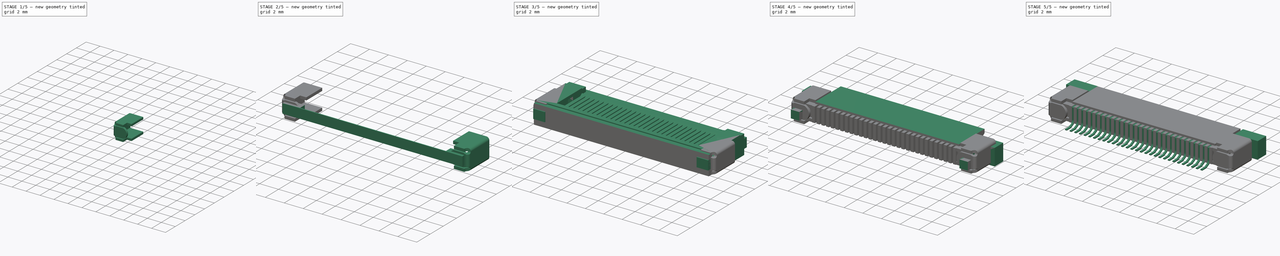
[diagram: build sequence overview — one tinted view per stage of 5, left to right]
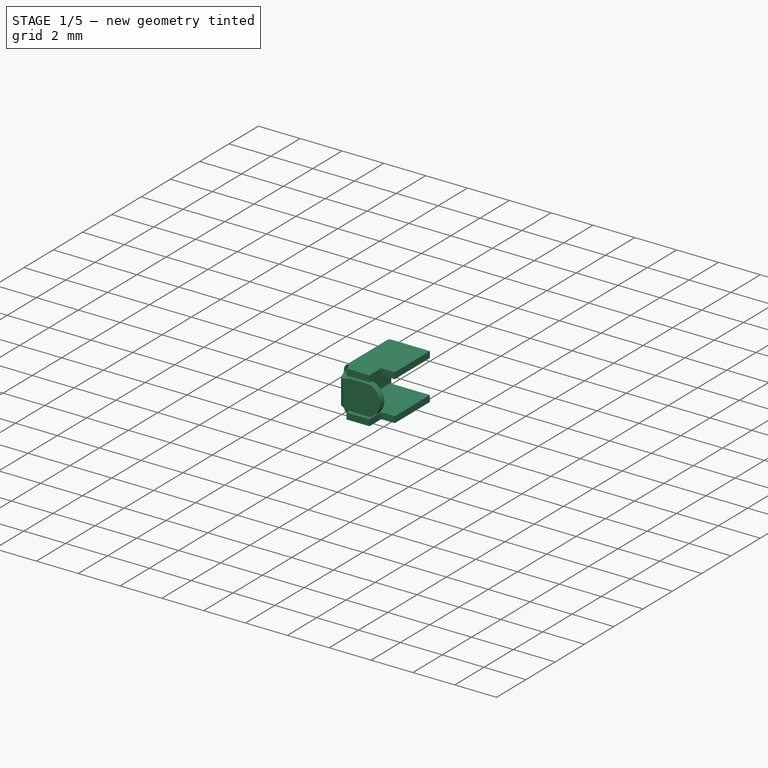
[diagram: stage 1 of 5 — iso view after this stage's code; geometry added in this stage tinted green]
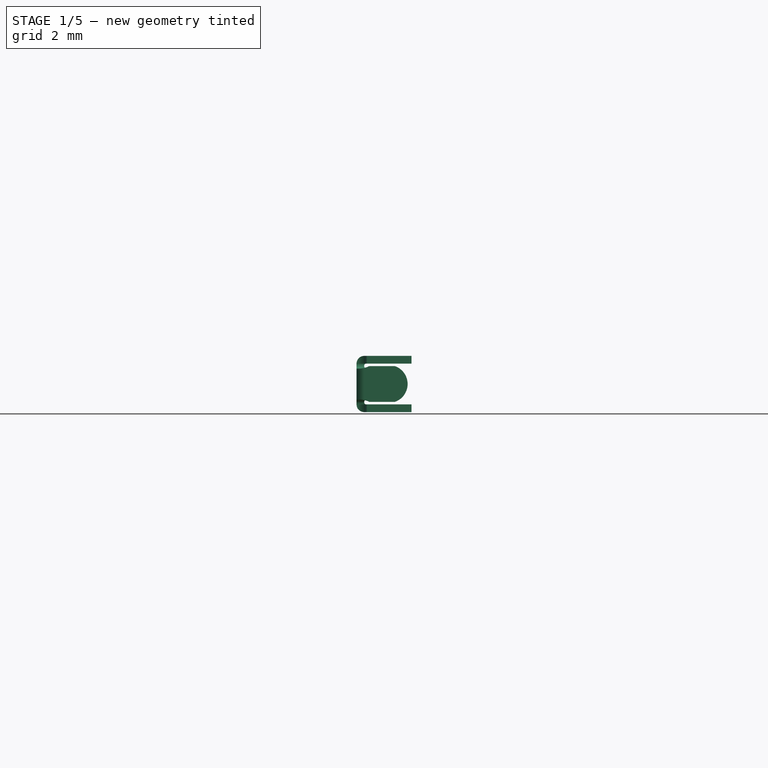
[diagram: stage 1 of 5 — front view after this stage's code; geometry added in this stage tinted green]
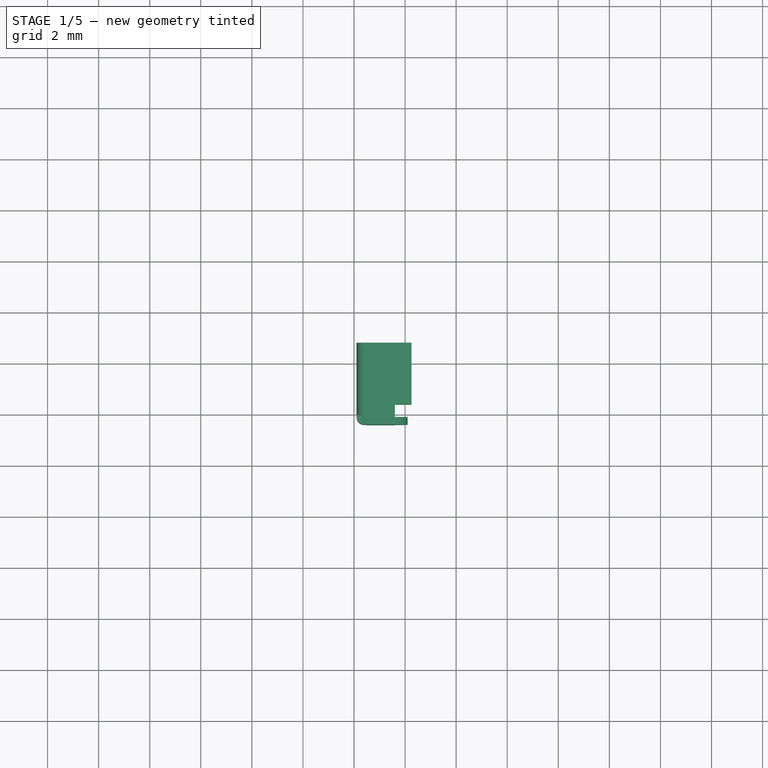
[diagram: stage 1 of 5 — top view after this stage's code; geometry added in this stage tinted green]
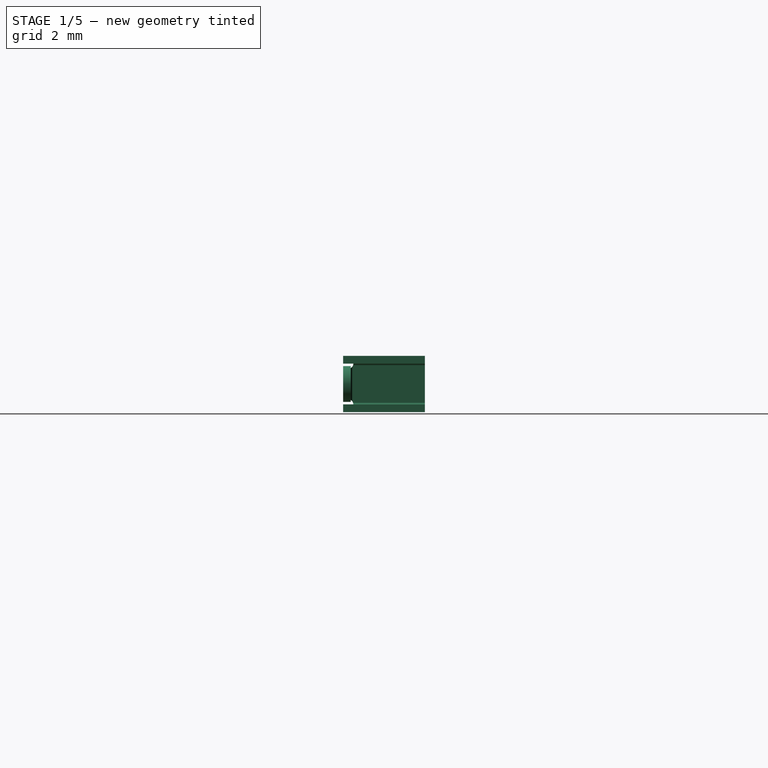
[diagram: stage 1 of 5 — right view after this stage's code; geometry added in this stage tinted green]
FCSTD DOCUMENT  (FreeCAD 0.17R13528 (Git))
Label: CONN_OLED_128x64
License: All rights reserved
LicenseURL: http://en.wikipedia.org/wiki/All_rights_reserved
objects: Sketcher::SketchObject×22, PartDesign::Pad×22, PartDesign::Body×22, Part::Fillet×6, Part::MultiFuse×4, Part::Cut×3, Part::Chamfer×2, Part::Feature×1
note: 104 computed .brp shape members not serialized (recipe doc carries the construction recipe); baked Part::Feature solids carry a one-line shape summary decoded from their .brp

FEATURE [Sketcher::SketchObject] Sketch018
  Placement = pos=(9.9,0,0) rot=(0.57735,0.57735,0.57735;2.0944rad)
  sketch-geometry (14):
    g0: LineSegment StartX=0.8 StartY=2.2 StartZ=0 EndX=0.8 EndY=0 EndZ=0
    g1: LineSegment StartX=0.8 StartY=0 StartZ=0 EndX=-2 EndY=0 EndZ=0
    g2: LineSegment StartX=-2 StartY=0 StartZ=0 EndX=-2 EndY=0.3 EndZ=0
    g3: LineSegment [constr] StartX=-2 StartY=0.3 StartZ=0 EndX=-2.2 EndY=0.3 EndZ=0
    g4: LineSegment [constr] StartX=-2.2 StartY=0.3 StartZ=0 EndX=-2.2 EndY=0.5 EndZ=0
    g5: LineSegment [constr] StartX=-2.2 StartY=1.7 StartZ=0 EndX=-2.2 EndY=1.9 EndZ=0
    g6: LineSegment [constr] StartX=-2.2 StartY=1.9 StartZ=0 EndX=-2 EndY=1.9 EndZ=0
    g7: LineSegment StartX=-2 StartY=1.9 StartZ=0 EndX=-2 EndY=2.2 EndZ=0
    g8: LineSegment StartX=-2 StartY=2.2 StartZ=0 EndX=0.8 EndY=2.2 EndZ=0
    g9: ArcOfCircle CenterX=-2.2 CenterY=1.9 CenterZ=0 NormalX=0 NormalY=0 NormalZ=1 AngleXU=0 Radius=0.2 StartAngle=4.71239 EndAngle=6.28319
    g10: ArcOfCircle CenterX=-2.2 CenterY=0.3 CenterZ=0 NormalX=0 NormalY=0 NormalZ=1 AngleXU=0 Radius=0.2 StartAngle=0 EndAngle=1.5708
    g11: LineSegment StartX=-2.2 StartY=1.7 StartZ=0 EndX=-2.4 EndY=1.7 EndZ=0
    g12: LineSegment StartX=-2.2 StartY=0.5 StartZ=0 EndX=-2.4 EndY=0.5 EndZ=0
    g13: LineSegment StartX=-2.4 StartY=1.7 StartZ=0 EndX=-2.4 EndY=0.5 EndZ=0
  constraints (40):
    c: Vertical(g0)
    c: Coincident(g0,g1)
    c: Horizontal(g1)
    c: Coincident(g1,g2)
    c: Vertical(g2)
    c: Coincident(g2,g3)
    c: Coincident(g3,g4)
    c: Coincident(g5,g6)
    c: Coincident(g6,g7)
    c: Vertical(g7)
    c: Coincident(g7,g8)
    c: Coincident(g8,g0)
    c: Horizontal(g8)
    c: Coincident(g9,g5)
    c: Coincident(g9,g6)
    c: Coincident(g10,g3)
    c: Coincident(g10,g4)
    c: Coincident(g10,g2)
    c: Coincident(g11,g5)
    c: Horizontal(g11)
    c: Coincident(g12,g4)
    c: Horizontal(g12)
    c: Coincident(g13,g11)
    c: Coincident(g13,g12)
    c: Vertical(g13)
    c: Horizontal(g3)
    c: Horizontal(g6)
    c: Vertical(g4)
    c: Vertical(g5)
    c: Equal(g4,g5)
    c: Coincident(g5,g9)
    c: Equal(g2,g7)
    c: Equal(g8,g1)
    c: DistanceY(g0,g0) = 2.2
    c: PointOnObject(g0,g-1)
    c: DistanceX(g11,g0) = 3.2
    c: DistanceX(g1,g1) = 2.8
    c: DistanceY(g11,g7) = 0.5
    c: DistanceX(g0) = 0.8
    c: DistanceX(g6,g6) = 0.2
FEATURE [PartDesign::Pad] Pad018
  Length = 0.3
  Length2 = 100
  Placement = pos=(9.9,0,0) rot=(0.57735,0.57735,0.57735;2.0944rad)
  Profile = -> Sketch018
  Reversed = true
  Type = 0
FEATURE [PartDesign::Body] Body018
  Group = -> [Sketch018,Pad018]
  Origin = -> Origin019
  Tip = -> Pad018
FEATURE [Sketcher::SketchObject] Sketch019
  Placement = pos=(0,-2.4,0) rot=(1,0,0;1.5708rad)
  sketch-geometry (12):
    g0: LineSegment [constr] StartX=9.9 StartY=1.7 StartZ=0 EndX=9.4 EndY=1.8 EndZ=0
    g1: LineSegment StartX=9.4 StartY=1.8 StartZ=0 EndX=8.4 EndY=1.8 EndZ=0
    g2: LineSegment [constr] StartX=8.4 StartY=1.8 StartZ=0 EndX=8.4 EndY=0.4 EndZ=0
    g3: LineSegment StartX=8.4 StartY=0.4 StartZ=0 EndX=9.4 EndY=0.4 EndZ=0
    g4: LineSegment [constr] StartX=9.4 StartY=0.4 StartZ=0 EndX=9.9 EndY=0.5 EndZ=0
    g5: LineSegment StartX=9.9 StartY=0.5 StartZ=0 EndX=9.9 EndY=1.7 EndZ=0
    g6: ArcOfCircle CenterX=8.64 CenterY=1.1 CenterZ=0 NormalX=0 NormalY=0 NormalZ=1 AngleXU=0 Radius=0.74 StartAngle=1.90109 EndAngle=4.38209
    g7: LineSegment [constr] StartX=8.4 StartY=1.8 StartZ=0 EndX=7.9 EndY=1.1 EndZ=0
    g8: LineSegment [constr] StartX=7.9 StartY=1.1 StartZ=0 EndX=8.4 EndY=0.4 EndZ=0
    g9: ArcOfCircle CenterX=9.85985 CenterY=2.79927 CenterZ=0 NormalX=0 NormalY=0 NormalZ=1 AngleXU=0 Radius=1.1 StartAngle=4.28109 EndAngle=4.74889
    g10: ArcOfCircle CenterX=9.85985 CenterY=-0.599267 CenterZ=0 NormalX=0 NormalY=0 NormalZ=1 AngleXU=0 Radius=1.1 StartAngle=1.53429 EndAngle=2.00209
    g11: LineSegment [constr] StartX=9.85985 StartY=2.79927 StartZ=0 EndX=9.85985 EndY=-0.599267 EndZ=0
  constraints (34):
    c: Coincident(g0,g1)
    c: Horizontal(g1)
    c: Coincident(g1,g2)
    c: Vertical(g2)
    c: Coincident(g2,g3)
    c: Horizontal(g3)
    c: Coincident(g3,g4)
    c: Coincident(g4,g5)
    c: Coincident(g5,g0)
    c: Vertical(g5)
    c: DistanceX(g4) = 9.9
    c: DistanceY(g5,g5) = 1.2
    c: Coincident(g6,g1)
    c: Coincident(g6,g2)
    c: Equal(g1,g3)
    c: Equal(g0,g4)
    c: Coincident(g7,g1)
    c: PointOnObject(g7,g6)
    c: Coincident(g8,g7)
    c: Coincident(g8,g2)
    c: Equal(g7,g8)
    c: DistanceX(g7,g4) = 2
    c: DistanceY(g0,g0) = 0.1
    c: DistanceY(g4) = 0.5
    c: DistanceX(g1,g1) = 1
    c: Coincident(g9,g0)
    c: Coincident(g9,g0)
    c: Coincident(g10,g4)
    c: Coincident(g10,g3)
    c: Coincident(g11,g9)
    c: Coincident(g11,g10)
    c: Vertical(g11)
    c: Radius(g9) = 1.1
    c: DistanceX(g0,g0) = 0.5
FEATURE [Sketcher::SketchObject] Sketch020
  Placement = pos=(0,0,1.9) rot=(0,0,1;0rad)
  sketch-geometry (8):
    g0: LineSegment [constr] StartX=9.9 StartY=-2 StartZ=0 EndX=9.5 EndY=-2.4 EndZ=0
    g1: LineSegment StartX=9.5 StartY=-2.4 StartZ=0 EndX=8.4 EndY=-2.4 EndZ=0
    g2: LineSegment StartX=8.4 StartY=-2.4 StartZ=0 EndX=8.4 EndY=-1.6 EndZ=0
    g3: LineSegment StartX=8.4 StartY=-1.6 StartZ=0 EndX=7.75 EndY=-1.6 EndZ=0
    g4: LineSegment StartX=7.75 StartY=-1.6 StartZ=0 EndX=7.75 EndY=0.8 EndZ=0
    g5: LineSegment StartX=7.75 StartY=0.8 StartZ=0 EndX=9.9 EndY=0.8 EndZ=0
    g6: LineSegment StartX=9.9 StartY=0.8 StartZ=0 EndX=9.9 EndY=-2 EndZ=0
    g7: ArcOfCircle CenterX=9.87944 CenterY=-2.37944 CenterZ=0 NormalX=0 NormalY=0 NormalZ=1 AngleXU=0 Radius=0.38 StartAngle=1.51667 EndAngle=3.19571
  constraints (24):
    c: Coincident(g0,g1)
    c: Horizontal(g1)
    c: Coincident(g1,g2)
    c: Vertical(g2)
    c: Coincident(g2,g3)
    c: Horizontal(g3)
    c: Coincident(g3,g4)
    c: Vertical(g4)
    c: Coincident(g4,g5)
    c: Horizontal(g5)
    c: Coincident(g5,g6)
    c: Coincident(g6,g0)
    c: Vertical(g6)
    c: DistanceX(g5) = 9.9
    c: DistanceY(g4) = 0.8
    c: DistanceX(g5,g5) = 2.15
    c: DistanceX(g1,g0) = 1.5
    c: DistanceY(g4,g4) = 2.4
    c: DistanceY(g2,g2) = 0.8
    c: DistanceY(g6,g6) = 2.8
    c: Coincident(g7,g0)
    c: Coincident(g7,g0)
    c: Radius(g7) = 0.38
    c: DistanceX(g0,g0) = 0.4
FEATURE [Sketcher::SketchObject] Sketch021
  sketch-geometry (8):
    g0: LineSegment [constr] StartX=9.9 StartY=-2 StartZ=0 EndX=9.5 EndY=-2.4 EndZ=0
    g1: LineSegment StartX=9.5 StartY=-2.4 StartZ=0 EndX=8.4 EndY=-2.4 EndZ=0
    g2: LineSegment StartX=8.4 StartY=-2.4 StartZ=0 EndX=8.4 EndY=-1.6 EndZ=0
    g3: LineSegment StartX=8.4 StartY=-1.6 StartZ=0 EndX=7.75 EndY=-1.6 EndZ=0
    g4: LineSegment StartX=7.75 StartY=-1.6 StartZ=0 EndX=7.75 EndY=0.8 EndZ=0
    g5: LineSegment StartX=7.75 StartY=0.8 StartZ=0 EndX=9.9 EndY=0.8 EndZ=0
    g6: LineSegment StartX=9.9 StartY=0.8 StartZ=0 EndX=9.9 EndY=-2 EndZ=0
    g7: ArcOfCircle CenterX=9.87944 CenterY=-2.37944 CenterZ=0 NormalX=0 NormalY=0 NormalZ=1 AngleXU=0 Radius=0.38 StartAngle=1.51667 EndAngle=3.19571
  constraints (24):
    c: Coincident(g0,g1)
    c: Horizontal(g1)
    c: Coincident(g1,g2)
    c: Vertical(g2)
    c: Coincident(g2,g3)
    c: Horizontal(g3)
    c: Coincident(g3,g4)
    c: Vertical(g4)
    c: Coincident(g4,g5)
    c: Horizontal(g5)
    c: Coincident(g5,g6)
    c: Coincident(g6,g0)
    c: Vertical(g6)
    c: DistanceX(g5) = 9.9
    c: DistanceY(g4) = 0.8
    c: DistanceX(g5,g5) = 2.15
    c: DistanceX(g1,g0) = 1.5
    c: DistanceY(g4,g4) = 2.4
    c: DistanceY(g2,g2) = 0.8
    c: DistanceY(g6,g6) = 2.8
    c: Coincident(g7,g0)
    c: Coincident(g7,g0)
    c: Radius(g7) = 0.38
    c: DistanceX(g0,g0) = 0.4
FEATURE [PartDesign::Pad] Pad019
  Length = 0.3
  Length2 = 100
  Profile = -> Sketch021
  Type = 0
FEATURE [PartDesign::Pad] Pad020
  Length = 0.3
  Length2 = 100
  Placement = pos=(0,-2.4,0) rot=(1,0,0;1.5708rad)
  Profile = -> Sketch019
  Reversed = true
  Type = 0
FEATURE [PartDesign::Body] Body020
  Group = -> [Sketch019,Pad020]
  Origin = -> Origin018
  Tip = -> Pad020
FEATURE [PartDesign::Body] Body021
  Group = -> [Sketch021,Pad019]
  Origin = -> Origin021
  Tip = -> Pad019
FEATURE [PartDesign::Pad] Pad021
  Length = 0.3
  Length2 = 100
  Placement = pos=(0,0,1.9) rot=(0,0,1;0rad)
  Profile = -> Sketch020
  Type = 0
FEATURE [PartDesign::Body] Body019
  Group = -> [Sketch020,Pad021]
  Origin = -> Origin020
  Tip = -> Pad021
FEATURE [Part::MultiFuse] Fusion003
  Refine = true
  Shapes = -> [Body018,Body020,Body021,Body019]
FEATURE [Part::Fillet] Fillet004
  Base = -> Fusion003
  Edges = 3 edges r=0.3: [Edge77,Edge78,Edge80]
FEATURE [Part::Fillet] Fillet005
  Base = -> Fillet004
  Edges = 3 edges r=0.08: [Edge22,Edge43,Edge45]
  Placement = pos=(0,0,2.2) rot=(0,1,0;3.14159rad)
FEATURE [Part::Feature] Shape  label="CONN_OLED_128x64"
  shape: bbox 20.65 x 5.65 x 2.2 mm, 1342 faces (baked)
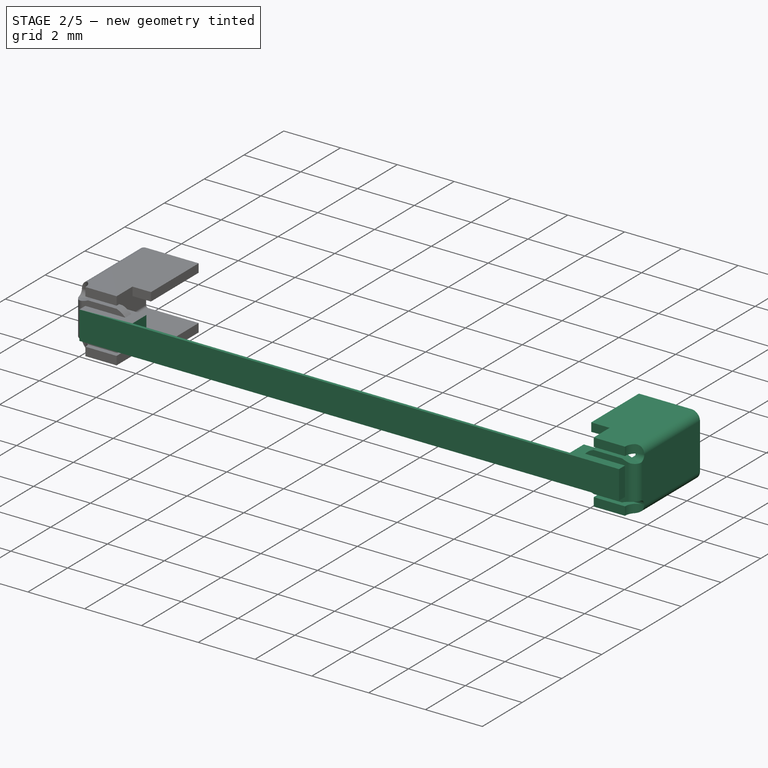
[diagram: stage 2 of 5 — iso view after this stage's code; geometry added in this stage tinted green]
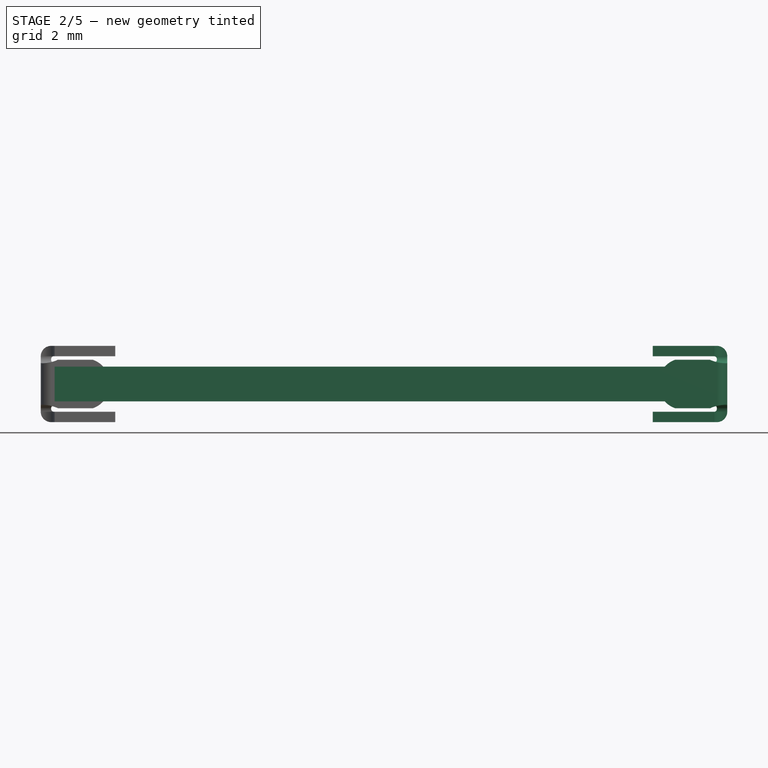
[diagram: stage 2 of 5 — front view after this stage's code; geometry added in this stage tinted green]
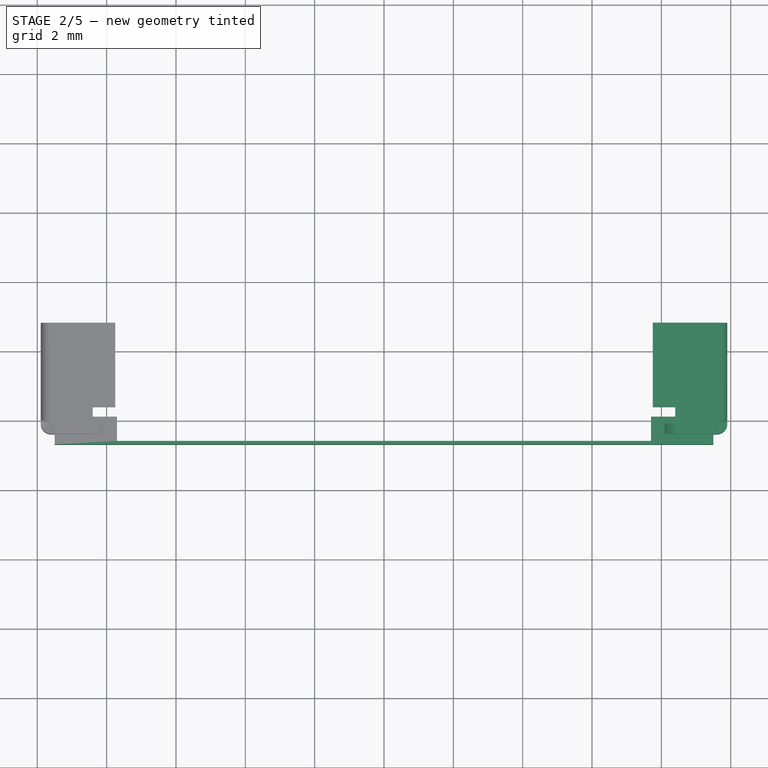
[diagram: stage 2 of 5 — top view after this stage's code; geometry added in this stage tinted green]
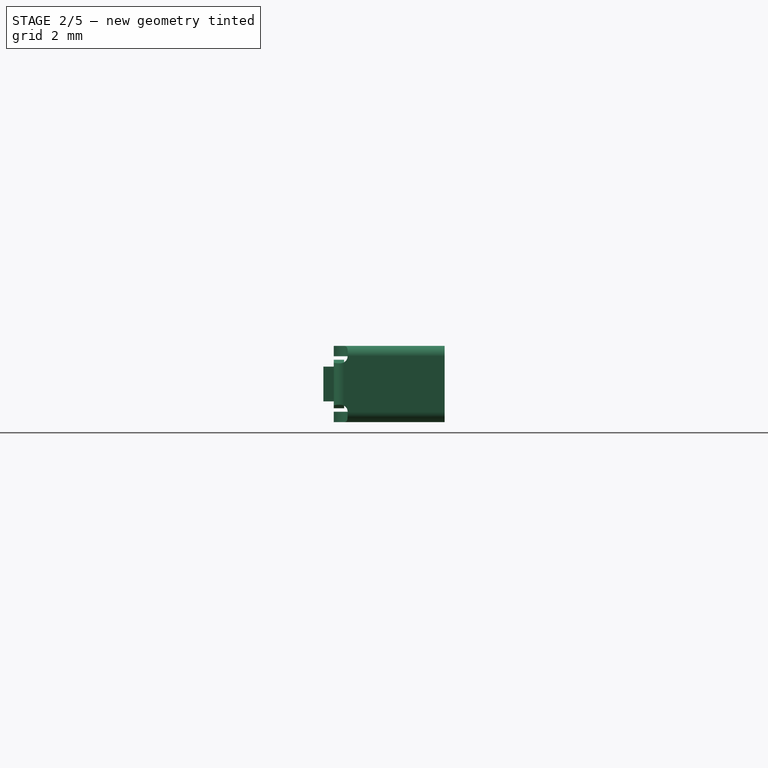
[diagram: stage 2 of 5 — right view after this stage's code; geometry added in this stage tinted green]
FEATURE [Sketcher::SketchObject] Sketch013
  Placement = pos=(9.9,0,0) rot=(0.57735,0.57735,0.57735;2.0944rad)
  sketch-geometry (14):
    g0: LineSegment StartX=0.8 StartY=2.2 StartZ=0 EndX=0.8 EndY=0 EndZ=0
    g1: LineSegment StartX=0.8 StartY=0 StartZ=0 EndX=-2 EndY=0 EndZ=0
    g2: LineSegment StartX=-2 StartY=0 StartZ=0 EndX=-2 EndY=0.3 EndZ=0
    g3: LineSegment [constr] StartX=-2 StartY=0.3 StartZ=0 EndX=-2.2 EndY=0.3 EndZ=0
    g4: LineSegment [constr] StartX=-2.2 StartY=0.3 StartZ=0 EndX=-2.2 EndY=0.5 EndZ=0
    g5: LineSegment [constr] StartX=-2.2 StartY=1.7 StartZ=0 EndX=-2.2 EndY=1.9 EndZ=0
    g6: LineSegment [constr] StartX=-2.2 StartY=1.9 StartZ=0 EndX=-2 EndY=1.9 EndZ=0
    g7: LineSegment StartX=-2 StartY=1.9 StartZ=0 EndX=-2 EndY=2.2 EndZ=0
    g8: LineSegment StartX=-2 StartY=2.2 StartZ=0 EndX=0.8 EndY=2.2 EndZ=0
    g9: ArcOfCircle CenterX=-2.2 CenterY=1.9 CenterZ=0 NormalX=0 NormalY=0 NormalZ=1 AngleXU=0 Radius=0.2 StartAngle=4.71239 EndAngle=6.28319
    g10: ArcOfCircle CenterX=-2.2 CenterY=0.3 CenterZ=0 NormalX=0 NormalY=0 NormalZ=1 AngleXU=0 Radius=0.2 StartAngle=0 EndAngle=1.5708
    g11: LineSegment StartX=-2.2 StartY=1.7 StartZ=0 EndX=-2.4 EndY=1.7 EndZ=0
    g12: LineSegment StartX=-2.2 StartY=0.5 StartZ=0 EndX=-2.4 EndY=0.5 EndZ=0
    g13: LineSegment StartX=-2.4 StartY=1.7 StartZ=0 EndX=-2.4 EndY=0.5 EndZ=0
  constraints (40):
    c: Vertical(g0)
    c: Coincident(g0,g1)
    c: Horizontal(g1)
    c: Coincident(g1,g2)
    c: Vertical(g2)
    c: Coincident(g2,g3)
    c: Coincident(g3,g4)
    c: Coincident(g5,g6)
    c: Coincident(g6,g7)
    c: Vertical(g7)
    c: Coincident(g7,g8)
    c: Coincident(g8,g0)
    c: Horizontal(g8)
    c: Coincident(g9,g5)
    c: Coincident(g9,g6)
    c: Coincident(g10,g3)
    c: Coincident(g10,g4)
    c: Coincident(g10,g2)
    c: Coincident(g11,g5)
    c: Horizontal(g11)
    c: Coincident(g12,g4)
    c: Horizontal(g12)
    c: Coincident(g13,g11)
    c: Coincident(g13,g12)
    c: Vertical(g13)
    c: Horizontal(g3)
    c: Horizontal(g6)
    c: Vertical(g4)
    c: Vertical(g5)
    c: Equal(g4,g5)
    c: Coincident(g5,g9)
    c: Equal(g2,g7)
    c: Equal(g8,g1)
    c: DistanceY(g0,g0) = 2.2
    c: PointOnObject(g0,g-1)
    c: DistanceX(g11,g0) = 3.2
    c: DistanceX(g1,g1) = 2.8
    c: DistanceY(g11,g7) = 0.5
    c: DistanceX(g0) = 0.8
    c: DistanceX(g6,g6) = 0.2
FEATURE [Sketcher::SketchObject] Sketch014
  Placement = pos=(0,0,0.6) rot=(0,0,1;0rad)
  sketch-geometry (8):
    g0: LineSegment StartX=-7.7 StartY=-1.9 StartZ=0 EndX=-9.5 EndY=-1.9 EndZ=0
    g1: LineSegment StartX=-9.5 StartY=-1.9 StartZ=0 EndX=-9.5 EndY=-2.7 EndZ=0
    g2: LineSegment StartX=-9.5 StartY=-2.7 StartZ=0 EndX=9.5 EndY=-2.7 EndZ=0
    g3: LineSegment StartX=9.5 StartY=-2.7 StartZ=0 EndX=9.5 EndY=-1.9 EndZ=0
    g4: LineSegment StartX=9.5 StartY=-1.9 StartZ=0 EndX=7.7 EndY=-1.9 EndZ=0
    g5: LineSegment StartX=7.7 StartY=-1.9 StartZ=0 EndX=7.7 EndY=-2.6 EndZ=0
    g6: LineSegment StartX=7.7 StartY=-2.6 StartZ=0 EndX=-7.7 EndY=-2.6 EndZ=0
    g7: LineSegment StartX=-7.7 StartY=-2.6 StartZ=0 EndX=-7.7 EndY=-1.9 EndZ=0
  constraints (24):
    c: Horizontal(g0)
    c: Coincident(g0,g1)
    c: Vertical(g1)
    c: Coincident(g1,g2)
    c: Horizontal(g2)
    c: Coincident(g2,g3)
    c: Vertical(g3)
    c: Coincident(g3,g4)
    c: Horizontal(g4)
    c: Coincident(g4,g5)
    c: Vertical(g5)
    c: Coincident(g5,g6)
    c: Horizontal(g6)
    c: Coincident(g6,g7)
    c: Coincident(g7,g0)
    c: Vertical(g7)
    c: DistanceX(g4) = 7.7
    c: DistanceX(g2,g2) = 19
    c: Equal(g4,g0)
    c: Symmetric(g1,g2,g-2)
    c: DistanceY(g0) = -1.9
    c: Equal(g7,g5)
    c: DistanceY(g1,g6) = 0.1
    c: DistanceY(g1,g1) = 0.8
FEATURE [PartDesign::Pad] Pad013
  Length = 0.3
  Length2 = 100
  Placement = pos=(9.9,0,0) rot=(0.57735,0.57735,0.57735;2.0944rad)
  Profile = -> Sketch013
  Reversed = true
  Type = 0
FEATURE [PartDesign::Body] Body013
  Group = -> [Sketch013,Pad013]
  Origin = -> Origin013
  Tip = -> Pad013
FEATURE [PartDesign::Pad] Pad014
  Length = 1
  Length2 = 100
  Placement = pos=(0,0,0.6) rot=(0,0,1;0rad)
  Profile = -> Sketch014
  Type = 0
FEATURE [Sketcher::SketchObject] Sketch015
  Placement = pos=(0,-2.4,0) rot=(1,0,0;1.5708rad)
  sketch-geometry (12):
    g0: LineSegment [constr] StartX=9.9 StartY=1.7 StartZ=0 EndX=9.4 EndY=1.8 EndZ=0
    g1: LineSegment StartX=9.4 StartY=1.8 StartZ=0 EndX=8.4 EndY=1.8 EndZ=0
    g2: LineSegment [constr] StartX=8.4 StartY=1.8 StartZ=0 EndX=8.4 EndY=0.4 EndZ=0
    g3: LineSegment StartX=8.4 StartY=0.4 StartZ=0 EndX=9.4 EndY=0.4 EndZ=0
    g4: LineSegment [constr] StartX=9.4 StartY=0.4 StartZ=0 EndX=9.9 EndY=0.5 EndZ=0
    g5: LineSegment StartX=9.9 StartY=0.5 StartZ=0 EndX=9.9 EndY=1.7 EndZ=0
    g6: ArcOfCircle CenterX=8.64 CenterY=1.1 CenterZ=0 NormalX=0 NormalY=0 NormalZ=1 AngleXU=0 Radius=0.74 StartAngle=1.90109 EndAngle=4.38209
    g7: LineSegment [constr] StartX=8.4 StartY=1.8 StartZ=0 EndX=7.9 EndY=1.1 EndZ=0
    g8: LineSegment [constr] StartX=7.9 StartY=1.1 StartZ=0 EndX=8.4 EndY=0.4 EndZ=0
    g9: ArcOfCircle CenterX=9.85985 CenterY=2.79927 CenterZ=0 NormalX=0 NormalY=0 NormalZ=1 AngleXU=0 Radius=1.1 StartAngle=4.28109 EndAngle=4.74889
    g10: ArcOfCircle CenterX=9.85985 CenterY=-0.599267 CenterZ=0 NormalX=0 NormalY=0 NormalZ=1 AngleXU=0 Radius=1.1 StartAngle=1.53429 EndAngle=2.00209
    g11: LineSegment [constr] StartX=9.85985 StartY=2.79927 StartZ=0 EndX=9.85985 EndY=-0.599267 EndZ=0
  constraints (34):
    c: Coincident(g0,g1)
    c: Horizontal(g1)
    c: Coincident(g1,g2)
    c: Vertical(g2)
    c: Coincident(g2,g3)
    c: Horizontal(g3)
    c: Coincident(g3,g4)
    c: Coincident(g4,g5)
    c: Coincident(g5,g0)
    c: Vertical(g5)
    c: DistanceX(g4) = 9.9
    c: DistanceY(g5,g5) = 1.2
    c: Coincident(g6,g1)
    c: Coincident(g6,g2)
    c: Equal(g1,g3)
    c: Equal(g0,g4)
    c: Coincident(g7,g1)
    c: PointOnObject(g7,g6)
    c: Coincident(g8,g7)
    c: Coincident(g8,g2)
    c: Equal(g7,g8)
    c: DistanceX(g7,g4) = 2
    c: DistanceY(g0,g0) = 0.1
    c: DistanceY(g4) = 0.5
    c: DistanceX(g1,g1) = 1
    c: Coincident(g9,g0)
    c: Coincident(g9,g0)
    c: Coincident(g10,g4)
    c: Coincident(g10,g3)
    c: Coincident(g11,g9)
    c: Coincident(g11,g10)
    c: Vertical(g11)
    c: Radius(g9) = 1.1
    c: DistanceX(g0,g0) = 0.5
FEATURE [Sketcher::SketchObject] Sketch016
  sketch-geometry (8):
    g0: LineSegment [constr] StartX=9.9 StartY=-2 StartZ=0 EndX=9.5 EndY=-2.4 EndZ=0
    g1: LineSegment StartX=9.5 StartY=-2.4 StartZ=0 EndX=8.4 EndY=-2.4 EndZ=0
    g2: LineSegment StartX=8.4 StartY=-2.4 StartZ=0 EndX=8.4 EndY=-1.6 EndZ=0
    g3: LineSegment StartX=8.4 StartY=-1.6 StartZ=0 EndX=7.75 EndY=-1.6 EndZ=0
    g4: LineSegment StartX=7.75 StartY=-1.6 StartZ=0 EndX=7.75 EndY=0.8 EndZ=0
    g5: LineSegment StartX=7.75 StartY=0.8 StartZ=0 EndX=9.9 EndY=0.8 EndZ=0
    g6: LineSegment StartX=9.9 StartY=0.8 StartZ=0 EndX=9.9 EndY=-2 EndZ=0
    g7: ArcOfCircle CenterX=9.87944 CenterY=-2.37944 CenterZ=0 NormalX=0 NormalY=0 NormalZ=1 AngleXU=0 Radius=0.38 StartAngle=1.51667 EndAngle=3.19571
  constraints (24):
    c: Coincident(g0,g1)
    c: Horizontal(g1)
    c: Coincident(g1,g2)
    c: Vertical(g2)
    c: Coincident(g2,g3)
    c: Horizontal(g3)
    c: Coincident(g3,g4)
    c: Vertical(g4)
    c: Coincident(g4,g5)
    c: Horizontal(g5)
    c: Coincident(g5,g6)
    c: Coincident(g6,g0)
    c: Vertical(g6)
    c: DistanceX(g5) = 9.9
    c: DistanceY(g4) = 0.8
    c: DistanceX(g5,g5) = 2.15
    c: DistanceX(g1,g0) = 1.5
    c: DistanceY(g4,g4) = 2.4
    c: DistanceY(g2,g2) = 0.8
    c: DistanceY(g6,g6) = 2.8
    c: Coincident(g7,g0)
    c: Coincident(g7,g0)
    c: Radius(g7) = 0.38
    c: DistanceX(g0,g0) = 0.4
FEATURE [PartDesign::Pad] Pad015
  Length = 0.3
  Length2 = 100
  Placement = pos=(0,-2.4,0) rot=(1,0,0;1.5708rad)
  Profile = -> Sketch015
  Reversed = true
  Type = 0
FEATURE [PartDesign::Body] Body015
  Group = -> [Sketch015,Pad015]
  Origin = -> Origin015
  Tip = -> Pad015
FEATURE [PartDesign::Pad] Pad016
  Length = 0.3
  Length2 = 100
  Profile = -> Sketch016
  Type = 0
FEATURE [PartDesign::Body] Body016
  Group = -> [Sketch016,Pad016]
  Origin = -> Origin016
  Tip = -> Pad016
FEATURE [Sketcher::SketchObject] Sketch017
  Placement = pos=(0,0,1.9) rot=(0,0,1;0rad)
  sketch-geometry (8):
    g0: LineSegment [constr] StartX=9.9 StartY=-2 StartZ=0 EndX=9.5 EndY=-2.4 EndZ=0
    g1: LineSegment StartX=9.5 StartY=-2.4 StartZ=0 EndX=8.4 EndY=-2.4 EndZ=0
    g2: LineSegment StartX=8.4 StartY=-2.4 StartZ=0 EndX=8.4 EndY=-1.6 EndZ=0
    g3: LineSegment StartX=8.4 StartY=-1.6 StartZ=0 EndX=7.75 EndY=-1.6 EndZ=0
    g4: LineSegment StartX=7.75 StartY=-1.6 StartZ=0 EndX=7.75 EndY=0.8 EndZ=0
    g5: LineSegment StartX=7.75 StartY=0.8 StartZ=0 EndX=9.9 EndY=0.8 EndZ=0
    g6: LineSegment StartX=9.9 StartY=0.8 StartZ=0 EndX=9.9 EndY=-2 EndZ=0
    g7: ArcOfCircle CenterX=9.87944 CenterY=-2.37944 CenterZ=0 NormalX=0 NormalY=0 NormalZ=1 AngleXU=0 Radius=0.38 StartAngle=1.51667 EndAngle=3.19571
  constraints (24):
    c: Coincident(g0,g1)
    c: Horizontal(g1)
    c: Coincident(g1,g2)
    c: Vertical(g2)
    c: Coincident(g2,g3)
    c: Horizontal(g3)
    c: Coincident(g3,g4)
    c: Vertical(g4)
    c: Coincident(g4,g5)
    c: Horizontal(g5)
    c: Coincident(g5,g6)
    c: Coincident(g6,g0)
    c: Vertical(g6)
    c: DistanceX(g5) = 9.9
    c: DistanceY(g4) = 0.8
    c: DistanceX(g5,g5) = 2.15
    c: DistanceX(g1,g0) = 1.5
    c: DistanceY(g4,g4) = 2.4
    c: DistanceY(g2,g2) = 0.8
    c: DistanceY(g6,g6) = 2.8
    c: Coincident(g7,g0)
    c: Coincident(g7,g0)
    c: Radius(g7) = 0.38
    c: DistanceX(g0,g0) = 0.4
FEATURE [PartDesign::Pad] Pad017
  Length = 0.3
  Length2 = 100
  Placement = pos=(0,0,1.9) rot=(0,0,1;0rad)
  Profile = -> Sketch017
  Type = 0
FEATURE [PartDesign::Body] Body017
  Group = -> [Sketch017,Pad017]
  Origin = -> Origin017
  Tip = -> Pad017
FEATURE [Part::MultiFuse] Fusion002
  Refine = true
  Shapes = -> [Body013,Body015,Body016,Body017]
FEATURE [Part::Fillet] Fillet002
  Base = -> Fusion002
  Edges = 3 edges r=0.3: [Edge77,Edge78,Edge80]
FEATURE [Part::Fillet] Fillet003
  Base = -> Fillet002
  Edges = 3 edges r=0.08: [Edge22,Edge43,Edge45]
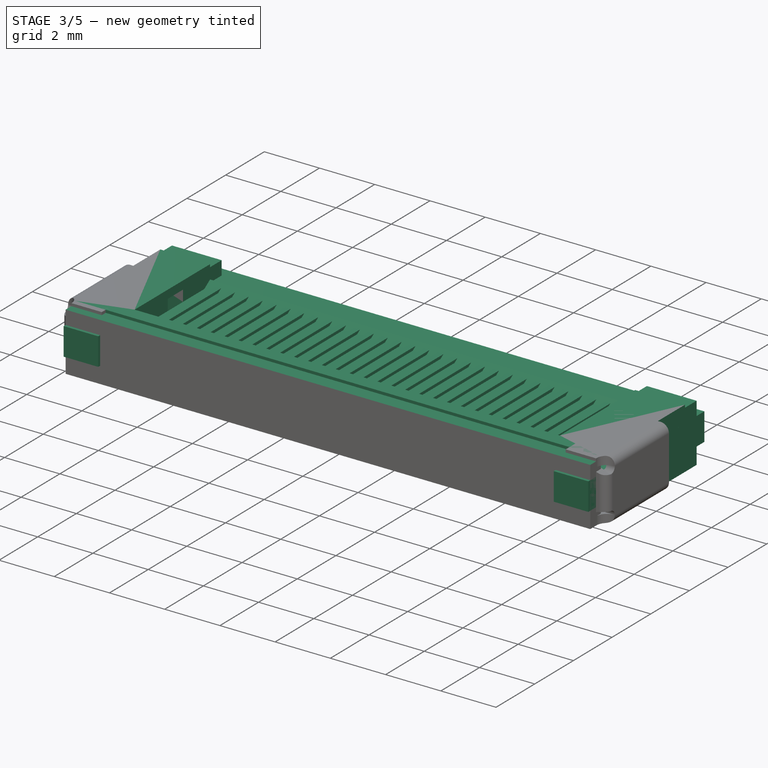
[diagram: stage 3 of 5 — iso view after this stage's code; geometry added in this stage tinted green]
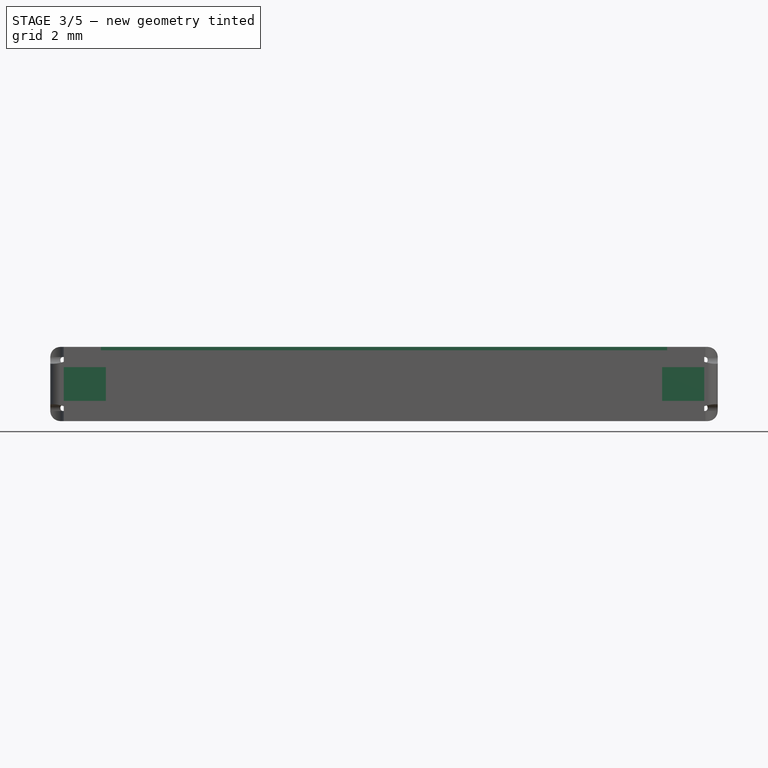
[diagram: stage 3 of 5 — front view after this stage's code; geometry added in this stage tinted green]
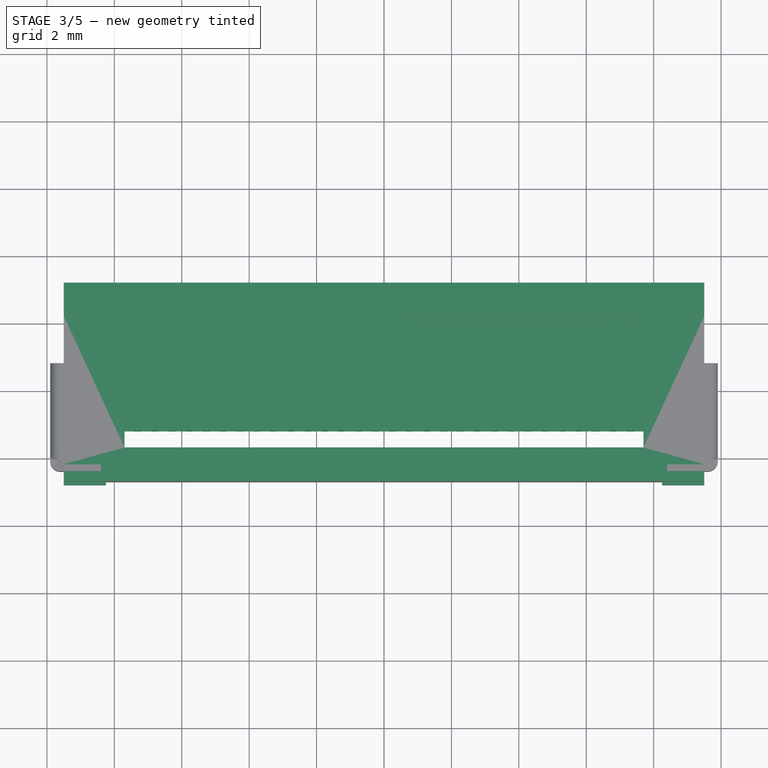
[diagram: stage 3 of 5 — top view after this stage's code; geometry added in this stage tinted green]
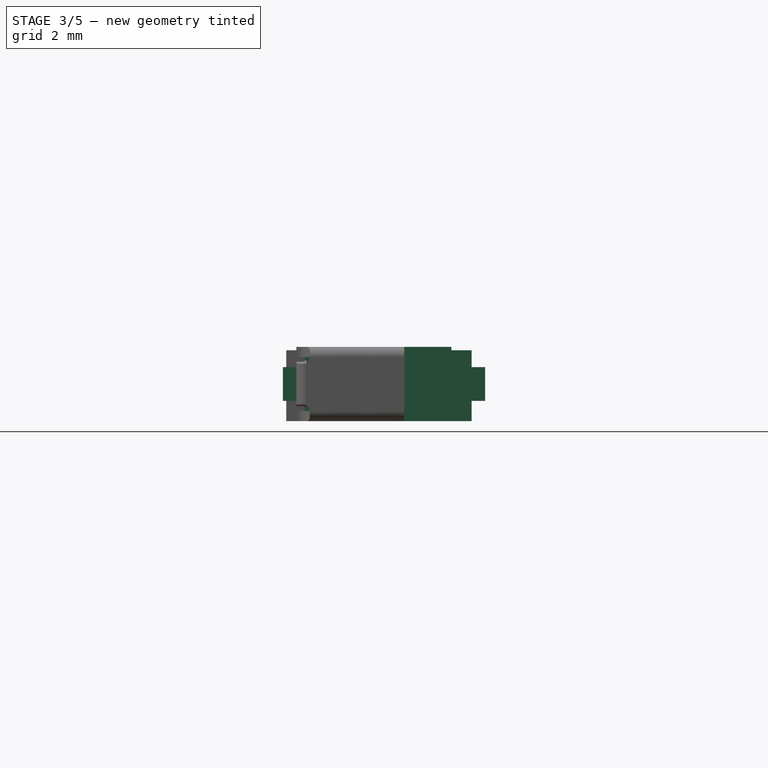
[diagram: stage 3 of 5 — right view after this stage's code; geometry added in this stage tinted green]
FEATURE [PartDesign::Body] Body
  Group = -> [Sketch,Pad]
  Origin = -> Origin
  Tip = -> Pad
FEATURE [PartDesign::Pad] Pad001
  Length = 0.3
  Length2 = 100
  Profile = -> Sketch001
  Type = 0
FEATURE [PartDesign::Body] Body001
  Group = -> [Sketch001,Pad001]
  Origin = -> Origin001
  Tip = -> Pad001
FEATURE [PartDesign::Pad] Pad002
  Length = 2.1
  Length2 = 100
  Profile = -> Sketch002
  Type = 0
FEATURE [PartDesign::Body] Body002
  Group = -> [Sketch002,Pad002]
  Origin = -> Origin002
  Tip = -> Pad002
FEATURE [Sketcher::SketchObject] Sketch003
  Placement = pos=(0,0,1.9) rot=(0,0,1;0rad)
  sketch-geometry (8):
    g0: LineSegment StartX=-7.7 StartY=2.2 StartZ=0 EndX=-7.7 EndY=-1.7 EndZ=0
    g1: LineSegment StartX=-7.7 StartY=-1.7 StartZ=0 EndX=7.7 EndY=-1.7 EndZ=0
    g2: LineSegment StartX=7.7 StartY=-1.7 StartZ=0 EndX=7.7 EndY=2.2 EndZ=0
    g3: LineSegment StartX=7.7 StartY=2.2 StartZ=0 EndX=9.5 EndY=2.2 EndZ=0
    g4: LineSegment StartX=9.5 StartY=2.2 StartZ=0 EndX=9.5 EndY=-2.2 EndZ=0
    g5: LineSegment StartX=9.5 StartY=-2.2 StartZ=0 EndX=-9.5 EndY=-2.2 EndZ=0
    g6: LineSegment StartX=-9.5 StartY=-2.2 StartZ=0 EndX=-9.5 EndY=2.2 EndZ=0
    g7: LineSegment StartX=-9.5 StartY=2.2 StartZ=0 EndX=-7.7 EndY=2.2 EndZ=0
  constraints (23):
    c: Vertical(g0)
    c: Coincident(g0,g1)
    c: Horizontal(g1)
    c: Coincident(g1,g2)
    c: Vertical(g2)
    c: Coincident(g2,g3)
    c: Horizontal(g3)
    c: Coincident(g3,g4)
    c: Vertical(g4)
    c: Coincident(g4,g5)
    c: Horizontal(g5)
    c: Coincident(g5,g6)
    c: Vertical(g6)
    c: Coincident(g6,g7)
    c: Coincident(g7,g0)
    c: Horizontal(g7)
    c: DistanceX(g1,g1) = 15.4
    c: DistanceX(g5,g5) = 19
    c: DistanceY(g6,g6) = 4.4
    c: Equal(g0,g2)
    c: Equal(g7,g3)
    c: Symmetric(g6,g4,g-1)
    c: DistanceY(g0,g0) = 3.9
FEATURE [PartDesign::Pad] Pad003
  Length = 0.3
  Length2 = 100
  Placement = pos=(0,0,1.9) rot=(0,0,1;0rad)
  Profile = -> Sketch003
  Type = 0
FEATURE [PartDesign::Body] Body003
  Group = -> [Sketch003,Pad003]
  Origin = -> Origin003
  Tip = -> Pad003
FEATURE [Sketcher::SketchObject] Sketch004
  Placement = pos=(0,0,0.6) rot=(0,0,1;0rad)
  sketch-geometry (158):
    g0: LineSegment StartX=-7.4 StartY=-1.2 StartZ=0 EndX=-7.19667 EndY=-1.2 EndZ=0
    g1: LineSegment StartX=-7.19667 StartY=-1.2 StartZ=0 EndX=-7.19667 EndY=2.2 EndZ=0
    g2: LineSegment [constr] StartX=-7.19667 StartY=2.2 StartZ=0 EndX=-7.4 EndY=2.2 EndZ=0
    g3: LineSegment StartX=-7.4 StartY=2.2 StartZ=0 EndX=-7.4 EndY=-1.2 EndZ=0
    g4: LineSegment StartX=-6.89667 StartY=-1.2 StartZ=0 EndX=-6.69333 EndY=-1.2 EndZ=0
    g5: LineSegment StartX=-6.69333 StartY=-1.2 StartZ=0 EndX=-6.69333 EndY=2.2 EndZ=0
    g6: LineSegment [constr] StartX=-6.69333 StartY=2.2 StartZ=0 EndX=-6.89667 EndY=2.2 EndZ=0
    g7: LineSegment StartX=-6.89667 StartY=2.2 StartZ=0 EndX=-6.89667 EndY=-1.2 EndZ=0
    g8: LineSegment StartX=-6.39333 StartY=-1.2 StartZ=0 EndX=-6.19 EndY=-1.2 EndZ=0
    g9: LineSegment StartX=-6.19 StartY=-1.2 StartZ=0 EndX=-6.19 EndY=2.2 EndZ=0
    g10: LineSegment [constr] StartX=-6.19 StartY=2.2 StartZ=0 EndX=-6.39333 EndY=2.2 EndZ=0
    g11: LineSegment StartX=-6.39333 StartY=2.2 StartZ=0 EndX=-6.39333 EndY=-1.2 EndZ=0
    g12: LineSegment StartX=-5.89 StartY=-1.2 StartZ=0 EndX=-5.68667 EndY=-1.2 EndZ=0
    g13: LineSegment StartX=-5.68667 StartY=-1.2 StartZ=0 EndX=-5.68667 EndY=2.2 EndZ=0
    g14: LineSegment [constr] StartX=-5.68667 StartY=2.2 StartZ=0 EndX=-5.89 EndY=2.2 EndZ=0
    g15: LineSegment StartX=-5.89 StartY=2.2 StartZ=0 EndX=-5.89 EndY=-1.2 EndZ=0
    g16: LineSegment StartX=-5.38667 StartY=-1.2 StartZ=0 EndX=-5.18333 EndY=-1.2 EndZ=0
    g17: LineSegment StartX=-5.18333 StartY=-1.2 StartZ=0 EndX=-5.18333 EndY=2.2 EndZ=0
    g18: LineSegment [constr] StartX=-5.18333 StartY=2.2 StartZ=0 EndX=-5.38667 EndY=2.2 EndZ=0
    g19: LineSegment StartX=-5.38667 StartY=2.2 StartZ=0 EndX=-5.38667 EndY=-1.2 EndZ=0
    g20: LineSegment StartX=-4.88333 StartY=-1.2 StartZ=0 EndX=-4.68 EndY=-1.2 EndZ=0
    g21: LineSegment StartX=-4.68 StartY=-1.2 StartZ=0 EndX=-4.68 EndY=2.2 EndZ=0
    g22: LineSegment [constr] StartX=-4.68 StartY=2.2 StartZ=0 EndX=-4.88333 EndY=2.2 EndZ=0
    g23: LineSegment StartX=-4.88333 StartY=2.2 StartZ=0 EndX=-4.88333 EndY=-1.2 EndZ=0
    g24: LineSegment StartX=-4.38 StartY=-1.2 StartZ=0 EndX=-4.17667 EndY=-1.2 EndZ=0
    g25: LineSegment StartX=-4.17667 StartY=-1.2 StartZ=0 EndX=-4.17667 EndY=2.2 EndZ=0
    g26: LineSegment [constr] StartX=-4.17667 StartY=2.2 StartZ=0 EndX=-4.38 EndY=2.2 EndZ=0
    g27: LineSegment StartX=-4.38 StartY=2.2 StartZ=0 EndX=-4.38 EndY=-1.2 EndZ=0
    g28: LineSegment StartX=-3.87667 StartY=-1.2 StartZ=0 EndX=-3.67333 EndY=-1.2 EndZ=0
    g29: LineSegment StartX=-3.67333 StartY=-1.2 StartZ=0 EndX=-3.67333 EndY=2.2 EndZ=0
    g30: LineSegment [constr] StartX=-3.67333 StartY=2.2 StartZ=0 EndX=-3.87667 EndY=2.2 EndZ=0
    g31: LineSegment StartX=-3.87667 StartY=2.2 StartZ=0 EndX=-3.87667 EndY=-1.2 EndZ=0
    g32: LineSegment StartX=-3.37333 StartY=-1.2 StartZ=0 EndX=-3.17 EndY=-1.2 EndZ=0
    g33: LineSegment StartX=-3.17 StartY=-1.2 StartZ=0 EndX=-3.17 EndY=2.2 EndZ=0
    g34: LineSegment [constr] StartX=-3.17 StartY=2.2 StartZ=0 EndX=-3.37333 EndY=2.2 EndZ=0
    g35: LineSegment StartX=-3.37333 StartY=2.2 StartZ=0 EndX=-3.37333 EndY=-1.2 EndZ=0
    g36: LineSegment StartX=-2.87 StartY=-1.2 StartZ=0 EndX=-2.66667 EndY=-1.2 EndZ=0
    g37: LineSegment StartX=-2.66667 StartY=-1.2 StartZ=0 EndX=-2.66667 EndY=2.2 EndZ=0
    g38: LineSegment [constr] StartX=-2.66667 StartY=2.2 StartZ=0 EndX=-2.87 EndY=2.2 EndZ=0
    g39: LineSegment StartX=-2.87 StartY=2.2 StartZ=0 EndX=-2.87 EndY=-1.2 EndZ=0
    g40: LineSegment StartX=-2.36667 StartY=-1.2 StartZ=0 EndX=-2.16333 EndY=-1.2 EndZ=0
    g41: LineSegment StartX=-2.16333 StartY=-1.2 StartZ=0 EndX=-2.16333 EndY=2.2 EndZ=0
    g42: LineSegment [constr] StartX=-2.16333 StartY=2.2 StartZ=0 EndX=-2.36667 EndY=2.2 EndZ=0
    g43: LineSegment StartX=-2.36667 StartY=2.2 StartZ=0 EndX=-2.36667 EndY=-1.2 EndZ=0
    g44: LineSegment StartX=-1.86333 StartY=-1.2 StartZ=0 EndX=-1.66 EndY=-1.2 EndZ=0
    g45: LineSegment StartX=-1.66 StartY=-1.2 StartZ=0 EndX=-1.66 EndY=2.2 EndZ=0
    g46: LineSegment [constr] StartX=-1.66 StartY=2.2 StartZ=0 EndX=-1.86333 EndY=2.2 EndZ=0
    g47: LineSegment StartX=-1.86333 StartY=2.2 StartZ=0 EndX=-1.86333 EndY=-1.2 EndZ=0
    g48: LineSegment StartX=-1.36 StartY=-1.2 StartZ=0 EndX=-1.15667 EndY=-1.2 EndZ=0
    g49: LineSegment StartX=-1.15667 StartY=-1.2 StartZ=0 EndX=-1.15667 EndY=2.2 EndZ=0
    g50: LineSegment [constr] StartX=-1.15667 StartY=2.2 StartZ=0 EndX=-1.36 EndY=2.2 EndZ=0
    g51: LineSegment StartX=-1.36 StartY=2.2 StartZ=0 EndX=-1.36 EndY=-1.2 EndZ=0
    g52: LineSegment StartX=-0.856667 StartY=-1.2 StartZ=0 EndX=-0.653333 EndY=-1.2 EndZ=0
    g53: LineSegment StartX=-0.653333 StartY=-1.2 StartZ=0 EndX=-0.653333 EndY=2.2 EndZ=0
    g54: LineSegment [constr] StartX=-0.653333 StartY=2.2 StartZ=0 EndX=-0.856667 EndY=2.2 EndZ=0
    g55: LineSegment StartX=-0.856667 StartY=2.2 StartZ=0 EndX=-0.856667 EndY=-1.2 EndZ=0
    g56: LineSegment StartX=-0.353333 StartY=-1.2 StartZ=0 EndX=-0.15 EndY=-1.2 EndZ=0
    g57: LineSegment StartX=-0.15 StartY=-1.2 StartZ=0 EndX=-0.15 EndY=2.2 EndZ=0
    g58: LineSegment [constr] StartX=-0.15 StartY=2.2 StartZ=0 EndX=-0.353333 EndY=2.2 EndZ=0
    g59: LineSegment StartX=-0.353333 StartY=2.2 StartZ=0 EndX=-0.353333 EndY=-1.2 EndZ=0
    g60: LineSegment StartX=0.15 StartY=-1.2 StartZ=0 EndX=0.353333 EndY=-1.2 EndZ=0
    g61: LineSegment StartX=0.353333 StartY=-1.2 StartZ=0 EndX=0.353333 EndY=2.2 EndZ=0
    g62: LineSegment [constr] StartX=0.353333 StartY=2.2 StartZ=0 EndX=0.15 EndY=2.2 EndZ=0
    g63: LineSegment StartX=0.15 StartY=2.2 StartZ=0 EndX=0.15 EndY=-1.2 EndZ=0
    g64: LineSegment StartX=0.653333 StartY=-1.2 StartZ=0 EndX=0.856667 EndY=-1.2 EndZ=0
    g65: LineSegment StartX=0.856667 StartY=-1.2 StartZ=0 EndX=0.856667 EndY=2.2 EndZ=0
    g66: LineSegment [constr] StartX=0.856667 StartY=2.2 StartZ=0 EndX=0.653333 EndY=2.2 EndZ=0
    g67: LineSegment StartX=0.653333 StartY=2.2 StartZ=0 EndX=0.653333 EndY=-1.2 EndZ=0
    g68: LineSegment StartX=1.15667 StartY=-1.2 StartZ=0 EndX=1.36 EndY=-1.2 EndZ=0
    g69: LineSegment StartX=1.36 StartY=-1.2 StartZ=0 EndX=1.36 EndY=2.2 EndZ=0
    g70: LineSegment [constr] StartX=1.36 StartY=2.2 StartZ=0 EndX=1.15667 EndY=2.2 EndZ=0
    g71: LineSegment StartX=1.15667 StartY=2.2 StartZ=0 EndX=1.15667 EndY=-1.2 EndZ=0
    g72: LineSegment StartX=1.66 StartY=-1.2 StartZ=0 EndX=1.86333 EndY=-1.2 EndZ=0
    g73: LineSegment StartX=1.86333 StartY=-1.2 StartZ=0 EndX=1.86333 EndY=2.2 EndZ=0
    g74: LineSegment [constr] StartX=1.86333 StartY=2.2 StartZ=0 EndX=1.66 EndY=2.2 EndZ=0
    g75: LineSegment StartX=1.66 StartY=2.2 StartZ=0 EndX=1.66 EndY=-1.2 EndZ=0
    g76: LineSegment StartX=2.16333 StartY=-1.2 StartZ=0 EndX=2.36667 EndY=-1.2 EndZ=0
    g77: LineSegment StartX=2.36667 StartY=-1.2 StartZ=0 EndX=2.36667 EndY=2.2 EndZ=0
    g78: LineSegment [constr] StartX=2.36667 StartY=2.2 StartZ=0 EndX=2.16333 EndY=2.2 EndZ=0
    g79: LineSegment StartX=2.16333 StartY=2.2 StartZ=0 EndX=2.16333 EndY=-1.2 EndZ=0
    g80: LineSegment StartX=2.66667 StartY=-1.2 StartZ=0 EndX=2.87 EndY=-1.2 EndZ=0
    g81: LineSegment StartX=2.87 StartY=-1.2 StartZ=0 EndX=2.87 EndY=2.2 EndZ=0
    g82: LineSegment [constr] StartX=2.87 StartY=2.2 StartZ=0 EndX=2.66667 EndY=2.2 EndZ=0
    g83: LineSegment StartX=2.66667 StartY=2.2 StartZ=0 EndX=2.66667 EndY=-1.2 EndZ=0
    g84: LineSegment StartX=3.17 StartY=-1.2 StartZ=0 EndX=3.37333 EndY=-1.2 EndZ=0
    g85: LineSegment StartX=3.37333 StartY=-1.2 StartZ=0 EndX=3.37333 EndY=2.2 EndZ=0
    g86: LineSegment [constr] StartX=3.37333 StartY=2.2 StartZ=0 EndX=3.17 EndY=2.2 EndZ=0
    g87: LineSegment StartX=3.17 StartY=2.2 StartZ=0 EndX=3.17 EndY=-1.2 EndZ=0
    g88: LineSegment StartX=3.67333 StartY=-1.2 StartZ=0 EndX=3.87667 EndY=-1.2 EndZ=0
    g89: LineSegment StartX=3.87667 StartY=-1.2 StartZ=0 EndX=3.87667 EndY=2.2 EndZ=0
    g90: LineSegment [constr] StartX=3.87667 StartY=2.2 StartZ=0 EndX=3.67333 EndY=2.2 EndZ=0
    g91: LineSegment StartX=3.67333 StartY=2.2 StartZ=0 EndX=3.67333 EndY=-1.2 EndZ=0
    g92: LineSegment StartX=4.17667 StartY=-1.2 StartZ=0 EndX=4.38 EndY=-1.2 EndZ=0
    g93: LineSegment StartX=4.38 StartY=-1.2 StartZ=0 EndX=4.38 EndY=2.2 EndZ=0
    g94: LineSegment [constr] StartX=4.38 StartY=2.2 StartZ=0 EndX=4.17667 EndY=2.2 EndZ=0
    g95: LineSegment StartX=4.17667 StartY=2.2 StartZ=0 EndX=4.17667 EndY=-1.2 EndZ=0
    g96: LineSegment StartX=4.68 StartY=-1.2 StartZ=0 EndX=4.88333 EndY=-1.2 EndZ=0
    g97: LineSegment StartX=4.88333 StartY=-1.2 StartZ=0 EndX=4.88333 EndY=2.2 EndZ=0
    g98: LineSegment [constr] StartX=4.88333 StartY=2.2 StartZ=0 EndX=4.68 EndY=2.2 EndZ=0
    g99: LineSegment StartX=4.68 StartY=2.2 StartZ=0 EndX=4.68 EndY=-1.2 EndZ=0
    g100: LineSegment StartX=5.18333 StartY=-1.2 StartZ=0 EndX=5.38667 EndY=-1.2 EndZ=0
    g101: LineSegment StartX=5.38667 StartY=-1.2 StartZ=0 EndX=5.38667 EndY=2.2 EndZ=0
    g102: LineSegment [constr] StartX=5.38667 StartY=2.2 StartZ=0 EndX=5.18333 EndY=2.2 EndZ=0
    g103: LineSegment StartX=5.18333 StartY=2.2 StartZ=0 EndX=5.18333 EndY=-1.2 EndZ=0
    g104: LineSegment StartX=5.68667 StartY=-1.2 StartZ=0 EndX=5.89 EndY=-1.2 EndZ=0
    g105: LineSegment StartX=5.89 StartY=-1.2 StartZ=0 EndX=5.89 EndY=2.2 EndZ=0
    g106: LineSegment [constr] StartX=5.89 StartY=2.2 StartZ=0 EndX=5.68667 EndY=2.2 EndZ=0
    g107: LineSegment StartX=5.68667 StartY=2.2 StartZ=0 EndX=5.68667 EndY=-1.2 EndZ=0
    g108: LineSegment StartX=6.19 StartY=-1.2 StartZ=0 EndX=6.39333 EndY=-1.2 EndZ=0
    g109: LineSegment StartX=6.39333 StartY=-1.2 StartZ=0 EndX=6.39333 EndY=2.2 EndZ=0
    g110: LineSegment [constr] StartX=6.39333 StartY=2.2 StartZ=0 EndX=6.19 EndY=2.2 EndZ=0
    g111: LineSegment StartX=6.19 StartY=2.2 StartZ=0 EndX=6.19 EndY=-1.2 EndZ=0
    g112: LineSegment StartX=6.69333 StartY=-1.2 StartZ=0 EndX=6.89667 EndY=-1.2 EndZ=0
    g113: LineSegment StartX=6.89667 StartY=-1.2 StartZ=0 EndX=6.89667 EndY=2.2 EndZ=0
    g114: LineSegment [constr] StartX=6.89667 StartY=2.2 StartZ=0 EndX=6.69333 EndY=2.2 EndZ=0
    g115: LineSegment StartX=6.69333 StartY=2.2 StartZ=0 EndX=6.69333 EndY=-1.2 EndZ=0
    g116: LineSegment StartX=7.19667 StartY=-1.2 StartZ=0 EndX=7.4 EndY=-1.2 EndZ=0
    g117: LineSegment StartX=7.4 StartY=-1.2 StartZ=0 EndX=7.4 EndY=2.2 EndZ=0
    g118: LineSegment [constr] StartX=7.4 StartY=2.2 StartZ=0 EndX=7.19667 EndY=2.2 EndZ=0
    g119: LineSegment StartX=7.19667 StartY=2.2 StartZ=0 EndX=7.19667 EndY=-1.2 EndZ=0
    g120: LineSegment StartX=7.19667 StartY=2.2 StartZ=0 EndX=6.89667 EndY=2.2 EndZ=0
    g121: LineSegment StartX=6.69333 StartY=2.2 StartZ=0 EndX=6.39333 EndY=2.2 EndZ=0
    g122: LineSegment StartX=6.19 StartY=2.2 StartZ=0 EndX=5.89 EndY=2.2 EndZ=0
    g123: LineSegment StartX=5.68667 StartY=2.2 StartZ=0 EndX=5.38667 EndY=2.2 EndZ=0
    g124: LineSegment StartX=5.18333 StartY=2.2 StartZ=0 EndX=4.88333 EndY=2.2 EndZ=0
    g125: LineSegment StartX=4.68 StartY=2.2 StartZ=0 EndX=4.38 EndY=2.2 EndZ=0
    g126: LineSegment StartX=4.17667 StartY=2.2 StartZ=0 EndX=3.87667 EndY=2.2 EndZ=0
    g127: LineSegment StartX=3.67333 StartY=2.2 StartZ=0 EndX=3.37333 EndY=2.2 EndZ=0
    g128: LineSegment StartX=3.17 StartY=2.2 StartZ=0 EndX=2.87 EndY=2.2 EndZ=0
    g129: LineSegment StartX=2.66667 StartY=2.2 StartZ=0 EndX=2.36667 EndY=2.2 EndZ=0
    g130: LineSegment StartX=2.16333 StartY=2.2 StartZ=0 EndX=1.86333 EndY=2.2 EndZ=0
    g131: LineSegment StartX=1.66 StartY=2.2 StartZ=0 EndX=1.36 EndY=2.2 EndZ=0
    g132: LineSegment StartX=1.15667 StartY=2.2 StartZ=0 EndX=0.856667 EndY=2.2 EndZ=0
    g133: LineSegment StartX=0.653333 StartY=2.2 StartZ=0 EndX=0.353333 EndY=2.2 EndZ=0
    g134: LineSegment StartX=0.15 StartY=2.2 StartZ=0 EndX=-0.15 EndY=2.2 EndZ=0
    g135: LineSegment StartX=-0.353333 StartY=2.2 StartZ=0 EndX=-0.653333 EndY=2.2 EndZ=0
    g136: LineSegment StartX=-0.856667 StartY=2.2 StartZ=0 EndX=-1.15667 EndY=2.2 EndZ=0
    g137: LineSegment StartX=-1.36 StartY=2.2 StartZ=0 EndX=-1.66 EndY=2.2 EndZ=0
    g138: LineSegment StartX=-1.86333 StartY=2.2 StartZ=0 EndX=-2.16333 EndY=2.2 EndZ=0
    g139: LineSegment StartX=-2.36667 StartY=2.2 StartZ=0 EndX=-2.66667 EndY=2.2 EndZ=0
    g140: LineSegment StartX=-2.87 StartY=2.2 StartZ=0 EndX=-3.17 EndY=2.2 EndZ=0
    g141: LineSegment StartX=-3.37333 StartY=2.2 StartZ=0 EndX=-3.67333 EndY=2.2 EndZ=0
    g142: LineSegment StartX=-3.87667 StartY=2.2 StartZ=0 EndX=-4.17667 EndY=2.2 EndZ=0
    g143: LineSegment StartX=-4.38 StartY=2.2 StartZ=0 EndX=-4.68 EndY=2.2 EndZ=0
    g144: LineSegment StartX=-4.88333 StartY=2.2 StartZ=0 EndX=-5.18333 EndY=2.2 EndZ=0
    g145: LineSegment StartX=-5.38667 StartY=2.2 StartZ=0 EndX=-5.68667 EndY=2.2 EndZ=0
    g146: LineSegment StartX=-5.89 StartY=2.2 StartZ=0 EndX=-6.19 EndY=2.2 EndZ=0
    g147: LineSegment StartX=-6.39333 StartY=2.2 StartZ=0 EndX=-6.69333 EndY=2.2 EndZ=0
    g148: LineSegment StartX=-6.89667 StartY=2.2 StartZ=0 EndX=-7.19667 EndY=2.2 EndZ=0
    g149: LineSegment StartX=-7.4 StartY=2.2 StartZ=0 EndX=-8.25 EndY=2.2 EndZ=0
    g150: LineSegment StartX=-9.5 StartY=3.2 StartZ=0 EndX=9.5 EndY=3.2 EndZ=0
    g151: LineSegment StartX=8.25 StartY=2.2 StartZ=0 EndX=7.4 EndY=2.2 EndZ=0
    g152: LineSegment StartX=-9.5 StartY=3.2 StartZ=0 EndX=-9.5 EndY=-2.8 EndZ=0
    g153: LineSegment StartX=-9.5 StartY=-2.8 StartZ=0 EndX=-8.25 EndY=-2.8 EndZ=0
    g154: LineSegment StartX=-8.25 StartY=-2.8 StartZ=0 EndX=-8.25 EndY=2.2 EndZ=0
    g155: LineSegment StartX=8.25 StartY=2.2 StartZ=0 EndX=8.25 EndY=-2.8 EndZ=0
    g156: LineSegment StartX=8.25 StartY=-2.8 StartZ=0 EndX=9.5 EndY=-2.8 EndZ=0
    g157: LineSegment StartX=9.5 StartY=-2.8 StartZ=0 EndX=9.5 EndY=3.2 EndZ=0
  constraints (444):
    c: Coincident(g0,g1)
    c: Coincident(g1,g2)
    c: Coincident(g2,g3)
    c: Coincident(g3,g0)
    c: Horizontal(g0)
    c: Horizontal(g2)
    c: Vertical(g1)
    c: Vertical(g3)
    c: Coincident(g4,g5)
    c: Coincident(g5,g6)
    c: Coincident(g6,g7)
    c: Coincident(g7,g4)
    c: Horizontal(g4)
    c: Horizontal(g6)
    c: Vertical(g5)
    c: Vertical(g7)
    c: Coincident(g8,g9)
    c: Coincident(g9,g10)
    c: Coincident(g10,g11)
    c: Coincident(g11,g8)
    c: Horizontal(g8)
    c: Horizontal(g10)
    c: Vertical(g9)
    c: Vertical(g11)
    c: Coincident(g12,g13)
    c: Coincident(g13,g14)
    c: Coincident(g14,g15)
    c: Coincident(g15,g12)
    c: Horizontal(g12)
    c: Horizontal(g14)
    c: Vertical(g13)
    c: Vertical(g15)
    c: Coincident(g16,g17)
    c: Coincident(g17,g18)
    c: Coincident(g18,g19)
    c: Coincident(g19,g16)
    c: Horizontal(g16)
    c: Horizontal(g18)
    c: Vertical(g17)
    c: Vertical(g19)
    c: Coincident(g20,g21)
    c: Coincident(g21,g22)
    c: Coincident(g22,g23)
    c: Coincident(g23,g20)
    c: Horizontal(g20)
    c: Horizontal(g22)
    c: Vertical(g21)
    c: Vertical(g23)
    c: Coincident(g24,g25)
    c: Coincident(g25,g26)
    c: Coincident(g26,g27)
    c: Coincident(g27,g24)
    c: Horizontal(g24)
    c: Horizontal(g26)
    c: Vertical(g25)
    c: Vertical(g27)
    c: Coincident(g28,g29)
    c: Coincident(g29,g30)
    c: Coincident(g30,g31)
    c: Coincident(g31,g28)
    c: Horizontal(g28)
    c: Horizontal(g30)
    c: Vertical(g29)
    c: Vertical(g31)
    c: Coincident(g32,g33)
    c: Coincident(g33,g34)
    c: Coincident(g34,g35)
    c: Coincident(g35,g32)
    c: Horizontal(g32)
    c: Horizontal(g34)
    c: Vertical(g33)
    c: Vertical(g35)
    c: Coincident(g36,g37)
    c: Coincident(g37,g38)
    c: Coincident(g38,g39)
    c: Coincident(g39,g36)
    c: Horizontal(g36)
    c: Horizontal(g38)
    c: Vertical(g37)
    c: Vertical(g39)
    c: Coincident(g40,g41)
    c: Coincident(g41,g42)
    c: Coincident(g42,g43)
    c: Coincident(g43,g40)
    c: Horizontal(g40)
    c: Horizontal(g42)
    c: Vertical(g41)
    c: Vertical(g43)
    c: Coincident(g44,g45)
    c: Coincident(g45,g46)
    c: Coincident(g46,g47)
    c: Coincident(g47,g44)
    c: Horizontal(g44)
    c: Horizontal(g46)
    c: Vertical(g45)
    c: Vertical(g47)
    c: Coincident(g48,g49)
    c: Coincident(g49,g50)
    c: Coincident(g50,g51)
    c: Coincident(g51,g48)
    c: Horizontal(g48)
    c: Horizontal(g50)
    c: Vertical(g49)
    c: Vertical(g51)
    c: Coincident(g52,g53)
    c: Coincident(g53,g54)
    c: Coincident(g54,g55)
    c: Coincident(g55,g52)
    c: Horizontal(g52)
    c: Horizontal(g54)
    c: Vertical(g53)
    c: Vertical(g55)
    c: Coincident(g56,g57)
    c: Coincident(g57,g58)
    c: Coincident(g58,g59)
    c: Coincident(g59,g56)
    c: Horizontal(g56)
    c: Horizontal(g58)
    c: Vertical(g57)
    c: Vertical(g59)
    c: Coincident(g60,g61)
    c: Coincident(g61,g62)
    c: Coincident(g62,g63)
    c: Coincident(g63,g60)
    c: Horizontal(g60)
    c: Horizontal(g62)
    c: Vertical(g61)
    c: Vertical(g63)
    c: Coincident(g64,g65)
    c: Coincident(g65,g66)
    c: Coincident(g66,g67)
    c: Coincident(g67,g64)
    c: Horizontal(g64)
    c: Horizontal(g66)
    c: Vertical(g65)
    c: Vertical(g67)
    c: Coincident(g68,g69)
    c: Coincident(g69,g70)
    c: Coincident(g70,g71)
    c: Coincident(g71,g68)
    c: Horizontal(g68)
    c: Horizontal(g70)
    c: Vertical(g69)
    c: Vertical(g71)
    c: Coincident(g72,g73)
    c: Coincident(g73,g74)
    c: Coincident(g74,g75)
    c: Coincident(g75,g72)
    c: Horizontal(g72)
    c: Horizontal(g74)
    c: Vertical(g73)
    c: Vertical(g75)
    c: Coincident(g76,g77)
    c: Coincident(g77,g78)
    c: Coincident(g78,g79)
    c: Coincident(g79,g76)
    c: Horizontal(g76)
    c: Horizontal(g78)
    c: Vertical(g77)
    c: Vertical(g79)
    c: Coincident(g80,g81)
    c: Coincident(g81,g82)
    c: Coincident(g82,g83)
    c: Coincident(g83,g80)
    c: Horizontal(g80)
    c: Horizontal(g82)
    c: Vertical(g81)
    c: Vertical(g83)
    c: Coincident(g84,g85)
    c: Coincident(g85,g86)
    c: Coincident(g86,g87)
    c: Coincident(g87,g84)
    c: Horizontal(g84)
    c: Horizontal(g86)
    c: Vertical(g85)
    c: Vertical(g87)
    c: Coincident(g88,g89)
    c: Coincident(g89,g90)
    c: Coincident(g90,g91)
    c: Coincident(g91,g88)
    c: Horizontal(g88)
    c: Horizontal(g90)
    c: Vertical(g89)
    c: Vertical(g91)
    c: Coincident(g92,g93)
    c: Coincident(g93,g94)
    c: Coincident(g94,g95)
    c: Coincident(g95,g92)
    c: Horizontal(g92)
    c: Horizontal(g94)
    c: Vertical(g93)
    c: Vertical(g95)
    c: Coincident(g96,g97)
    c: Coincident(g97,g98)
    c: Coincident(g98,g99)
    c: Coincident(g99,g96)
    c: Horizontal(g96)
    c: Horizontal(g98)
    c: Vertical(g97)
    c: Vertical(g99)
    c: Coincident(g100,g101)
    c: Coincident(g101,g102)
    c: Coincident(g102,g103)
    c: Coincident(g103,g100)
    c: Horizontal(g100)
    c: Horizontal(g102)
    c: Vertical(g101)
    c: Vertical(g103)
    c: Coincident(g104,g105)
    c: Coincident(g105,g106)
    c: Coincident(g106,g107)
    c: Coincident(g107,g104)
    c: Horizontal(g104)
    c: Horizontal(g106)
    c: Vertical(g105)
    c: Vertical(g107)
    c: Coincident(g108,g109)
    c: Coincident(g109,g110)
    c: Coincident(g110,g111)
    c: Coincident(g111,g108)
    c: Horizontal(g108)
    c: Horizontal(g110)
    c: Vertical(g109)
    c: Vertical(g111)
    c: Coincident(g112,g113)
    c: Coincident(g113,g114)
    c: Coincident(g114,g115)
    c: Coincident(g115,g112)
    c: Horizontal(g112)
    c: Horizontal(g114)
    c: Vertical(g113)
    c: Vertical(g115)
    c: Coincident(g116,g117)
    c: Coincident(g117,g118)
    c: Coincident(g118,g119)
    c: Coincident(g119,g116)
    c: Horizontal(g116)
    c: Horizontal(g118)
    c: Vertical(g117)
    c: Vertical(g119)
    c: Equal(g0,g4)
    c: Equal(g4,g8)
    c: Equal(g8,g12)
    c: Equal(g12,g16)
    c: Equal(g16,g20)
    c: Equal(g20,g24)
    c: Equal(g24,g28)
    c: Equal(g28,g32)
    c: Equal(g32,g36)
    c: Equal(g36,g40)
    c: Equal(g40,g44)
    c: Equal(g44,g48)
    c: Equal(g48,g52)
    c: Equal(g52,g56)
    c: Equal(g56,g60)
    c: Equal(g60,g64)
    c: Equal(g64,g68)
    c: Equal(g68,g72)
    c: Equal(g72,g76)
    c: Equal(g76,g80)
    c: Equal(g80,g84)
    c: Equal(g84,g88)
    c: Equal(g88,g92)
    c: Equal(g92,g96)
    c: Equal(g96,g100)
    c: Equal(g100,g104)
    c: Equal(g104,g108)
    c: Equal(g108,g112)
    c: Equal(g112,g116)
    c: Coincident(g120,g118)
    c: Coincident(g120,g113)
    c: Horizontal(g120)
    c: Coincident(g121,g114)
    c: Coincident(g121,g109)
    c: Coincident(g122,g110)
    c: Coincident(g122,g105)
    c: Coincident(g123,g106)
    c: Coincident(g123,g101)
    c: Coincident(g124,g102)
    c: Coincident(g124,g97)
    c: Coincident(g125,g98)
    c: Coincident(g125,g93)
    c: Coincident(g126,g94)
    c: Coincident(g126,g89)
    c: Coincident(g127,g90)
    c: Coincident(g127,g85)
    c: Coincident(g128,g86)
    c: Coincident(g128,g81)
    c: Coincident(g129,g82)
    c: Coincident(g129,g77)
    c: Coincident(g130,g78)
    c: Coincident(g130,g73)
    c: Coincident(g131,g74)
    c: Coincident(g131,g69)
    c: Coincident(g132,g65)
    c: Coincident(g70,g132)
    c: Coincident(g133,g66)
    c: Coincident(g133,g61)
    c: Coincident(g134,g62)
    c: Coincident(g134,g57)
    c: Horizontal(g134)
    c: Coincident(g135,g58)
    c: Coincident(g135,g53)
    c: Horizontal(g135)
    c: Coincident(g136,g54)
    c: Coincident(g136,g49)
    c: Coincident(g137,g50)
    c: Coincident(g137,g45)
    c: Coincident(g138,g46)
    c: Coincident(g138,g41)
    c: Coincident(g139,g42)
    c: Coincident(g139,g37)
    c: Coincident(g140,g38)
    c: Coincident(g140,g33)
    c: Coincident(g141,g34)
    c: Coincident(g141,g29)
    c: Coincident(g142,g30)
    c: Coincident(g142,g25)
    c: Coincident(g143,g26)
    c: Coincident(g143,g21)
    c: Horizontal(g143)
    c: Coincident(g144,g22)
    c: Coincident(g144,g17)
    c: Coincident(g145,g18)
    c: Coincident(g145,g13)
    c: Horizontal(g145)
    c: Coincident(g146,g14)
    c: Coincident(g146,g9)
    c: Coincident(g147,g10)
    c: Coincident(g147,g5)
    c: Coincident(g148,g6)
    c: Coincident(g148,g1)
    c: Horizontal(g148)
    c: Horizontal(g147)
    c: Horizontal(g146)
    c: Horizontal(g144)
    c: Horizontal(g142)
    c: Horizontal(g141)
    c: Horizontal(g140)
    c: Horizontal(g139)
    c: Horizontal(g138)
    c: Horizontal(g137)
    c: Horizontal(g133)
    c: Horizontal(g132)
    c: Horizontal(g131)
    c: Horizontal(g130)
    c: Horizontal(g129)
    c: Horizontal(g128)
    c: Horizontal(g127)
    c: Horizontal(g126)
    c: Horizontal(g125)
    c: Horizontal(g124)
    c: Horizontal(g123)
    c: Horizontal(g122)
    c: Horizontal(g121)
    c: Equal(g120,g121)
    c: Equal(g121,g122)
    c: Equal(g122,g123)
    c: Equal(g123,g124)
    c: Equal(g124,g125)
    c: Equal(g125,g126)
    c: Equal(g126,g127)
    c: Horizontal(g136)
    c: Equal(g127,g128)
    c: Equal(g128,g129)
    c: Equal(g129,g130)
    c: Equal(g130,g131)
    c: Equal(g131,g132)
    c: Equal(g132,g133)
    c: Equal(g133,g134)
    c: Equal(g134,g135)
    c: Equal(g135,g136)
    c: Equal(g136,g137)
    c: Equal(g137,g138)
    c: Equal(g138,g139)
    c: Equal(g139,g140)
    c: Equal(g140,g141)
    c: Equal(g141,g142)
    c: Equal(g142,g143)
    c: Equal(g143,g144)
    c: Equal(g144,g145)
    c: Equal(g145,g146)
    c: Equal(g146,g147)
    c: Equal(g147,g148)
    c: Equal(g1,g7)
    c: Equal(g5,g11)
    c: Equal(g9,g15)
    c: Equal(g13,g19)
    c: Equal(g17,g23)
    c: Equal(g21,g27)
    c: Equal(g25,g31)
    c: Equal(g29,g35)
    c: Equal(g33,g39)
    c: Equal(g37,g43)
    c: Equal(g41,g47)
    c: Equal(g45,g51)
    c: Equal(g49,g55)
    c: Equal(g53,g59)
    c: Equal(g57,g63)
    c: Equal(g61,g67)
    c: Equal(g65,g71)
    c: Equal(g69,g75)
    c: Equal(g73,g79)
    c: Equal(g77,g83)
    c: Equal(g81,g87)
    c: Equal(g85,g91)
    c: Equal(g89,g95)
    c: Equal(g93,g99)
    c: Equal(g97,g103)
    c: Equal(g101,g107)
    c: Equal(g105,g111)
    c: Equal(g109,g115)
    c: Equal(g113,g119)
    c: DistanceY(g44) = -1.2
    c: DistanceY(g50) = 2.2
    c: DistanceX(g0,g116) = 14.8
    c: Symmetric(g62,g57,g-2)
    c: DistanceX(g120,g120) = 0.3
    c: Coincident(g2,g149)
    c: Horizontal(g149)
    c: Horizontal(g150)
    c: Coincident(g151,g117)
    c: Horizontal(g151)
    c: Equal(g151,g149)
    c: DistanceX(g150,g150) = 19
    c: DistanceY(g149,g150) = 1
    c: Coincident(g150,g152)
    c: Vertical(g152)
    c: Coincident(g152,g153)
    c: Horizontal(g153)
    c: Coincident(g153,g154)
    c: Coincident(g154,g149)
    c: Vertical(g154)
    c: Coincident(g151,g155)
    c: Vertical(g155)
    c: Coincident(g155,g156)
    c: Horizontal(g156)
    c: Coincident(g156,g157)
    c: Coincident(g157,g150)
    c: Vertical(g157)
    c: Equal(g153,g156)
    c: Equal(g154,g155)
    c: DistanceX(g153,g153) = 1.25
    c: DistanceY(g152,g152) = 6
FEATURE [PartDesign::Pad] Pad004
  Length = 1
  Length2 = 100
  Placement = pos=(0,0,0.6) rot=(0,0,1;0rad)
  Profile = -> Sketch004
  Type = 0
FEATURE [PartDesign::Body] Body004
  Group = -> [Sketch004,Pad004]
  Origin = -> Origin004
  Tip = -> Pad004
FEATURE [Sketcher::SketchObject] Sketch005
  Placement = pos=(0,0.8,0) rot=(1,0,0;1.5708rad)
  sketch-geometry (8):
    g0: LineSegment StartX=-9.5 StartY=0 StartZ=0 EndX=-9.5 EndY=2.1 EndZ=0
    g1: LineSegment StartX=-9.5 StartY=2.1 StartZ=0 EndX=-7.7 EndY=2.1 EndZ=0
    g2: LineSegment StartX=-7.7 StartY=2.1 StartZ=0 EndX=-7.7 EndY=1.5 EndZ=0
    g3: LineSegment StartX=-7.7 StartY=1.5 StartZ=0 EndX=7.7 EndY=1.5 EndZ=0
    g4: LineSegment StartX=7.7 StartY=1.5 StartZ=0 EndX=7.7 EndY=2.1 EndZ=0
    g5: LineSegment StartX=7.7 StartY=2.1 StartZ=0 EndX=9.5 EndY=2.1 EndZ=0
    g6: LineSegment StartX=9.5 StartY=2.1 StartZ=0 EndX=9.5 EndY=0 EndZ=0
    g7: LineSegment StartX=9.5 StartY=0 StartZ=0 EndX=-9.5 EndY=0 EndZ=0
  constraints (23):
    c: Vertical(g0)
    c: Coincident(g0,g1)
    c: Horizontal(g1)
    c: Coincident(g1,g2)
    c: Vertical(g2)
    c: Coincident(g2,g3)
    c: Horizontal(g3)
    c: Coincident(g3,g4)
    c: Vertical(g4)
    c: Coincident(g4,g5)
    c: Horizontal(g5)
    c: Coincident(g5,g6)
    c: Vertical(g6)
    c: Coincident(g6,g7)
    c: Coincident(g7,g0)
    c: Horizontal(g7)
    c: Symmetric(g0,g6,g-1)
    c: DistanceX(g7,g7) = 19
    c: DistanceX(g3,g3) = 15.4
    c: Equal(g5,g1)
    c: Equal(g0,g6)
    c: DistanceY(g0,g0) = 2.1
    c: DistanceY(g2) = 1.5
FEATURE [Sketcher::SketchObject] Sketch006
  Placement = pos=(0,-1.2,0) rot=(1,0,0;1.5708rad)
  sketch-geometry (4):
    g0: LineSegment StartX=-7.7 StartY=1.5 StartZ=0 EndX=7.7 EndY=1.5 EndZ=0
    g1: LineSegment StartX=7.7 StartY=1.5 StartZ=0 EndX=7.7 EndY=0.7 EndZ=0
    g2: LineSegment StartX=7.7 StartY=0.7 StartZ=0 EndX=-7.7 EndY=0.7 EndZ=0
    g3: LineSegment StartX=-7.7 StartY=0.7 StartZ=0 EndX=-7.7 EndY=1.5 EndZ=0
  constraints (12):
    c: Coincident(g0,g1)
    c: Coincident(g1,g2)
    c: Coincident(g2,g3)
    c: Coincident(g3,g0)
    c: Horizontal(g0)
    c: Horizontal(g2)
    c: Vertical(g1)
    c: Vertical(g3)
    c: DistanceY(g0) = 1.5
    c: DistanceX(g0,g0) = 15.4
    c: DistanceY(g1,g1) = 0.8
    c: Symmetric(g0,g0,g-2)
FEATURE [PartDesign::Pad] Pad005
  Length = 2
  Length2 = 100
  Placement = pos=(0,0.8,0) rot=(1,0,0;1.5708rad)
  Profile = -> Sketch005
  Reversed = true
  Type = 0
FEATURE [PartDesign::Body] Body005
  Group = -> [Sketch005,Pad005]
  Origin = -> Origin005
  Tip = -> Pad005
FEATURE [PartDesign::Pad] Pad006
  Length = 3
  Length2 = 100
  Placement = pos=(0,-1.2,0) rot=(1,0,0;1.5708rad)
  Profile = -> Sketch006
  Reversed = true
  Type = 0
FEATURE [PartDesign::Body] Body006
  Group = -> [Sketch006,Pad006]
  Origin = -> Origin006
  Tip = -> Pad006
FEATURE [Sketcher::SketchObject] Sketch007
  Placement = pos=(8,0,0) rot=(0.57735,0.57735,0.57735;2.0944rad)
  sketch-geometry (3):
    g0: LineSegment StartX=2.2 StartY=1.5 StartZ=0 EndX=2.2 EndY=1.7 EndZ=0
    g1: LineSegment StartX=2.2 StartY=1.7 StartZ=0 EndX=1.9 EndY=1.5 EndZ=0
    g2: LineSegment StartX=1.9 StartY=1.5 StartZ=0 EndX=2.2 EndY=1.5 EndZ=0
  constraints (9):
    c: Vertical(g0)
    c: Coincident(g0,g1)
    c: Coincident(g1,g2)
    c: Coincident(g2,g0)
    c: Horizontal(g2)
    c: DistanceY(g0) = 1.5
    c: DistanceY(g0,g0) = 0.2
    c: DistanceX(g2,g2) = 0.3
    c: DistanceX(g0) = 2.2
FEATURE [PartDesign::Pad] Pad007
  Length = 16
  Length2 = 100
  Placement = pos=(8,0,0) rot=(0.57735,0.57735,0.57735;2.0944rad)
  Profile = -> Sketch007
  Reversed = true
  Type = 0
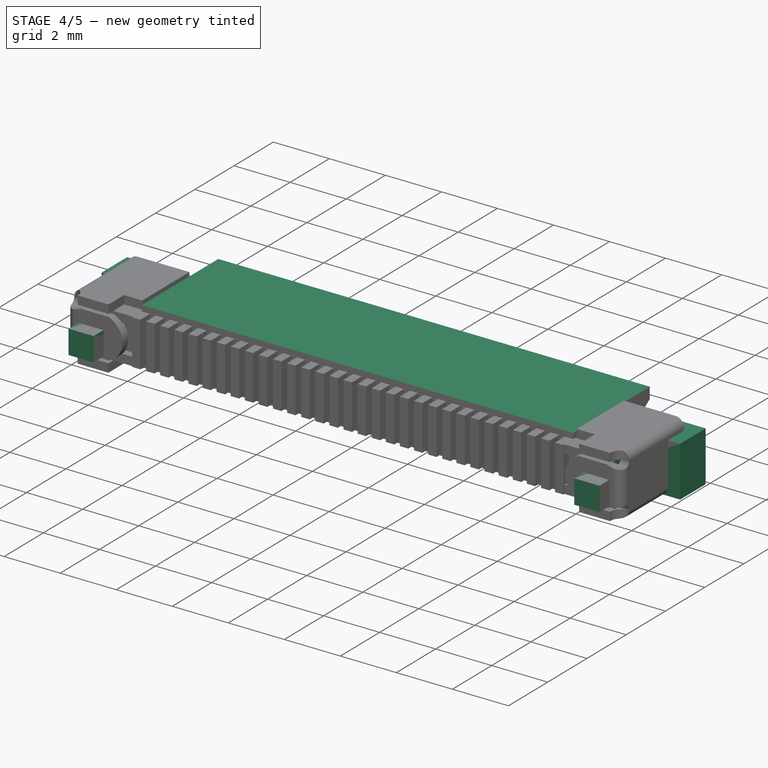
[diagram: stage 4 of 5 — iso view after this stage's code; geometry added in this stage tinted green]
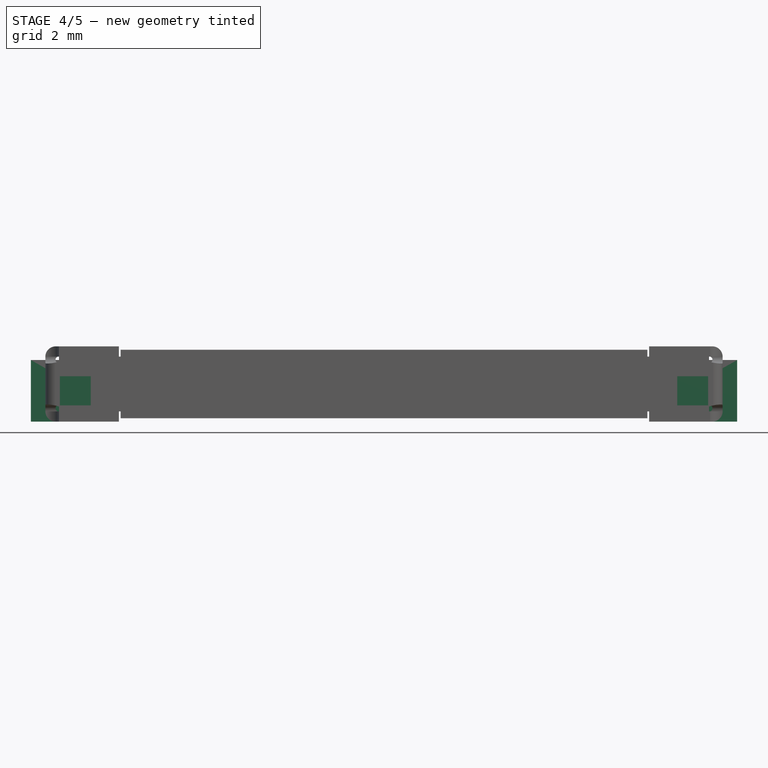
[diagram: stage 4 of 5 — front view after this stage's code; geometry added in this stage tinted green]
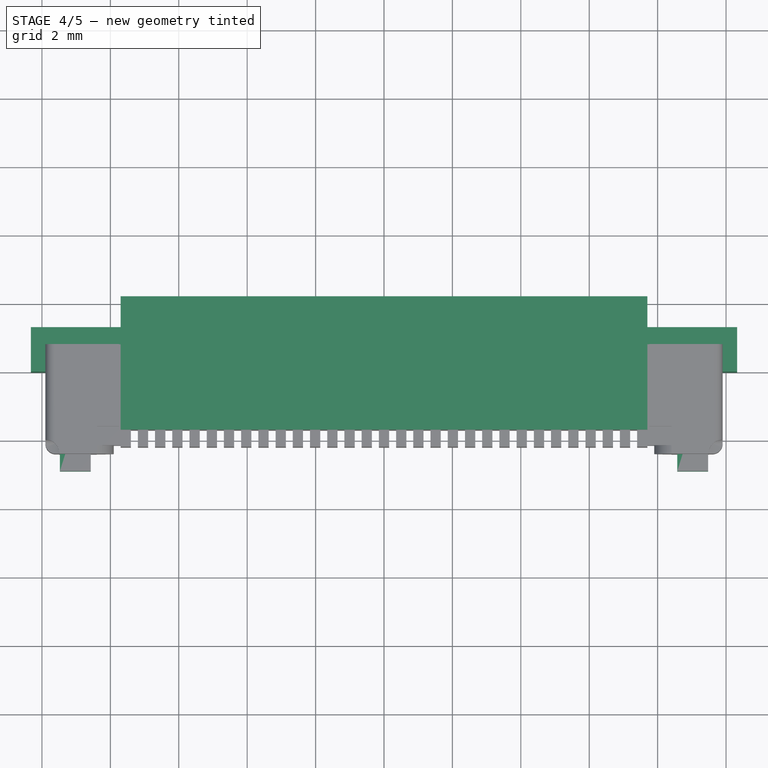
[diagram: stage 4 of 5 — top view after this stage's code; geometry added in this stage tinted green]
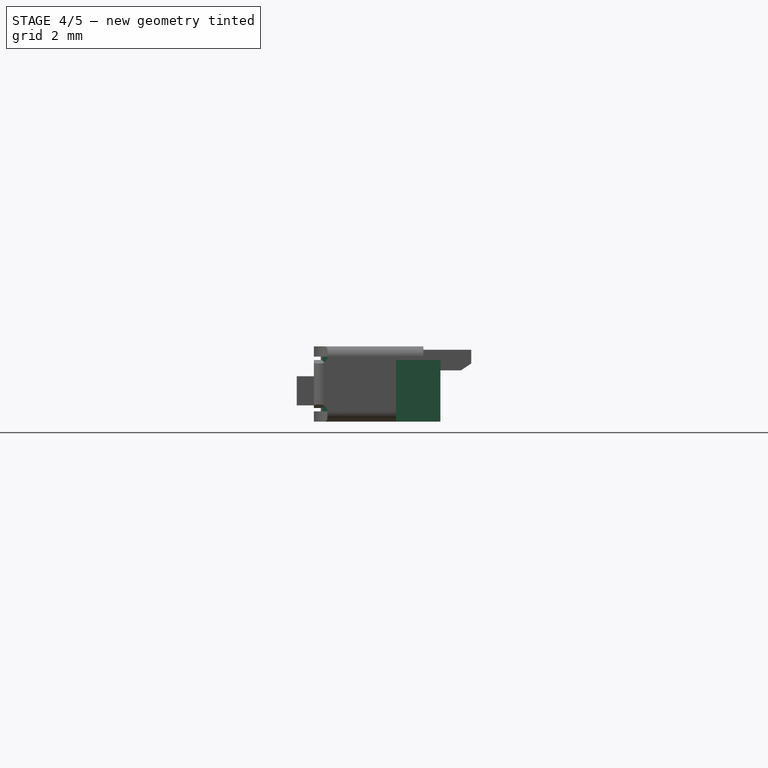
[diagram: stage 4 of 5 — right view after this stage's code; geometry added in this stage tinted green]
FEATURE [Sketcher::SketchObject] Sketch
  Placement = pos=(0,0,0.1) rot=(0,0,1;0rad)
  sketch-geometry (10):
    g0: LineSegment StartX=-7.7 StartY=2.2 StartZ=0 EndX=7.7 EndY=2.2 EndZ=0
    g1: LineSegment [constr] StartX=7.7 StartY=2.2 StartZ=0 EndX=7.7 EndY=-2.2 EndZ=0
    g2: LineSegment StartX=9.5 StartY=-2.2 StartZ=0 EndX=-9.5 EndY=-2.2 EndZ=0
    g3: LineSegment [constr] StartX=-7.7 StartY=-2.2 StartZ=0 EndX=-7.7 EndY=2.2 EndZ=0
    g4: LineSegment StartX=-9.5 StartY=-2.2 StartZ=0 EndX=-9.5 EndY=0.8 EndZ=0
    g5: LineSegment StartX=-9.5 StartY=0.8 StartZ=0 EndX=-7.7 EndY=0.8 EndZ=0
    g6: LineSegment StartX=-7.7 StartY=0.8 StartZ=0 EndX=-7.7 EndY=2.2 EndZ=0
    g7: LineSegment StartX=7.7 StartY=2.2 StartZ=0 EndX=7.7 EndY=0.8 EndZ=0
    g8: LineSegment StartX=7.7 StartY=0.8 StartZ=0 EndX=9.5 EndY=0.8 EndZ=0
    g9: LineSegment StartX=9.5 StartY=0.8 StartZ=0 EndX=9.5 EndY=-2.2 EndZ=0
  constraints (29):
    c: Coincident(g0,g1)
    c: Coincident(g3,g0)
    c: Horizontal(g0)
    c: Horizontal(g2)
    c: Vertical(g1)
    c: Vertical(g3)
    c: DistanceY(g3,g3) = 4.4
    c: Symmetric(g0,g1,g-1)
    c: DistanceX(g2,g2) = 19
    c: DistanceX(g0,g0) = 15.4
    c: PointOnObject(g1,g2)
    c: PointOnObject(g3,g2)
    c: Coincident(g2,g4)
    c: Vertical(g4)
    c: Coincident(g4,g5)
    c: Horizontal(g5)
    c: Coincident(g5,g6)
    c: Coincident(g6,g0)
    c: Coincident(g0,g7)
    c: Coincident(g7,g8)
    c: Horizontal(g8)
    c: Coincident(g8,g9)
    c: Coincident(g9,g2)
    c: Vertical(g9)
    c: Vertical(g7)
    c: Vertical(g6)
    c: Equal(g5,g8)
    c: DistanceY(g4,g4) = 3
    c: Equal(g4,g9)
FEATURE [Sketcher::SketchObject] Sketch001
  sketch-geometry (8):
    g0: LineSegment StartX=-7.7 StartY=2.2 StartZ=0 EndX=-7.7 EndY=-1.7 EndZ=0
    g1: LineSegment StartX=-7.7 StartY=-1.7 StartZ=0 EndX=7.7 EndY=-1.7 EndZ=0
    g2: LineSegment StartX=7.7 StartY=-1.7 StartZ=0 EndX=7.7 EndY=2.2 EndZ=0
    g3: LineSegment StartX=7.7 StartY=2.2 StartZ=0 EndX=9.5 EndY=2.2 EndZ=0
    g4: LineSegment StartX=9.5 StartY=2.2 StartZ=0 EndX=9.5 EndY=-2.2 EndZ=0
    g5: LineSegment StartX=9.5 StartY=-2.2 StartZ=0 EndX=-9.5 EndY=-2.2 EndZ=0
    g6: LineSegment StartX=-9.5 StartY=-2.2 StartZ=0 EndX=-9.5 EndY=2.2 EndZ=0
    g7: LineSegment StartX=-9.5 StartY=2.2 StartZ=0 EndX=-7.7 EndY=2.2 EndZ=0
  constraints (23):
    c: Vertical(g0)
    c: Coincident(g0,g1)
    c: Horizontal(g1)
    c: Coincident(g1,g2)
    c: Vertical(g2)
    c: Coincident(g2,g3)
    c: Horizontal(g3)
    c: Coincident(g3,g4)
    c: Vertical(g4)
    c: Coincident(g4,g5)
    c: Horizontal(g5)
    c: Coincident(g5,g6)
    c: Vertical(g6)
    c: Coincident(g6,g7)
    c: Coincident(g7,g0)
    c: Horizontal(g7)
    c: DistanceX(g1,g1) = 15.4
    c: DistanceX(g5,g5) = 19
    c: DistanceY(g6,g6) = 4.4
    c: Equal(g0,g2)
    c: Equal(g7,g3)
    c: Symmetric(g6,g4,g-1)
    c: DistanceY(g0,g0) = 3.9
FEATURE [Sketcher::SketchObject] Sketch002
  sketch-geometry (158):
    g0: LineSegment StartX=-7.4 StartY=-1.7 StartZ=0 EndX=-7.19667 EndY=-1.7 EndZ=0
    g1: LineSegment StartX=-7.19667 StartY=-1.7 StartZ=0 EndX=-7.19667 EndY=-2.2 EndZ=0
    g2: LineSegment [constr] StartX=-7.19667 StartY=-2.2 StartZ=0 EndX=-7.4 EndY=-2.2 EndZ=0
    g3: LineSegment StartX=-7.4 StartY=-2.2 StartZ=0 EndX=-7.4 EndY=-1.7 EndZ=0
    g4: LineSegment StartX=-6.89667 StartY=-1.7 StartZ=0 EndX=-6.69333 EndY=-1.7 EndZ=0
    g5: LineSegment StartX=-6.69333 StartY=-1.7 StartZ=0 EndX=-6.69333 EndY=-2.2 EndZ=0
    g6: LineSegment [constr] StartX=-6.69333 StartY=-2.2 StartZ=0 EndX=-6.89667 EndY=-2.2 EndZ=0
    g7: LineSegment StartX=-6.89667 StartY=-2.2 StartZ=0 EndX=-6.89667 EndY=-1.7 EndZ=0
    g8: LineSegment StartX=-6.39333 StartY=-1.7 StartZ=0 EndX=-6.19 EndY=-1.7 EndZ=0
    g9: LineSegment StartX=-6.19 StartY=-1.7 StartZ=0 EndX=-6.19 EndY=-2.2 EndZ=0
    g10: LineSegment [constr] StartX=-6.19 StartY=-2.2 StartZ=0 EndX=-6.39333 EndY=-2.2 EndZ=0
    g11: LineSegment StartX=-6.39333 StartY=-2.2 StartZ=0 EndX=-6.39333 EndY=-1.7 EndZ=0
    g12: LineSegment StartX=-5.89 StartY=-1.7 StartZ=0 EndX=-5.68667 EndY=-1.7 EndZ=0
    g13: LineSegment StartX=-5.68667 StartY=-1.7 StartZ=0 EndX=-5.68667 EndY=-2.2 EndZ=0
    g14: LineSegment [constr] StartX=-5.68667 StartY=-2.2 StartZ=0 EndX=-5.89 EndY=-2.2 EndZ=0
    g15: LineSegment StartX=-5.89 StartY=-2.2 StartZ=0 EndX=-5.89 EndY=-1.7 EndZ=0
    g16: LineSegment StartX=-5.38667 StartY=-1.7 StartZ=0 EndX=-5.18333 EndY=-1.7 EndZ=0
    g17: LineSegment StartX=-5.18333 StartY=-1.7 StartZ=0 EndX=-5.18333 EndY=-2.2 EndZ=0
    g18: LineSegment [constr] StartX=-5.18333 StartY=-2.2 StartZ=0 EndX=-5.38667 EndY=-2.2 EndZ=0
    g19: LineSegment StartX=-5.38667 StartY=-2.2 StartZ=0 EndX=-5.38667 EndY=-1.7 EndZ=0
    g20: LineSegment StartX=-4.88333 StartY=-1.7 StartZ=0 EndX=-4.68 EndY=-1.7 EndZ=0
    g21: LineSegment StartX=-4.68 StartY=-1.7 StartZ=0 EndX=-4.68 EndY=-2.2 EndZ=0
    g22: LineSegment [constr] StartX=-4.68 StartY=-2.2 StartZ=0 EndX=-4.88333 EndY=-2.2 EndZ=0
    g23: LineSegment StartX=-4.88333 StartY=-2.2 StartZ=0 EndX=-4.88333 EndY=-1.7 EndZ=0
    g24: LineSegment StartX=-4.38 StartY=-1.7 StartZ=0 EndX=-4.17667 EndY=-1.7 EndZ=0
    g25: LineSegment StartX=-4.17667 StartY=-1.7 StartZ=0 EndX=-4.17667 EndY=-2.2 EndZ=0
    g26: LineSegment [constr] StartX=-4.17667 StartY=-2.2 StartZ=0 EndX=-4.38 EndY=-2.2 EndZ=0
    g27: LineSegment StartX=-4.38 StartY=-2.2 StartZ=0 EndX=-4.38 EndY=-1.7 EndZ=0
    g28: LineSegment StartX=-3.87667 StartY=-1.7 StartZ=0 EndX=-3.67333 EndY=-1.7 EndZ=0
    g29: LineSegment StartX=-3.67333 StartY=-1.7 StartZ=0 EndX=-3.67333 EndY=-2.2 EndZ=0
    g30: LineSegment [constr] StartX=-3.67333 StartY=-2.2 StartZ=0 EndX=-3.87667 EndY=-2.2 EndZ=0
    g31: LineSegment StartX=-3.87667 StartY=-2.2 StartZ=0 EndX=-3.87667 EndY=-1.7 EndZ=0
    g32: LineSegment StartX=-3.37333 StartY=-1.7 StartZ=0 EndX=-3.17 EndY=-1.7 EndZ=0
    g33: LineSegment StartX=-3.17 StartY=-1.7 StartZ=0 EndX=-3.17 EndY=-2.2 EndZ=0
    g34: LineSegment [constr] StartX=-3.17 StartY=-2.2 StartZ=0 EndX=-3.37333 EndY=-2.2 EndZ=0
    g35: LineSegment StartX=-3.37333 StartY=-2.2 StartZ=0 EndX=-3.37333 EndY=-1.7 EndZ=0
    g36: LineSegment StartX=-2.87 StartY=-1.7 StartZ=0 EndX=-2.66667 EndY=-1.7 EndZ=0
    g37: LineSegment StartX=-2.66667 StartY=-1.7 StartZ=0 EndX=-2.66667 EndY=-2.2 EndZ=0
    g38: LineSegment [constr] StartX=-2.66667 StartY=-2.2 StartZ=0 EndX=-2.87 EndY=-2.2 EndZ=0
    g39: LineSegment StartX=-2.87 StartY=-2.2 StartZ=0 EndX=-2.87 EndY=-1.7 EndZ=0
    g40: LineSegment StartX=-2.36667 StartY=-1.7 StartZ=0 EndX=-2.16333 EndY=-1.7 EndZ=0
    g41: LineSegment StartX=-2.16333 StartY=-1.7 StartZ=0 EndX=-2.16333 EndY=-2.2 EndZ=0
    g42: LineSegment [constr] StartX=-2.16333 StartY=-2.2 StartZ=0 EndX=-2.36667 EndY=-2.2 EndZ=0
    g43: LineSegment StartX=-2.36667 StartY=-2.2 StartZ=0 EndX=-2.36667 EndY=-1.7 EndZ=0
    g44: LineSegment StartX=-1.86333 StartY=-1.7 StartZ=0 EndX=-1.66 EndY=-1.7 EndZ=0
    g45: LineSegment StartX=-1.66 StartY=-1.7 StartZ=0 EndX=-1.66 EndY=-2.2 EndZ=0
    g46: LineSegment [constr] StartX=-1.66 StartY=-2.2 StartZ=0 EndX=-1.86333 EndY=-2.2 EndZ=0
    g47: LineSegment StartX=-1.86333 StartY=-2.2 StartZ=0 EndX=-1.86333 EndY=-1.7 EndZ=0
    g48: LineSegment StartX=-1.36 StartY=-1.7 StartZ=0 EndX=-1.15667 EndY=-1.7 EndZ=0
    g49: LineSegment StartX=-1.15667 StartY=-1.7 StartZ=0 EndX=-1.15667 EndY=-2.2 EndZ=0
    g50: LineSegment [constr] StartX=-1.15667 StartY=-2.2 StartZ=0 EndX=-1.36 EndY=-2.2 EndZ=0
    g51: LineSegment StartX=-1.36 StartY=-2.2 StartZ=0 EndX=-1.36 EndY=-1.7 EndZ=0
    g52: LineSegment StartX=-0.856667 StartY=-1.7 StartZ=0 EndX=-0.653333 EndY=-1.7 EndZ=0
    g53: LineSegment StartX=-0.653333 StartY=-1.7 StartZ=0 EndX=-0.653333 EndY=-2.2 EndZ=0
    g54: LineSegment [constr] StartX=-0.653333 StartY=-2.2 StartZ=0 EndX=-0.856667 EndY=-2.2 EndZ=0
    g55: LineSegment StartX=-0.856667 StartY=-2.2 StartZ=0 EndX=-0.856667 EndY=-1.7 EndZ=0
    g56: LineSegment StartX=-0.353333 StartY=-1.7 StartZ=0 EndX=-0.15 EndY=-1.7 EndZ=0
    g57: LineSegment StartX=-0.15 StartY=-1.7 StartZ=0 EndX=-0.15 EndY=-2.2 EndZ=0
    g58: LineSegment [constr] StartX=-0.15 StartY=-2.2 StartZ=0 EndX=-0.353333 EndY=-2.2 EndZ=0
    g59: LineSegment StartX=-0.353333 StartY=-2.2 StartZ=0 EndX=-0.353333 EndY=-1.7 EndZ=0
    g60: LineSegment StartX=0.15 StartY=-1.7 StartZ=0 EndX=0.353333 EndY=-1.7 EndZ=0
    g61: LineSegment StartX=0.353333 StartY=-1.7 StartZ=0 EndX=0.353333 EndY=-2.2 EndZ=0
    g62: LineSegment [constr] StartX=0.353333 StartY=-2.2 StartZ=0 EndX=0.15 EndY=-2.2 EndZ=0
    g63: LineSegment StartX=0.15 StartY=-2.2 StartZ=0 EndX=0.15 EndY=-1.7 EndZ=0
    g64: LineSegment StartX=0.653333 StartY=-1.7 StartZ=0 EndX=0.856667 EndY=-1.7 EndZ=0
    g65: LineSegment StartX=0.856667 StartY=-1.7 StartZ=0 EndX=0.856667 EndY=-2.2 EndZ=0
    g66: LineSegment [constr] StartX=0.856667 StartY=-2.2 StartZ=0 EndX=0.653333 EndY=-2.2 EndZ=0
    g67: LineSegment StartX=0.653333 StartY=-2.2 StartZ=0 EndX=0.653333 EndY=-1.7 EndZ=0
    g68: LineSegment StartX=1.15667 StartY=-1.7 StartZ=0 EndX=1.36 EndY=-1.7 EndZ=0
    g69: LineSegment StartX=1.36 StartY=-1.7 StartZ=0 EndX=1.36 EndY=-2.2 EndZ=0
    g70: LineSegment [constr] StartX=1.36 StartY=-2.2 StartZ=0 EndX=1.15667 EndY=-2.2 EndZ=0
    g71: LineSegment StartX=1.15667 StartY=-2.2 StartZ=0 EndX=1.15667 EndY=-1.7 EndZ=0
    g72: LineSegment StartX=1.66 StartY=-1.7 StartZ=0 EndX=1.86333 EndY=-1.7 EndZ=0
    g73: LineSegment StartX=1.86333 StartY=-1.7 StartZ=0 EndX=1.86333 EndY=-2.2 EndZ=0
    g74: LineSegment [constr] StartX=1.86333 StartY=-2.2 StartZ=0 EndX=1.66 EndY=-2.2 EndZ=0
    g75: LineSegment StartX=1.66 StartY=-2.2 StartZ=0 EndX=1.66 EndY=-1.7 EndZ=0
    g76: LineSegment StartX=2.16333 StartY=-1.7 StartZ=0 EndX=2.36667 EndY=-1.7 EndZ=0
    g77: LineSegment StartX=2.36667 StartY=-1.7 StartZ=0 EndX=2.36667 EndY=-2.2 EndZ=0
    g78: LineSegment [constr] StartX=2.36667 StartY=-2.2 StartZ=0 EndX=2.16333 EndY=-2.2 EndZ=0
    g79: LineSegment StartX=2.16333 StartY=-2.2 StartZ=0 EndX=2.16333 EndY=-1.7 EndZ=0
    g80: LineSegment StartX=2.66667 StartY=-1.7 StartZ=0 EndX=2.87 EndY=-1.7 EndZ=0
    g81: LineSegment StartX=2.87 StartY=-1.7 StartZ=0 EndX=2.87 EndY=-2.2 EndZ=0
    g82: LineSegment [constr] StartX=2.87 StartY=-2.2 StartZ=0 EndX=2.66667 EndY=-2.2 EndZ=0
    g83: LineSegment StartX=2.66667 StartY=-2.2 StartZ=0 EndX=2.66667 EndY=-1.7 EndZ=0
    g84: LineSegment StartX=3.17 StartY=-1.7 StartZ=0 EndX=3.37333 EndY=-1.7 EndZ=0
    g85: LineSegment StartX=3.37333 StartY=-1.7 StartZ=0 EndX=3.37333 EndY=-2.2 EndZ=0
    g86: LineSegment [constr] StartX=3.37333 StartY=-2.2 StartZ=0 EndX=3.17 EndY=-2.2 EndZ=0
    g87: LineSegment StartX=3.17 StartY=-2.2 StartZ=0 EndX=3.17 EndY=-1.7 EndZ=0
    g88: LineSegment StartX=3.67333 StartY=-1.7 StartZ=0 EndX=3.87667 EndY=-1.7 EndZ=0
    g89: LineSegment StartX=3.87667 StartY=-1.7 StartZ=0 EndX=3.87667 EndY=-2.2 EndZ=0
    g90: LineSegment [constr] StartX=3.87667 StartY=-2.2 StartZ=0 EndX=3.67333 EndY=-2.2 EndZ=0
    g91: LineSegment StartX=3.67333 StartY=-2.2 StartZ=0 EndX=3.67333 EndY=-1.7 EndZ=0
    g92: LineSegment StartX=4.17667 StartY=-1.7 StartZ=0 EndX=4.38 EndY=-1.7 EndZ=0
    g93: LineSegment StartX=4.38 StartY=-1.7 StartZ=0 EndX=4.38 EndY=-2.2 EndZ=0
    g94: LineSegment [constr] StartX=4.38 StartY=-2.2 StartZ=0 EndX=4.17667 EndY=-2.2 EndZ=0
    g95: LineSegment StartX=4.17667 StartY=-2.2 StartZ=0 EndX=4.17667 EndY=-1.7 EndZ=0
    g96: LineSegment StartX=4.68 StartY=-1.7 StartZ=0 EndX=4.88333 EndY=-1.7 EndZ=0
    g97: LineSegment StartX=4.88333 StartY=-1.7 StartZ=0 EndX=4.88333 EndY=-2.2 EndZ=0
    g98: LineSegment [constr] StartX=4.88333 StartY=-2.2 StartZ=0 EndX=4.68 EndY=-2.2 EndZ=0
    g99: LineSegment StartX=4.68 StartY=-2.2 StartZ=0 EndX=4.68 EndY=-1.7 EndZ=0
    g100: LineSegment StartX=5.18333 StartY=-1.7 StartZ=0 EndX=5.38667 EndY=-1.7 EndZ=0
    g101: LineSegment StartX=5.38667 StartY=-1.7 StartZ=0 EndX=5.38667 EndY=-2.2 EndZ=0
    g102: LineSegment [constr] StartX=5.38667 StartY=-2.2 StartZ=0 EndX=5.18333 EndY=-2.2 EndZ=0
    g103: LineSegment StartX=5.18333 StartY=-2.2 StartZ=0 EndX=5.18333 EndY=-1.7 EndZ=0
    g104: LineSegment StartX=5.68667 StartY=-1.7 StartZ=0 EndX=5.89 EndY=-1.7 EndZ=0
    g105: LineSegment StartX=5.89 StartY=-1.7 StartZ=0 EndX=5.89 EndY=-2.2 EndZ=0
    g106: LineSegment [constr] StartX=5.89 StartY=-2.2 StartZ=0 EndX=5.68667 EndY=-2.2 EndZ=0
    g107: LineSegment StartX=5.68667 StartY=-2.2 StartZ=0 EndX=5.68667 EndY=-1.7 EndZ=0
    g108: LineSegment StartX=6.19 StartY=-1.7 StartZ=0 EndX=6.39333 EndY=-1.7 EndZ=0
    g109: LineSegment StartX=6.39333 StartY=-1.7 StartZ=0 EndX=6.39333 EndY=-2.2 EndZ=0
    g110: LineSegment [constr] StartX=6.39333 StartY=-2.2 StartZ=0 EndX=6.19 EndY=-2.2 EndZ=0
    g111: LineSegment StartX=6.19 StartY=-2.2 StartZ=0 EndX=6.19 EndY=-1.7 EndZ=0
    g112: LineSegment StartX=6.69333 StartY=-1.7 StartZ=0 EndX=6.89667 EndY=-1.7 EndZ=0
    g113: LineSegment StartX=6.89667 StartY=-1.7 StartZ=0 EndX=6.89667 EndY=-2.2 EndZ=0
    g114: LineSegment [constr] StartX=6.89667 StartY=-2.2 StartZ=0 EndX=6.69333 EndY=-2.2 EndZ=0
    g115: LineSegment StartX=6.69333 StartY=-2.2 StartZ=0 EndX=6.69333 EndY=-1.7 EndZ=0
    g116: LineSegment StartX=7.19667 StartY=-1.7 StartZ=0 EndX=7.4 EndY=-1.7 EndZ=0
    g117: LineSegment StartX=7.4 StartY=-1.7 StartZ=0 EndX=7.4 EndY=-2.2 EndZ=0
    g118: LineSegment [constr] StartX=7.4 StartY=-2.2 StartZ=0 EndX=7.19667 EndY=-2.2 EndZ=0
    g119: LineSegment StartX=7.19667 StartY=-2.2 StartZ=0 EndX=7.19667 EndY=-1.7 EndZ=0
    g120: LineSegment StartX=-7.4 StartY=-2.2 StartZ=0 EndX=-7.7 EndY=-2.2 EndZ=0
    g121: LineSegment StartX=-7.7 StartY=-2.2 StartZ=0 EndX=-7.7 EndY=-2.15 EndZ=0
    g122: LineSegment StartX=-7.7 StartY=-2.15 StartZ=0 EndX=-9.5 EndY=-2.15 EndZ=0
    g123: LineSegment StartX=-9.5 StartY=-2.15 StartZ=0 EndX=-9.5 EndY=-2.7 EndZ=0
    g124: LineSegment StartX=-9.5 StartY=-2.7 StartZ=0 EndX=9.5 EndY=-2.7 EndZ=0
    g125: LineSegment StartX=9.5 StartY=-2.7 StartZ=0 EndX=9.5 EndY=-2.15 EndZ=0
    g126: LineSegment StartX=9.5 StartY=-2.15 StartZ=0 EndX=7.7 EndY=-2.15 EndZ=0
    g127: LineSegment StartX=7.7 StartY=-2.15 StartZ=0 EndX=7.7 EndY=-2.2 EndZ=0
    g128: LineSegment StartX=7.7 StartY=-2.2 StartZ=0 EndX=7.4 EndY=-2.2 EndZ=0
    g129: LineSegment StartX=7.19667 StartY=-2.2 StartZ=0 EndX=6.89667 EndY=-2.2 EndZ=0
    g130: LineSegment StartX=6.69333 StartY=-2.2 StartZ=0 EndX=6.39333 EndY=-2.2 EndZ=0
    g131: LineSegment StartX=6.19 StartY=-2.2 StartZ=0 EndX=5.89 EndY=-2.2 EndZ=0
    g132: LineSegment StartX=5.68667 StartY=-2.2 StartZ=0 EndX=5.38667 EndY=-2.2 EndZ=0
    g133: LineSegment StartX=5.18333 StartY=-2.2 StartZ=0 EndX=4.88333 EndY=-2.2 EndZ=0
    g134: LineSegment StartX=4.68 StartY=-2.2 StartZ=0 EndX=4.38 EndY=-2.2 EndZ=0
    g135: LineSegment StartX=4.17667 StartY=-2.2 StartZ=0 EndX=3.87667 EndY=-2.2 EndZ=0
    g136: LineSegment StartX=3.67333 StartY=-2.2 StartZ=0 EndX=3.37333 EndY=-2.2 EndZ=0
    g137: LineSegment StartX=3.17 StartY=-2.2 StartZ=0 EndX=2.87 EndY=-2.2 EndZ=0
    g138: LineSegment StartX=2.66667 StartY=-2.2 StartZ=0 EndX=2.36667 EndY=-2.2 EndZ=0
    g139: LineSegment StartX=2.16333 StartY=-2.2 StartZ=0 EndX=1.86333 EndY=-2.2 EndZ=0
    g140: LineSegment StartX=1.66 StartY=-2.2 StartZ=0 EndX=1.36 EndY=-2.2 EndZ=0
    g141: LineSegment StartX=1.15667 StartY=-2.2 StartZ=0 EndX=0.856667 EndY=-2.2 EndZ=0
    g142: LineSegment StartX=0.653333 StartY=-2.2 StartZ=0 EndX=0.353333 EndY=-2.2 EndZ=0
    g143: LineSegment StartX=0.15 StartY=-2.2 StartZ=0 EndX=-0.15 EndY=-2.2 EndZ=0
    g144: LineSegment StartX=-0.353333 StartY=-2.2 StartZ=0 EndX=-0.653333 EndY=-2.2 EndZ=0
    g145: LineSegment StartX=-0.856667 StartY=-2.2 StartZ=0 EndX=-1.15667 EndY=-2.2 EndZ=0
    g146: LineSegment StartX=-1.36 StartY=-2.2 StartZ=0 EndX=-1.66 EndY=-2.2 EndZ=0
    g147: LineSegment StartX=-1.86333 StartY=-2.2 StartZ=0 EndX=-2.16333 EndY=-2.2 EndZ=0
    g148: LineSegment StartX=-2.36667 StartY=-2.2 StartZ=0 EndX=-2.66667 EndY=-2.2 EndZ=0
    g149: LineSegment StartX=-2.87 StartY=-2.2 StartZ=0 EndX=-3.17 EndY=-2.2 EndZ=0
    g150: LineSegment StartX=-3.37333 StartY=-2.2 StartZ=0 EndX=-3.67333 EndY=-2.2 EndZ=0
    g151: LineSegment StartX=-3.87667 StartY=-2.2 StartZ=0 EndX=-4.17667 EndY=-2.2 EndZ=0
    g152: LineSegment StartX=-4.38 StartY=-2.2 StartZ=0 EndX=-4.68 EndY=-2.2 EndZ=0
    g153: LineSegment StartX=-4.88333 StartY=-2.2 StartZ=0 EndX=-5.18333 EndY=-2.2 EndZ=0
    g154: LineSegment StartX=-5.38667 StartY=-2.2 StartZ=0 EndX=-5.68667 EndY=-2.2 EndZ=0
    g155: LineSegment StartX=-5.89 StartY=-2.2 StartZ=0 EndX=-6.19 EndY=-2.2 EndZ=0
    g156: LineSegment StartX=-6.39333 StartY=-2.2 StartZ=0 EndX=-6.69333 EndY=-2.2 EndZ=0
    g157: LineSegment StartX=-6.89667 StartY=-2.2 StartZ=0 EndX=-7.19667 EndY=-2.2 EndZ=0
  constraints (444):
    c: Coincident(g0,g1)
    c: Coincident(g1,g2)
    c: Coincident(g2,g3)
    c: Coincident(g3,g0)
    c: Horizontal(g0)
    c: Horizontal(g2)
    c: Vertical(g1)
    c: Vertical(g3)
    c: Coincident(g4,g5)
    c: Coincident(g5,g6)
    c: Coincident(g6,g7)
    c: Coincident(g7,g4)
    c: Horizontal(g4)
    c: Horizontal(g6)
    c: Vertical(g5)
    c: Vertical(g7)
    c: Coincident(g8,g9)
    c: Coincident(g9,g10)
    c: Coincident(g10,g11)
    c: Coincident(g11,g8)
    c: Horizontal(g8)
    c: Horizontal(g10)
    c: Vertical(g9)
    c: Vertical(g11)
    c: Coincident(g12,g13)
    c: Coincident(g13,g14)
    c: Coincident(g14,g15)
    c: Coincident(g15,g12)
    c: Horizontal(g12)
    c: Horizontal(g14)
    c: Vertical(g13)
    c: Vertical(g15)
    c: Coincident(g16,g17)
    c: Coincident(g17,g18)
    c: Coincident(g18,g19)
    c: Coincident(g19,g16)
    c: Horizontal(g16)
    c: Horizontal(g18)
    c: Vertical(g17)
    c: Vertical(g19)
    c: Coincident(g20,g21)
    c: Coincident(g21,g22)
    c: Coincident(g22,g23)
    c: Coincident(g23,g20)
    c: Horizontal(g20)
    c: Horizontal(g22)
    c: Vertical(g21)
    c: Vertical(g23)
    c: Coincident(g24,g25)
    c: Coincident(g25,g26)
    c: Coincident(g26,g27)
    c: Coincident(g27,g24)
    c: Horizontal(g24)
    c: Horizontal(g26)
    c: Vertical(g25)
    c: Vertical(g27)
    c: Coincident(g28,g29)
    c: Coincident(g29,g30)
    c: Coincident(g30,g31)
    c: Coincident(g31,g28)
    c: Horizontal(g28)
    c: Horizontal(g30)
    c: Vertical(g29)
    c: Vertical(g31)
    c: Coincident(g32,g33)
    c: Coincident(g33,g34)
    c: Coincident(g34,g35)
    c: Coincident(g35,g32)
    c: Horizontal(g32)
    c: Horizontal(g34)
    c: Vertical(g33)
    c: Vertical(g35)
    c: Coincident(g36,g37)
    c: Coincident(g37,g38)
    c: Coincident(g38,g39)
    c: Coincident(g39,g36)
    c: Horizontal(g36)
    c: Horizontal(g38)
    c: Vertical(g37)
    c: Vertical(g39)
    c: Coincident(g40,g41)
    c: Coincident(g41,g42)
    c: Coincident(g42,g43)
    c: Coincident(g43,g40)
    c: Horizontal(g40)
    c: Horizontal(g42)
    c: Vertical(g41)
    c: Vertical(g43)
    c: Coincident(g44,g45)
    c: Coincident(g45,g46)
    c: Coincident(g46,g47)
    c: Coincident(g47,g44)
    c: Horizontal(g44)
    c: Horizontal(g46)
    c: Vertical(g45)
    c: Vertical(g47)
    c: Coincident(g48,g49)
    c: Coincident(g49,g50)
    c: Coincident(g50,g51)
    c: Coincident(g51,g48)
    c: Horizontal(g48)
    c: Horizontal(g50)
    c: Vertical(g49)
    c: Vertical(g51)
    c: Coincident(g52,g53)
    c: Coincident(g53,g54)
    c: Coincident(g54,g55)
    c: Coincident(g55,g52)
    c: Horizontal(g52)
    c: Horizontal(g54)
    c: Vertical(g53)
    c: Vertical(g55)
    c: Coincident(g56,g57)
    c: Coincident(g57,g58)
    c: Coincident(g58,g59)
    c: Coincident(g59,g56)
    c: Horizontal(g56)
    c: Horizontal(g58)
    c: Vertical(g57)
    c: Vertical(g59)
    c: Coincident(g60,g61)
    c: Coincident(g61,g62)
    c: Coincident(g62,g63)
    c: Coincident(g63,g60)
    c: Horizontal(g60)
    c: Horizontal(g62)
    c: Vertical(g61)
    c: Vertical(g63)
    c: Coincident(g64,g65)
    c: Coincident(g65,g66)
    c: Coincident(g66,g67)
    c: Coincident(g67,g64)
    c: Horizontal(g64)
    c: Horizontal(g66)
    c: Vertical(g65)
    c: Vertical(g67)
    c: Coincident(g68,g69)
    c: Coincident(g69,g70)
    c: Coincident(g70,g71)
    c: Coincident(g71,g68)
    c: Horizontal(g68)
    c: Horizontal(g70)
    c: Vertical(g69)
    c: Vertical(g71)
    c: Coincident(g72,g73)
    c: Coincident(g73,g74)
    c: Coincident(g74,g75)
    c: Coincident(g75,g72)
    c: Horizontal(g72)
    c: Horizontal(g74)
    c: Vertical(g73)
    c: Vertical(g75)
    c: Coincident(g76,g77)
    c: Coincident(g77,g78)
    c: Coincident(g78,g79)
    c: Coincident(g79,g76)
    c: Horizontal(g76)
    c: Horizontal(g78)
    c: Vertical(g77)
    c: Vertical(g79)
    c: Coincident(g80,g81)
    c: Coincident(g81,g82)
    c: Coincident(g82,g83)
    c: Coincident(g83,g80)
    c: Horizontal(g80)
    c: Horizontal(g82)
    c: Vertical(g81)
    c: Vertical(g83)
    c: Coincident(g84,g85)
    c: Coincident(g85,g86)
    c: Coincident(g86,g87)
    c: Coincident(g87,g84)
    c: Horizontal(g84)
    c: Horizontal(g86)
    c: Vertical(g85)
    c: Vertical(g87)
    c: Coincident(g88,g89)
    c: Coincident(g89,g90)
    c: Coincident(g90,g91)
    c: Coincident(g91,g88)
    c: Horizontal(g88)
    c: Horizontal(g90)
    c: Vertical(g89)
    c: Vertical(g91)
    c: Coincident(g92,g93)
    c: Coincident(g93,g94)
    c: Coincident(g94,g95)
    c: Coincident(g95,g92)
    c: Horizontal(g92)
    c: Horizontal(g94)
    c: Vertical(g93)
    c: Vertical(g95)
    c: Coincident(g96,g97)
    c: Coincident(g97,g98)
    c: Coincident(g98,g99)
    c: Coincident(g99,g96)
    c: Horizontal(g96)
    c: Horizontal(g98)
    c: Vertical(g97)
    c: Vertical(g99)
    c: Coincident(g100,g101)
    c: Coincident(g101,g102)
    c: Coincident(g102,g103)
    c: Coincident(g103,g100)
    c: Horizontal(g100)
    c: Horizontal(g102)
    c: Vertical(g101)
    c: Vertical(g103)
    c: Coincident(g104,g105)
    c: Coincident(g105,g106)
    c: Coincident(g106,g107)
    c: Coincident(g107,g104)
    c: Horizontal(g104)
    c: Horizontal(g106)
    c: Vertical(g105)
    c: Vertical(g107)
    c: Coincident(g108,g109)
    c: Coincident(g109,g110)
    c: Coincident(g110,g111)
    c: Coincident(g111,g108)
    c: Horizontal(g108)
    c: Horizontal(g110)
    c: Vertical(g109)
    c: Vertical(g111)
    c: Coincident(g112,g113)
    c: Coincident(g113,g114)
    c: Coincident(g114,g115)
    c: Coincident(g115,g112)
    c: Horizontal(g112)
    c: Horizontal(g114)
    c: Vertical(g113)
    c: Vertical(g115)
    c: Coincident(g116,g117)
    c: Coincident(g117,g118)
    c: Coincident(g118,g119)
    c: Coincident(g119,g116)
    c: Horizontal(g116)
    c: Horizontal(g118)
    c: Vertical(g117)
    c: Vertical(g119)
    c: Equal(g0,g4)
    c: Equal(g4,g8)
    c: Equal(g8,g12)
    c: Equal(g12,g16)
    c: Equal(g16,g20)
    c: Equal(g20,g24)
    c: Equal(g24,g28)
    c: Equal(g28,g32)
    c: Equal(g32,g36)
    c: Equal(g36,g40)
    c: Equal(g40,g44)
    c: Equal(g44,g48)
    c: Equal(g48,g52)
    c: Equal(g52,g56)
    c: Equal(g56,g60)
    c: Equal(g60,g64)
    c: Equal(g64,g68)
    c: Equal(g68,g72)
    c: Equal(g72,g76)
    c: Equal(g76,g80)
    c: Equal(g80,g84)
    c: Equal(g84,g88)
    c: Equal(g88,g92)
    c: Equal(g92,g96)
    c: Equal(g96,g100)
    c: Equal(g100,g104)
    c: Equal(g104,g108)
    c: Equal(g108,g112)
    c: Equal(g112,g116)
    c: Coincident(g2,g120)
    c: Horizontal(g120)
    c: Coincident(g120,g121)
    c: Vertical(g121)
    c: Coincident(g121,g122)
    c: Horizontal(g122)
    c: Coincident(g122,g123)
    c: Vertical(g123)
    c: Coincident(g123,g124)
    c: Horizontal(g124)
    c: Coincident(g124,g125)
    c: Vertical(g125)
    c: Coincident(g125,g126)
    c: Horizontal(g126)
    c: Coincident(g126,g127)
    c: Vertical(g127)
    c: Coincident(g127,g128)
    c: Coincident(g128,g117)
    c: Horizontal(g128)
    c: Coincident(g129,g118)
    c: Coincident(g129,g113)
    c: Horizontal(g129)
    c: DistanceX(g121,g126) = 15.4
    c: DistanceX(g124,g124) = 19
    c: Symmetric(g123,g124,g-2)
    c: DistanceX(g128,g128) = 0.3
    c: Equal(g126,g122)
    c: Coincident(g130,g114)
    c: Coincident(g130,g109)
    c: Coincident(g131,g110)
    c: Coincident(g131,g105)
    c: Coincident(g132,g106)
    c: Coincident(g132,g101)
    c: Coincident(g133,g102)
    c: Coincident(g133,g97)
    c: Coincident(g134,g98)
    c: Coincident(g134,g93)
    c: Coincident(g135,g94)
    c: Coincident(g135,g89)
    c: Coincident(g136,g90)
    c: Coincident(g136,g85)
    c: Coincident(g137,g86)
    c: Coincident(g137,g81)
    c: Coincident(g138,g82)
    c: Coincident(g138,g77)
    c: Coincident(g139,g78)
    c: Coincident(g139,g73)
    c: Coincident(g140,g74)
    c: Coincident(g140,g69)
    c: Coincident(g141,g65)
    c: Coincident(g70,g141)
    c: Coincident(g142,g66)
    c: Coincident(g142,g61)
    c: Coincident(g143,g62)
    c: Coincident(g143,g57)
    c: Horizontal(g143)
    c: Coincident(g144,g58)
    c: Coincident(g144,g53)
    c: Horizontal(g144)
    c: Coincident(g145,g54)
    c: Coincident(g145,g49)
    c: Coincident(g146,g50)
    c: Coincident(g146,g45)
    c: Coincident(g147,g46)
    c: Coincident(g147,g41)
    c: Coincident(g148,g42)
    c: Coincident(g148,g37)
    c: Coincident(g149,g38)
    c: Coincident(g149,g33)
    c: Coincident(g150,g34)
    c: Coincident(g150,g29)
    c: Coincident(g151,g30)
    c: Coincident(g151,g25)
    c: Coincident(g152,g26)
    c: Coincident(g152,g21)
    c: Horizontal(g152)
    c: Coincident(g153,g22)
    c: Coincident(g153,g17)
    c: Coincident(g154,g18)
    c: Coincident(g154,g13)
    c: Horizontal(g154)
    c: Coincident(g155,g14)
    c: Coincident(g155,g9)
    c: Coincident(g156,g10)
    c: Coincident(g156,g5)
    c: Coincident(g157,g6)
    c: Coincident(g157,g1)
    c: Horizontal(g157)
    c: Horizontal(g156)
    c: Horizontal(g155)
    c: Horizontal(g153)
    c: Horizontal(g151)
    c: Horizontal(g150)
    c: Horizontal(g149)
    c: Horizontal(g148)
    c: Horizontal(g147)
    c: Horizontal(g146)
    c: Horizontal(g142)
    c: Horizontal(g141)
    c: Horizontal(g140)
    c: Horizontal(g139)
    c: Horizontal(g138)
    c: Horizontal(g137)
    c: Horizontal(g136)
    c: Horizontal(g135)
    c: Horizontal(g134)
    c: Horizontal(g133)
    c: Horizontal(g132)
    c: Horizontal(g131)
    c: Horizontal(g130)
    c: Equal(g128,g129)
    c: Equal(g129,g130)
    c: Equal(g130,g131)
    c: Equal(g131,g132)
    c: Equal(g132,g133)
    c: Equal(g133,g134)
    c: Equal(g134,g135)
    c: Equal(g135,g136)
    c: Horizontal(g145)
    c: Equal(g136,g137)
    c: Equal(g137,g138)
    c: Equal(g138,g139)
    c: Equal(g139,g140)
    c: Equal(g140,g141)
    c: Equal(g141,g142)
    c: Equal(g142,g143)
    c: Equal(g143,g144)
    c: Equal(g144,g145)
    c: Equal(g145,g146)
    c: Equal(g146,g147)
    c: Equal(g147,g148)
    c: Equal(g148,g149)
    c: Equal(g149,g150)
    c: Equal(g150,g151)
    c: Equal(g151,g152)
    c: Equal(g152,g153)
    c: Equal(g153,g154)
    c: Equal(g154,g155)
    c: Equal(g155,g156)
    c: Equal(g156,g157)
    c: Equal(g157,g120)
    c: Equal(g1,g7)
    c: Equal(g5,g11)
    c: Equal(g9,g15)
    c: Equal(g13,g19)
    c: Equal(g17,g23)
    c: Equal(g21,g27)
    c: Equal(g25,g31)
    c: Equal(g29,g35)
    c: Equal(g33,g39)
    c: Equal(g37,g43)
    c: Equal(g41,g47)
    c: Equal(g45,g51)
    c: Equal(g49,g55)
    c: Equal(g53,g59)
    c: Equal(g57,g63)
    c: Equal(g61,g67)
    c: Equal(g65,g71)
    c: Equal(g69,g75)
    c: Equal(g73,g79)
    c: Equal(g77,g83)
    c: Equal(g81,g87)
    c: Equal(g85,g91)
    c: Equal(g89,g95)
    c: Equal(g93,g99)
    c: Equal(g97,g103)
    c: Equal(g101,g107)
    c: Equal(g105,g111)
    c: Equal(g109,g115)
    c: Equal(g113,g119)
    c: DistanceY(g44) = -1.7
    c: DistanceY(g121,g0) = 0.45
    c: Equal(g121,g127)
    c: DistanceY(g50) = -2.2
    c: DistanceY(g123,g120) = 0.5
FEATURE [PartDesign::Pad] Pad
  Length = 2
  Length2 = 100
  Placement = pos=(0,0,0.1) rot=(0,0,1;0rad)
  Profile = -> Sketch
  Type = 0
FEATURE [Sketcher::SketchObject] Sketch010
  Placement = pos=(0,1.3,0) rot=(1,0,0;1.5708rad)
  sketch-geometry (8):
    g0: LineSegment StartX=-10.325 StartY=0 StartZ=0 EndX=-10.325 EndY=1.8 EndZ=0
    g1: LineSegment StartX=-10.325 StartY=1.8 StartZ=0 EndX=10.325 EndY=1.8 EndZ=0
    g2: LineSegment StartX=10.325 StartY=1.8 StartZ=0 EndX=10.325 EndY=0 EndZ=0
    g3: LineSegment StartX=10.325 StartY=0 StartZ=0 EndX=7.825 EndY=0 EndZ=0
    g4: LineSegment StartX=7.825 StartY=0 StartZ=0 EndX=7.825 EndY=0.9 EndZ=0
    g5: LineSegment StartX=7.825 StartY=0.9 StartZ=0 EndX=-7.825 EndY=0.9 EndZ=0
    g6: LineSegment StartX=-7.825 StartY=0.9 StartZ=0 EndX=-7.825 EndY=0 EndZ=0
    g7: LineSegment StartX=-7.825 StartY=0 StartZ=0 EndX=-10.325 EndY=0 EndZ=0
  constraints (23):
    c: Vertical(g0)
    c: Coincident(g0,g1)
    c: Horizontal(g1)
    c: Coincident(g1,g2)
    c: Vertical(g2)
    c: Coincident(g2,g3)
    c: Horizontal(g3)
    c: Coincident(g3,g4)
    c: Vertical(g4)
    c: Coincident(g4,g5)
    c: Horizontal(g5)
    c: Coincident(g5,g6)
    c: Vertical(g6)
    c: Coincident(g6,g7)
    c: Coincident(g7,g0)
    c: Horizontal(g7)
    c: Equal(g7,g3)
    c: Symmetric(g3,g6,g-1)
    c: Equal(g6,g4)
    c: DistanceX(g1,g1) = 20.65
    c: DistanceX(g7,g7) = 2.5
    c: DistanceY(g0,g0) = 1.8
    c: DistanceY(g6,g6) = 0.9
FEATURE [Sketcher::SketchObject] Sketch011
  Placement = pos=(0,0,0.9) rot=(0,0,1;0rad)
  sketch-geometry (6):
    g0: LineSegment StartX=-7.65 StartY=0 StartZ=0 EndX=7.65 EndY=0 EndZ=0
    g1: LineSegment StartX=7.65 StartY=0 StartZ=0 EndX=7.65 EndY=-0.7 EndZ=0
    g2: LineSegment StartX=7.65 StartY=-0.7 StartZ=0 EndX=7.4 EndY=-1.4 EndZ=0
    g3: LineSegment StartX=7.4 StartY=-1.4 StartZ=0 EndX=-7.4 EndY=-1.4 EndZ=0
    g4: LineSegment StartX=-7.4 StartY=-1.4 StartZ=0 EndX=-7.65 EndY=-0.7 EndZ=0
    g5: LineSegment StartX=-7.65 StartY=-0.7 StartZ=0 EndX=-7.65 EndY=0 EndZ=0
  constraints (17):
    c: Horizontal(g0)
    c: Coincident(g0,g1)
    c: Vertical(g1)
    c: Coincident(g1,g2)
    c: Coincident(g2,g3)
    c: Horizontal(g3)
    c: Coincident(g3,g4)
    c: Coincident(g4,g5)
    c: Coincident(g5,g0)
    c: Vertical(g5)
    c: Symmetric(g0,g0,g-1)
    c: Equal(g5,g1)
    c: Equal(g2,g4)
    c: DistanceX(g0,g0) = 15.3
    c: DistanceX(g3,g3) = 14.8
    c: DistanceY(g3,g0) = 1.4
    c: DistanceY(g2,g1) = 0.7
FEATURE [Sketcher::SketchObject] Sketch012
  Placement = pos=(0,0,0) rot=(1,0,0;1.5708rad)
  sketch-geometry (22):
    g0: LineSegment StartX=-10.325 StartY=0 StartZ=0 EndX=-10.325 EndY=1.8 EndZ=0
    g1: LineSegment StartX=-10.325 StartY=1.8 StartZ=0 EndX=10.325 EndY=1.8 EndZ=0
    g2: LineSegment StartX=10.325 StartY=1.8 StartZ=0 EndX=10.325 EndY=0 EndZ=0
    g3: LineSegment StartX=10.325 StartY=0 StartZ=0 EndX=7.825 EndY=0 EndZ=0
    g4: LineSegment StartX=7.825 StartY=0 StartZ=0 EndX=7.825 EndY=0.9 EndZ=0
    g5: LineSegment StartX=7.825 StartY=0.9 StartZ=0 EndX=-7.825 EndY=0.9 EndZ=0
    g6: LineSegment StartX=-7.825 StartY=0.9 StartZ=0 EndX=-7.825 EndY=0 EndZ=0
    g7: LineSegment StartX=-7.825 StartY=0 StartZ=0 EndX=-10.325 EndY=0 EndZ=0
    g8: LineSegment StartX=-9.475 StartY=1.325 StartZ=0 EndX=-8.575 EndY=1.325 EndZ=0
    g9: LineSegment StartX=-8.575 StartY=1.325 StartZ=0 EndX=-8.575 EndY=0.475 EndZ=0
    g10: LineSegment StartX=-8.575 StartY=0.475 StartZ=0 EndX=-9.475 EndY=0.475 EndZ=0
    g11: LineSegment StartX=-9.475 StartY=0.475 StartZ=0 EndX=-9.475 EndY=1.325 EndZ=0
    g12: LineSegment StartX=8.575 StartY=1.325 StartZ=0 EndX=9.475 EndY=1.325 EndZ=0
    g13: LineSegment StartX=9.475 StartY=1.325 StartZ=0 EndX=9.475 EndY=0.475 EndZ=0
    g14: LineSegment StartX=9.475 StartY=0.475 StartZ=0 EndX=8.575 EndY=0.475 EndZ=0
    g15: LineSegment StartX=8.575 StartY=0.475 StartZ=0 EndX=8.575 EndY=1.325 EndZ=0
    g16: LineSegment [constr] StartX=9.475 StartY=1.325 StartZ=0 EndX=9.475 EndY=1.8 EndZ=0
    g17: LineSegment [constr] StartX=9.475 StartY=0.475 StartZ=0 EndX=9.475 EndY=0 EndZ=0
    g18: LineSegment [constr] StartX=9.475 StartY=0.475 StartZ=0 EndX=10.325 EndY=0.475 EndZ=0
    g19: LineSegment [constr] StartX=-9.475 StartY=1.325 StartZ=0 EndX=-9.475 EndY=1.8 EndZ=0
    g20: LineSegment [constr] StartX=-9.475 StartY=0.475 StartZ=0 EndX=-9.475 EndY=0 EndZ=0
    g21: LineSegment [constr] StartX=-9.475 StartY=0.475 StartZ=0 EndX=-10.325 EndY=0.475 EndZ=0
  constraints (65):
    c: Vertical(g0)
    c: Coincident(g0,g1)
    c: Horizontal(g1)
    c: Coincident(g1,g2)
    c: Vertical(g2)
    c: Coincident(g2,g3)
    c: Horizontal(g3)
    c: Coincident(g3,g4)
    c: Vertical(g4)
    c: Coincident(g4,g5)
    c: Horizontal(g5)
    c: Coincident(g5,g6)
    c: Vertical(g6)
    c: Coincident(g6,g7)
    c: Coincident(g7,g0)
    c: Horizontal(g7)
    c: Equal(g7,g3)
    c: Symmetric(g3,g6,g-1)
    c: Equal(g6,g4)
    c: DistanceX(g1,g1) = 20.65
    c: DistanceX(g7,g7) = 2.5
    c: DistanceY(g0,g0) = 1.8
    c: DistanceY(g6,g6) = 0.9
    c: Coincident(g8,g9)
    c: Coincident(g9,g10)
    c: Coincident(g10,g11)
    c: Coincident(g11,g8)
    c: Horizontal(g8)
    c: Horizontal(g10)
    c: Vertical(g9)
    c: Vertical(g11)
    c: Coincident(g12,g13)
    c: Coincident(g13,g14)
    c: Coincident(g14,g15)
    c: Coincident(g15,g12)
    c: Horizontal(g12)
    c: Horizontal(g14)
    c: Vertical(g13)
    c: Vertical(g15)
    c: Equal(g8,g12)
    c: Equal(g9,g15)
    c: DistanceY(g11,g11) = 0.85
    c: DistanceX(g8,g8) = 0.9
    c: Coincident(g16,g12)
    c: PointOnObject(g16,g1)
    c: Vertical(g16)
    c: Coincident(g17,g13)
    c: PointOnObject(g17,g3)
    c: Vertical(g17)
    c: Coincident(g18,g13)
    c: PointOnObject(g18,g2)
    c: Horizontal(g18)
    c: Coincident(g19,g8)
    c: PointOnObject(g19,g1)
    c: Vertical(g19)
    c: Coincident(g20,g10)
    c: PointOnObject(g20,g7)
    c: Vertical(g20)
    c: Coincident(g21,g10)
    c: PointOnObject(g21,g0)
    c: Horizontal(g21)
    c: DistanceX(g21,g21) = 0.85
    c: Equal(g21,g18)
    c: Equal(g16,g17)
    c: Equal(g19,g20)
FEATURE [PartDesign::Pad] Pad010
  Length = 4.2
  Length2 = 100
  Placement = pos=(0,1.3,0) rot=(1,0,0;1.5708rad)
  Profile = -> Sketch010
  Type = 0
FEATURE [PartDesign::Body] Body010
  Group = -> [Sketch010,Pad010]
  Origin = -> Origin010
  Tip = -> Pad010
FEATURE [PartDesign::Pad] Pad011
  Length = 0.4
  Length2 = 100
  Placement = pos=(0,0,0.9) rot=(0,0,1;0rad)
  Profile = -> Sketch011
  Type = 0
FEATURE [PartDesign::Body] Body011
  Group = -> [Sketch011,Pad011]
  Origin = -> Origin011
  Tip = -> Pad011
FEATURE [PartDesign::Pad] Pad012
  Length = 3
  Length2 = 100
  Placement = pos=(0,0,0) rot=(1,0,0;1.5708rad)
  Profile = -> Sketch012
  Type = 0
FEATURE [PartDesign::Body] Body012
  Group = -> [Sketch012,Pad012]
  Origin = -> Origin012
  Tip = -> Pad012
FEATURE [Part::Cut] Cut002
  Base = -> Body010
  Refine = true
  Tool = -> Body012
FEATURE [Part::Chamfer] Chamfer001
  Base = -> Body011
  Edges = 1 edges: [Edge12 r1=0.1 r2=0.7]
FEATURE [PartDesign::Body] Body014
  Group = -> [Sketch014,Pad014]
  Origin = -> Origin014
  Tip = -> Pad014
FEATURE [Part::MultiFuse] Fusion
  Refine = true
  Shapes = -> [Body004,Body001,Body005,Body003,Body006,Body002,Body007,Body014]
FEATURE [Part::Cut] Cut
  Base = -> Body
  Refine = true
  Tool = -> Fusion
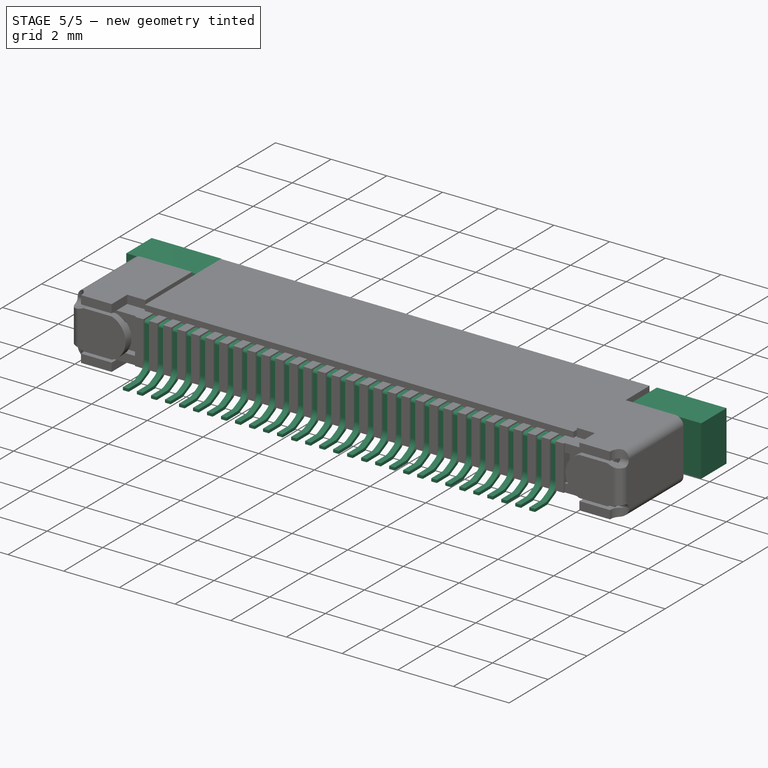
[diagram: stage 5 of 5 — iso view after this stage's code; geometry added in this stage tinted green]
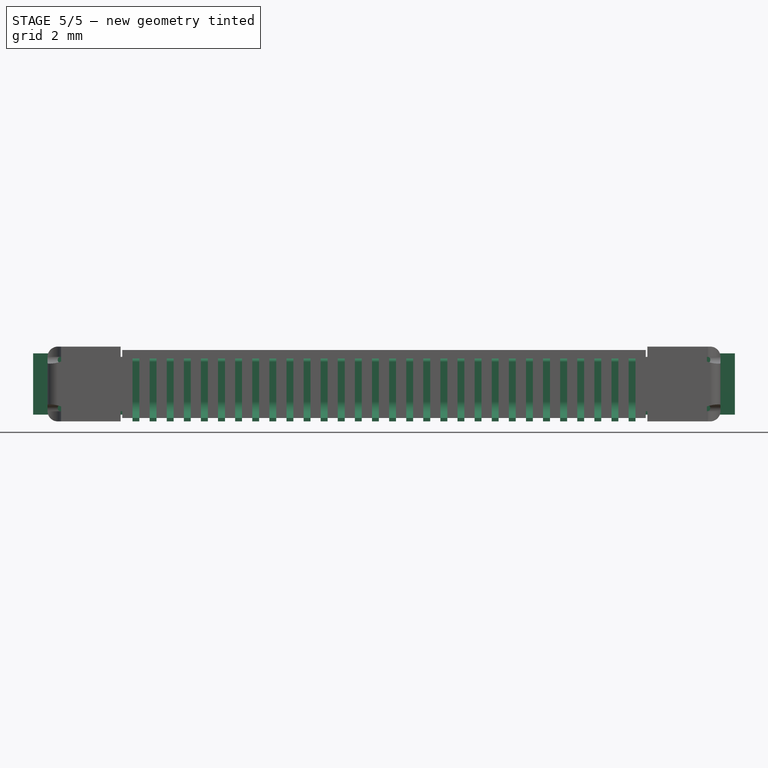
[diagram: stage 5 of 5 — front view after this stage's code; geometry added in this stage tinted green]
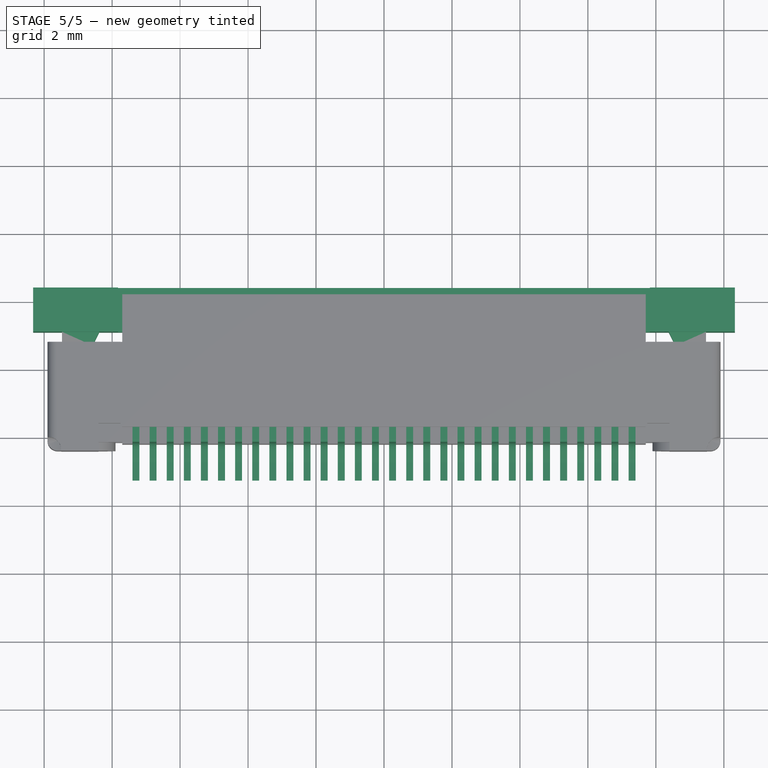
[diagram: stage 5 of 5 — top view after this stage's code; geometry added in this stage tinted green]
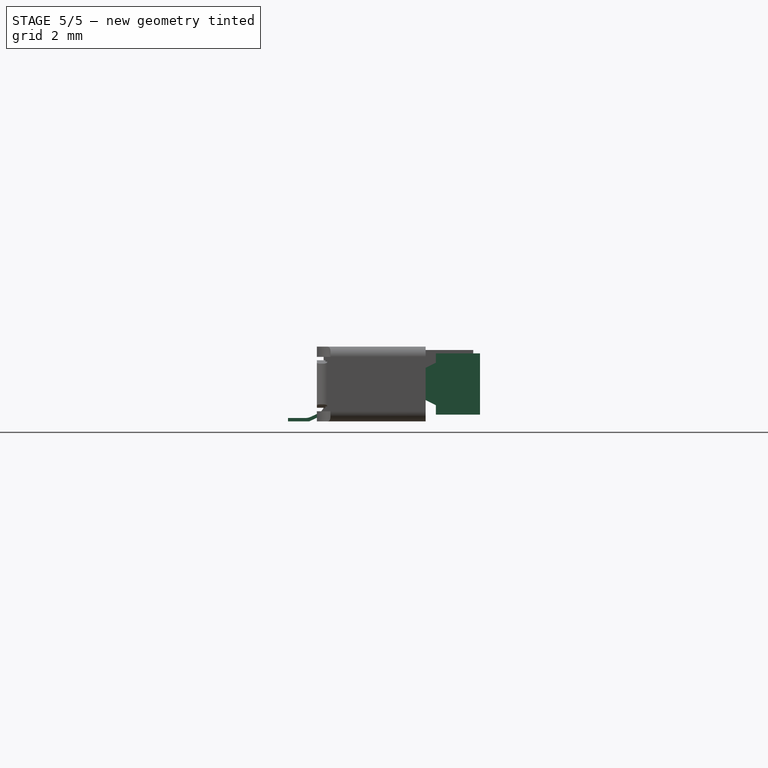
[diagram: stage 5 of 5 — right view after this stage's code; geometry added in this stage tinted green]
FEATURE [PartDesign::Body] Body007
  Group = -> [Sketch007,Pad007]
  Origin = -> Origin007
  Tip = -> Pad007
FEATURE [Sketcher::SketchObject] Sketch008
  sketch-geometry (148):
    g0: LineSegment StartX=-7.4 StartY=0.75 StartZ=0 EndX=-7.19667 EndY=0.75 EndZ=0
    g1: LineSegment StartX=-7.19667 StartY=0.75 StartZ=0 EndX=-7.19667 EndY=-3.25 EndZ=0
    g2: LineSegment StartX=-7.4 StartY=-4.25 StartZ=0 EndX=-7.4 EndY=0.75 EndZ=0
    g3: LineSegment StartX=-6.89667 StartY=0.75 StartZ=0 EndX=-6.69333 EndY=0.75 EndZ=0
    g4: LineSegment StartX=-6.69333 StartY=0.75 StartZ=0 EndX=-6.69333 EndY=-3.25 EndZ=0
    g5: LineSegment [constr] StartX=-6.69333 StartY=-3.25 StartZ=0 EndX=-6.89667 EndY=-3.25 EndZ=0
    g6: LineSegment StartX=-6.89667 StartY=-3.25 StartZ=0 EndX=-6.89667 EndY=0.75 EndZ=0
    g7: LineSegment StartX=-6.39333 StartY=0.75 StartZ=0 EndX=-6.19 EndY=0.75 EndZ=0
    g8: LineSegment StartX=-6.19 StartY=0.75 StartZ=0 EndX=-6.19 EndY=-3.25 EndZ=0
    g9: LineSegment [constr] StartX=-6.19 StartY=-3.25 StartZ=0 EndX=-6.39333 EndY=-3.25 EndZ=0
    g10: LineSegment StartX=-6.39333 StartY=-3.25 StartZ=0 EndX=-6.39333 EndY=0.75 EndZ=0
    g11: LineSegment StartX=-5.89 StartY=0.75 StartZ=0 EndX=-5.68667 EndY=0.75 EndZ=0
    g12: LineSegment StartX=-5.68667 StartY=0.75 StartZ=0 EndX=-5.68667 EndY=-3.25 EndZ=0
    g13: LineSegment [constr] StartX=-5.68667 StartY=-3.25 StartZ=0 EndX=-5.89 EndY=-3.25 EndZ=0
    g14: LineSegment StartX=-5.89 StartY=-3.25 StartZ=0 EndX=-5.89 EndY=0.75 EndZ=0
    g15: LineSegment StartX=-5.38667 StartY=0.75 StartZ=0 EndX=-5.18333 EndY=0.75 EndZ=0
    g16: LineSegment StartX=-5.18333 StartY=0.75 StartZ=0 EndX=-5.18333 EndY=-3.25 EndZ=0
    g17: LineSegment [constr] StartX=-5.18333 StartY=-3.25 StartZ=0 EndX=-5.38667 EndY=-3.25 EndZ=0
    g18: LineSegment StartX=-5.38667 StartY=-3.25 StartZ=0 EndX=-5.38667 EndY=0.75 EndZ=0
    g19: LineSegment StartX=-4.88333 StartY=0.75 StartZ=0 EndX=-4.68 EndY=0.75 EndZ=0
    g20: LineSegment StartX=-4.68 StartY=0.75 StartZ=0 EndX=-4.68 EndY=-3.25 EndZ=0
    g21: LineSegment [constr] StartX=-4.68 StartY=-3.25 StartZ=0 EndX=-4.88333 EndY=-3.25 EndZ=0
    g22: LineSegment StartX=-4.88333 StartY=-3.25 StartZ=0 EndX=-4.88333 EndY=0.75 EndZ=0
    g23: LineSegment StartX=-4.38 StartY=0.75 StartZ=0 EndX=-4.17667 EndY=0.75 EndZ=0
    g24: LineSegment StartX=-4.17667 StartY=0.75 StartZ=0 EndX=-4.17667 EndY=-3.25 EndZ=0
    g25: LineSegment [constr] StartX=-4.17667 StartY=-3.25 StartZ=0 EndX=-4.38 EndY=-3.25 EndZ=0
    g26: LineSegment StartX=-4.38 StartY=-3.25 StartZ=0 EndX=-4.38 EndY=0.75 EndZ=0
    g27: LineSegment StartX=-3.87667 StartY=0.75 StartZ=0 EndX=-3.67333 EndY=0.75 EndZ=0
    g28: LineSegment StartX=-3.67333 StartY=0.75 StartZ=0 EndX=-3.67333 EndY=-3.25 EndZ=0
    g29: LineSegment [constr] StartX=-3.67333 StartY=-3.25 StartZ=0 EndX=-3.87667 EndY=-3.25 EndZ=0
    g30: LineSegment StartX=-3.87667 StartY=-3.25 StartZ=0 EndX=-3.87667 EndY=0.75 EndZ=0
    g31: LineSegment StartX=-3.37333 StartY=0.75 StartZ=0 EndX=-3.17 EndY=0.75 EndZ=0
    g32: LineSegment StartX=-3.17 StartY=0.75 StartZ=0 EndX=-3.17 EndY=-3.25 EndZ=0
    g33: LineSegment [constr] StartX=-3.17 StartY=-3.25 StartZ=0 EndX=-3.37333 EndY=-3.25 EndZ=0
    g34: LineSegment StartX=-3.37333 StartY=-3.25 StartZ=0 EndX=-3.37333 EndY=0.75 EndZ=0
    g35: LineSegment StartX=-2.87 StartY=0.75 StartZ=0 EndX=-2.66667 EndY=0.75 EndZ=0
    g36: LineSegment StartX=-2.66667 StartY=0.75 StartZ=0 EndX=-2.66667 EndY=-3.25 EndZ=0
    g37: LineSegment [constr] StartX=-2.66667 StartY=-3.25 StartZ=0 EndX=-2.87 EndY=-3.25 EndZ=0
    g38: LineSegment StartX=-2.87 StartY=-3.25 StartZ=0 EndX=-2.87 EndY=0.75 EndZ=0
    g39: LineSegment StartX=-2.36667 StartY=0.75 StartZ=0 EndX=-2.16333 EndY=0.75 EndZ=0
    g40: LineSegment StartX=-2.16333 StartY=0.75 StartZ=0 EndX=-2.16333 EndY=-3.25 EndZ=0
    g41: LineSegment [constr] StartX=-2.16333 StartY=-3.25 StartZ=0 EndX=-2.36667 EndY=-3.25 EndZ=0
    g42: LineSegment StartX=-2.36667 StartY=-3.25 StartZ=0 EndX=-2.36667 EndY=0.75 EndZ=0
    g43: LineSegment StartX=-1.86333 StartY=0.75 StartZ=0 EndX=-1.66 EndY=0.75 EndZ=0
    g44: LineSegment StartX=-1.66 StartY=0.75 StartZ=0 EndX=-1.66 EndY=-3.25 EndZ=0
    g45: LineSegment [constr] StartX=-1.66 StartY=-3.25 StartZ=0 EndX=-1.86333 EndY=-3.25 EndZ=0
    g46: LineSegment StartX=-1.86333 StartY=-3.25 StartZ=0 EndX=-1.86333 EndY=0.75 EndZ=0
    g47: LineSegment StartX=-1.36 StartY=0.75 StartZ=0 EndX=-1.15667 EndY=0.75 EndZ=0
    g48: LineSegment StartX=-1.15667 StartY=0.75 StartZ=0 EndX=-1.15667 EndY=-3.25 EndZ=0
    g49: LineSegment [constr] StartX=-1.15667 StartY=-3.25 StartZ=0 EndX=-1.36 EndY=-3.25 EndZ=0
    g50: LineSegment StartX=-1.36 StartY=-3.25 StartZ=0 EndX=-1.36 EndY=0.75 EndZ=0
    g51: LineSegment StartX=-0.856667 StartY=0.75 StartZ=0 EndX=-0.653333 EndY=0.75 EndZ=0
    g52: LineSegment StartX=-0.653333 StartY=0.75 StartZ=0 EndX=-0.653333 EndY=-3.25 EndZ=0
    g53: LineSegment [constr] StartX=-0.653333 StartY=-3.25 StartZ=0 EndX=-0.856667 EndY=-3.25 EndZ=0
    g54: LineSegment StartX=-0.856667 StartY=-3.25 StartZ=0 EndX=-0.856667 EndY=0.75 EndZ=0
    g55: LineSegment StartX=-0.353333 StartY=0.75 StartZ=0 EndX=-0.15 EndY=0.75 EndZ=0
    g56: LineSegment StartX=-0.15 StartY=0.75 StartZ=0 EndX=-0.15 EndY=-3.25 EndZ=0
    g57: LineSegment [constr] StartX=-0.15 StartY=-3.25 StartZ=0 EndX=-0.353333 EndY=-3.25 EndZ=0
    g58: LineSegment StartX=-0.353333 StartY=-3.25 StartZ=0 EndX=-0.353333 EndY=0.75 EndZ=0
    g59: LineSegment StartX=0.15 StartY=0.75 StartZ=0 EndX=0.353333 EndY=0.75 EndZ=0
    g60: LineSegment StartX=0.353333 StartY=0.75 StartZ=0 EndX=0.353333 EndY=-3.25 EndZ=0
    g61: LineSegment [constr] StartX=0.353333 StartY=-3.25 StartZ=0 EndX=0.15 EndY=-3.25 EndZ=0
    g62: LineSegment StartX=0.15 StartY=-3.25 StartZ=0 EndX=0.15 EndY=0.75 EndZ=0
    g63: LineSegment StartX=0.653333 StartY=0.75 StartZ=0 EndX=0.856667 EndY=0.75 EndZ=0
    g64: LineSegment StartX=0.856667 StartY=0.75 StartZ=0 EndX=0.856667 EndY=-3.25 EndZ=0
    g65: LineSegment [constr] StartX=0.856667 StartY=-3.25 StartZ=0 EndX=0.653333 EndY=-3.25 EndZ=0
    g66: LineSegment StartX=0.653333 StartY=-3.25 StartZ=0 EndX=0.653333 EndY=0.75 EndZ=0
    g67: LineSegment StartX=1.15667 StartY=0.75 StartZ=0 EndX=1.36 EndY=0.75 EndZ=0
    g68: LineSegment StartX=1.36 StartY=0.75 StartZ=0 EndX=1.36 EndY=-3.25 EndZ=0
    g69: LineSegment [constr] StartX=1.36 StartY=-3.25 StartZ=0 EndX=1.15667 EndY=-3.25 EndZ=0
    g70: LineSegment StartX=1.15667 StartY=-3.25 StartZ=0 EndX=1.15667 EndY=0.75 EndZ=0
    g71: LineSegment StartX=1.66 StartY=0.75 StartZ=0 EndX=1.86333 EndY=0.75 EndZ=0
    g72: LineSegment StartX=1.86333 StartY=0.75 StartZ=0 EndX=1.86333 EndY=-3.25 EndZ=0
    g73: LineSegment [constr] StartX=1.86333 StartY=-3.25 StartZ=0 EndX=1.66 EndY=-3.25 EndZ=0
    g74: LineSegment StartX=1.66 StartY=-3.25 StartZ=0 EndX=1.66 EndY=0.75 EndZ=0
    g75: LineSegment StartX=2.16333 StartY=0.75 StartZ=0 EndX=2.36667 EndY=0.75 EndZ=0
    g76: LineSegment StartX=2.36667 StartY=0.75 StartZ=0 EndX=2.36667 EndY=-3.25 EndZ=0
    g77: LineSegment [constr] StartX=2.36667 StartY=-3.25 StartZ=0 EndX=2.16333 EndY=-3.25 EndZ=0
    g78: LineSegment StartX=2.16333 StartY=-3.25 StartZ=0 EndX=2.16333 EndY=0.75 EndZ=0
    g79: LineSegment StartX=2.66667 StartY=0.75 StartZ=0 EndX=2.87 EndY=0.75 EndZ=0
    g80: LineSegment StartX=2.87 StartY=0.75 StartZ=0 EndX=2.87 EndY=-3.25 EndZ=0
    g81: LineSegment [constr] StartX=2.87 StartY=-3.25 StartZ=0 EndX=2.66667 EndY=-3.25 EndZ=0
    g82: LineSegment StartX=2.66667 StartY=-3.25 StartZ=0 EndX=2.66667 EndY=0.75 EndZ=0
    g83: LineSegment StartX=3.17 StartY=0.75 StartZ=0 EndX=3.37333 EndY=0.75 EndZ=0
    g84: LineSegment StartX=3.37333 StartY=0.75 StartZ=0 EndX=3.37333 EndY=-3.25 EndZ=0
    g85: LineSegment [constr] StartX=3.37333 StartY=-3.25 StartZ=0 EndX=3.17 EndY=-3.25 EndZ=0
    g86: LineSegment StartX=3.17 StartY=-3.25 StartZ=0 EndX=3.17 EndY=0.75 EndZ=0
    g87: LineSegment StartX=3.67333 StartY=0.75 StartZ=0 EndX=3.87667 EndY=0.75 EndZ=0
    g88: LineSegment StartX=3.87667 StartY=0.75 StartZ=0 EndX=3.87667 EndY=-3.25 EndZ=0
    g89: LineSegment [constr] StartX=3.87667 StartY=-3.25 StartZ=0 EndX=3.67333 EndY=-3.25 EndZ=0
    g90: LineSegment StartX=3.67333 StartY=-3.25 StartZ=0 EndX=3.67333 EndY=0.75 EndZ=0
    g91: LineSegment StartX=4.17667 StartY=0.75 StartZ=0 EndX=4.38 EndY=0.75 EndZ=0
    g92: LineSegment StartX=4.38 StartY=0.75 StartZ=0 EndX=4.38 EndY=-3.25 EndZ=0
    g93: LineSegment [constr] StartX=4.38 StartY=-3.25 StartZ=0 EndX=4.17667 EndY=-3.25 EndZ=0
    g94: LineSegment StartX=4.17667 StartY=-3.25 StartZ=0 EndX=4.17667 EndY=0.75 EndZ=0
    g95: LineSegment StartX=4.68 StartY=0.75 StartZ=0 EndX=4.88333 EndY=0.75 EndZ=0
    g96: LineSegment StartX=4.88333 StartY=0.75 StartZ=0 EndX=4.88333 EndY=-3.25 EndZ=0
    g97: LineSegment [constr] StartX=4.88333 StartY=-3.25 StartZ=0 EndX=4.68 EndY=-3.25 EndZ=0
    g98: LineSegment StartX=4.68 StartY=-3.25 StartZ=0 EndX=4.68 EndY=0.75 EndZ=0
    g99: LineSegment StartX=5.18333 StartY=0.75 StartZ=0 EndX=5.38667 EndY=0.75 EndZ=0
    g100: LineSegment StartX=5.38667 StartY=0.75 StartZ=0 EndX=5.38667 EndY=-3.25 EndZ=0
    g101: LineSegment [constr] StartX=5.38667 StartY=-3.25 StartZ=0 EndX=5.18333 EndY=-3.25 EndZ=0
    g102: LineSegment StartX=5.18333 StartY=-3.25 StartZ=0 EndX=5.18333 EndY=0.75 EndZ=0
    g103: LineSegment StartX=5.68667 StartY=0.75 StartZ=0 EndX=5.89 EndY=0.75 EndZ=0
    g104: LineSegment StartX=5.89 StartY=0.75 StartZ=0 EndX=5.89 EndY=-3.25 EndZ=0
    g105: LineSegment [constr] StartX=5.89 StartY=-3.25 StartZ=0 EndX=5.68667 EndY=-3.25 EndZ=0
    g106: LineSegment StartX=5.68667 StartY=-3.25 StartZ=0 EndX=5.68667 EndY=0.75 EndZ=0
    g107: LineSegment StartX=6.19 StartY=0.75 StartZ=0 EndX=6.39333 EndY=0.75 EndZ=0
    g108: LineSegment StartX=6.39333 StartY=0.75 StartZ=0 EndX=6.39333 EndY=-3.25 EndZ=0
    g109: LineSegment [constr] StartX=6.39333 StartY=-3.25 StartZ=0 EndX=6.19 EndY=-3.25 EndZ=0
    g110: LineSegment StartX=6.19 StartY=-3.25 StartZ=0 EndX=6.19 EndY=0.75 EndZ=0
    g111: LineSegment StartX=6.69333 StartY=0.75 StartZ=0 EndX=6.89667 EndY=0.75 EndZ=0
    g112: LineSegment StartX=6.89667 StartY=0.75 StartZ=0 EndX=6.89667 EndY=-3.25 EndZ=0
    g113: LineSegment [constr] StartX=6.89667 StartY=-3.25 StartZ=0 EndX=6.69333 EndY=-3.25 EndZ=0
    g114: LineSegment StartX=6.69333 StartY=-3.25 StartZ=0 EndX=6.69333 EndY=0.75 EndZ=0
    g115: LineSegment StartX=7.19667 StartY=0.75 StartZ=0 EndX=7.4 EndY=0.75 EndZ=0
    g116: LineSegment StartX=7.4 StartY=0.75 StartZ=0 EndX=7.4 EndY=-4.25 EndZ=0
    g117: LineSegment StartX=7.19667 StartY=-3.25 StartZ=0 EndX=7.19667 EndY=0.75 EndZ=0
    g118: LineSegment StartX=7.19667 StartY=-3.25 StartZ=0 EndX=6.89667 EndY=-3.25 EndZ=0
    g119: LineSegment StartX=6.69333 StartY=-3.25 StartZ=0 EndX=6.39333 EndY=-3.25 EndZ=0
    g120: LineSegment StartX=6.19 StartY=-3.25 StartZ=0 EndX=5.89 EndY=-3.25 EndZ=0
    g121: LineSegment StartX=5.68667 StartY=-3.25 StartZ=0 EndX=5.38667 EndY=-3.25 EndZ=0
    g122: LineSegment StartX=5.18333 StartY=-3.25 StartZ=0 EndX=4.88333 EndY=-3.25 EndZ=0
    g123: LineSegment StartX=4.68 StartY=-3.25 StartZ=0 EndX=4.38 EndY=-3.25 EndZ=0
    g124: LineSegment StartX=4.17667 StartY=-3.25 StartZ=0 EndX=3.87667 EndY=-3.25 EndZ=0
    g125: LineSegment StartX=3.67333 StartY=-3.25 StartZ=0 EndX=3.37333 EndY=-3.25 EndZ=0
    g126: LineSegment StartX=3.17 StartY=-3.25 StartZ=0 EndX=2.87 EndY=-3.25 EndZ=0
    g127: LineSegment StartX=2.66667 StartY=-3.25 StartZ=0 EndX=2.36667 EndY=-3.25 EndZ=0
    g128: LineSegment StartX=2.16333 StartY=-3.25 StartZ=0 EndX=1.86333 EndY=-3.25 EndZ=0
    g129: LineSegment StartX=1.66 StartY=-3.25 StartZ=0 EndX=1.36 EndY=-3.25 EndZ=0
    g130: LineSegment StartX=1.15667 StartY=-3.25 StartZ=0 EndX=0.856667 EndY=-3.25 EndZ=0
    g131: LineSegment StartX=0.653333 StartY=-3.25 StartZ=0 EndX=0.353333 EndY=-3.25 EndZ=0
    g132: LineSegment StartX=0.15 StartY=-3.25 StartZ=0 EndX=-0.15 EndY=-3.25 EndZ=0
    g133: LineSegment StartX=-0.353333 StartY=-3.25 StartZ=0 EndX=-0.653333 EndY=-3.25 EndZ=0
    g134: LineSegment StartX=-0.856667 StartY=-3.25 StartZ=0 EndX=-1.15667 EndY=-3.25 EndZ=0
    g135: LineSegment StartX=-1.36 StartY=-3.25 StartZ=0 EndX=-1.66 EndY=-3.25 EndZ=0
    g136: LineSegment StartX=-1.86333 StartY=-3.25 StartZ=0 EndX=-2.16333 EndY=-3.25 EndZ=0
    g137: LineSegment StartX=-2.36667 StartY=-3.25 StartZ=0 EndX=-2.66667 EndY=-3.25 EndZ=0
    g138: LineSegment StartX=-2.87 StartY=-3.25 StartZ=0 EndX=-3.17 EndY=-3.25 EndZ=0
    g139: LineSegment StartX=-3.37333 StartY=-3.25 StartZ=0 EndX=-3.67333 EndY=-3.25 EndZ=0
    g140: LineSegment StartX=-3.87667 StartY=-3.25 StartZ=0 EndX=-4.17667 EndY=-3.25 EndZ=0
    g141: LineSegment StartX=-4.38 StartY=-3.25 StartZ=0 EndX=-4.68 EndY=-3.25 EndZ=0
    g142: LineSegment StartX=-4.88333 StartY=-3.25 StartZ=0 EndX=-5.18333 EndY=-3.25 EndZ=0
    g143: LineSegment StartX=-5.38667 StartY=-3.25 StartZ=0 EndX=-5.68667 EndY=-3.25 EndZ=0
    g144: LineSegment StartX=-5.89 StartY=-3.25 StartZ=0 EndX=-6.19 EndY=-3.25 EndZ=0
    g145: LineSegment StartX=-6.39333 StartY=-3.25 StartZ=0 EndX=-6.69333 EndY=-3.25 EndZ=0
    g146: LineSegment StartX=-6.89667 StartY=-3.25 StartZ=0 EndX=-7.19667 EndY=-3.25 EndZ=0
    g147: LineSegment StartX=-7.4 StartY=-4.25 StartZ=0 EndX=7.4 EndY=-4.25 EndZ=0
  constraints (416):
    c: Coincident(g0,g1)
    c: Coincident(g2,g0)
    c: Horizontal(g0)
    c: Vertical(g1)
    c: Vertical(g2)
    c: Coincident(g3,g4)
    c: Coincident(g4,g5)
    c: Coincident(g5,g6)
    c: Coincident(g6,g3)
    c: Horizontal(g3)
    c: Horizontal(g5)
    c: Vertical(g4)
    c: Vertical(g6)
    c: Coincident(g7,g8)
    c: Coincident(g8,g9)
    c: Coincident(g9,g10)
    c: Coincident(g10,g7)
    c: Horizontal(g7)
    c: Horizontal(g9)
    c: Vertical(g8)
    c: Vertical(g10)
    c: Coincident(g11,g12)
    c: Coincident(g12,g13)
    c: Coincident(g13,g14)
    c: Coincident(g14,g11)
    c: Horizontal(g11)
    c: Horizontal(g13)
    c: Vertical(g12)
    c: Vertical(g14)
    c: Coincident(g15,g16)
    c: Coincident(g16,g17)
    c: Coincident(g17,g18)
    c: Coincident(g18,g15)
    c: Horizontal(g15)
    c: Horizontal(g17)
    c: Vertical(g16)
    c: Vertical(g18)
    c: Coincident(g19,g20)
    c: Coincident(g20,g21)
    c: Coincident(g21,g22)
    c: Coincident(g22,g19)
    c: Horizontal(g19)
    c: Horizontal(g21)
    c: Vertical(g20)
    c: Vertical(g22)
    c: Coincident(g23,g24)
    c: Coincident(g24,g25)
    c: Coincident(g25,g26)
    c: Coincident(g26,g23)
    c: Horizontal(g23)
    c: Horizontal(g25)
    c: Vertical(g24)
    c: Vertical(g26)
    c: Coincident(g27,g28)
    c: Coincident(g28,g29)
    c: Coincident(g29,g30)
    c: Coincident(g30,g27)
    c: Horizontal(g27)
    c: Horizontal(g29)
    c: Vertical(g28)
    c: Vertical(g30)
    c: Coincident(g31,g32)
    c: Coincident(g32,g33)
    c: Coincident(g33,g34)
    c: Coincident(g34,g31)
    c: Horizontal(g31)
    c: Horizontal(g33)
    c: Vertical(g32)
    c: Vertical(g34)
    c: Coincident(g35,g36)
    c: Coincident(g36,g37)
    c: Coincident(g37,g38)
    c: Coincident(g38,g35)
    c: Horizontal(g35)
    c: Horizontal(g37)
    c: Vertical(g36)
    c: Vertical(g38)
    c: Coincident(g39,g40)
    c: Coincident(g40,g41)
    c: Coincident(g41,g42)
    c: Coincident(g42,g39)
    c: Horizontal(g39)
    c: Horizontal(g41)
    c: Vertical(g40)
    c: Vertical(g42)
    c: Coincident(g43,g44)
    c: Coincident(g44,g45)
    c: Coincident(g45,g46)
    c: Coincident(g46,g43)
    c: Horizontal(g43)
    c: Horizontal(g45)
    c: Vertical(g44)
    c: Vertical(g46)
    c: Coincident(g47,g48)
    c: Coincident(g48,g49)
    c: Coincident(g49,g50)
    c: Coincident(g50,g47)
    c: Horizontal(g47)
    c: Horizontal(g49)
    c: Vertical(g48)
    c: Vertical(g50)
    c: Coincident(g51,g52)
    c: Coincident(g52,g53)
    c: Coincident(g53,g54)
    c: Coincident(g54,g51)
    c: Horizontal(g51)
    c: Horizontal(g53)
    c: Vertical(g52)
    c: Vertical(g54)
    c: Coincident(g55,g56)
    c: Coincident(g56,g57)
    c: Coincident(g57,g58)
    c: Coincident(g58,g55)
    c: Horizontal(g55)
    c: Horizontal(g57)
    c: Vertical(g56)
    c: Vertical(g58)
    c: Coincident(g59,g60)
    c: Coincident(g60,g61)
    c: Coincident(g61,g62)
    c: Coincident(g62,g59)
    c: Horizontal(g59)
    c: Horizontal(g61)
    c: Vertical(g60)
    c: Vertical(g62)
    c: Coincident(g63,g64)
    c: Coincident(g64,g65)
    c: Coincident(g65,g66)
    c: Coincident(g66,g63)
    c: Horizontal(g63)
    c: Horizontal(g65)
    c: Vertical(g64)
    c: Vertical(g66)
    c: Coincident(g67,g68)
    c: Coincident(g68,g69)
    c: Coincident(g69,g70)
    c: Coincident(g70,g67)
    c: Horizontal(g67)
    c: Horizontal(g69)
    c: Vertical(g68)
    c: Vertical(g70)
    c: Coincident(g71,g72)
    c: Coincident(g72,g73)
    c: Coincident(g73,g74)
    c: Coincident(g74,g71)
    c: Horizontal(g71)
    c: Horizontal(g73)
    c: Vertical(g72)
    c: Vertical(g74)
    c: Coincident(g75,g76)
    c: Coincident(g76,g77)
    c: Coincident(g77,g78)
    c: Coincident(g78,g75)
    c: Horizontal(g75)
    c: Horizontal(g77)
    c: Vertical(g76)
    c: Vertical(g78)
    c: Coincident(g79,g80)
    c: Coincident(g80,g81)
    c: Coincident(g81,g82)
    c: Coincident(g82,g79)
    c: Horizontal(g79)
    c: Horizontal(g81)
    c: Vertical(g80)
    c: Vertical(g82)
    c: Coincident(g83,g84)
    c: Coincident(g84,g85)
    c: Coincident(g85,g86)
    c: Coincident(g86,g83)
    c: Horizontal(g83)
    c: Horizontal(g85)
    c: Vertical(g84)
    c: Vertical(g86)
    c: Coincident(g87,g88)
    c: Coincident(g88,g89)
    c: Coincident(g89,g90)
    c: Coincident(g90,g87)
    c: Horizontal(g87)
    c: Horizontal(g89)
    c: Vertical(g88)
    c: Vertical(g90)
    c: Coincident(g91,g92)
    c: Coincident(g92,g93)
    c: Coincident(g93,g94)
    c: Coincident(g94,g91)
    c: Horizontal(g91)
    c: Horizontal(g93)
    c: Vertical(g92)
    c: Vertical(g94)
    c: Coincident(g95,g96)
    c: Coincident(g96,g97)
    c: Coincident(g97,g98)
    c: Coincident(g98,g95)
    c: Horizontal(g95)
    c: Horizontal(g97)
    c: Vertical(g96)
    c: Vertical(g98)
    c: Coincident(g99,g100)
    c: Coincident(g100,g101)
    c: Coincident(g101,g102)
    c: Coincident(g102,g99)
    c: Horizontal(g99)
    c: Horizontal(g101)
    c: Vertical(g100)
    c: Vertical(g102)
    c: Coincident(g103,g104)
    c: Coincident(g104,g105)
    c: Coincident(g105,g106)
    c: Coincident(g106,g103)
    c: Horizontal(g103)
    c: Horizontal(g105)
    c: Vertical(g104)
    c: Vertical(g106)
    c: Coincident(g107,g108)
    c: Coincident(g108,g109)
    c: Coincident(g109,g110)
    c: Coincident(g110,g107)
    c: Horizontal(g107)
    c: Horizontal(g109)
    c: Vertical(g108)
    c: Vertical(g110)
    c: Coincident(g111,g112)
    c: Coincident(g112,g113)
    c: Coincident(g113,g114)
    c: Coincident(g114,g111)
    c: Horizontal(g111)
    c: Horizontal(g113)
    c: Vertical(g112)
    c: Vertical(g114)
    c: Coincident(g115,g116)
    c: Coincident(g117,g115)
    c: Horizontal(g115)
    c: Vertical(g116)
    c: Vertical(g117)
    c: Equal(g0,g3)
    c: Equal(g3,g7)
    c: Equal(g7,g11)
    c: Equal(g11,g15)
    c: Equal(g15,g19)
    c: Equal(g19,g23)
    c: Equal(g23,g27)
    c: Equal(g27,g31)
    c: Equal(g31,g35)
    c: Equal(g35,g39)
    c: Equal(g39,g43)
    c: Equal(g43,g47)
    c: Equal(g47,g51)
    c: Equal(g51,g55)
    c: Equal(g55,g59)
    c: Equal(g59,g63)
    c: Equal(g63,g67)
    c: Equal(g67,g71)
    c: Equal(g71,g75)
    c: Equal(g75,g79)
    c: Equal(g79,g83)
    c: Equal(g83,g87)
    c: Equal(g87,g91)
    c: Equal(g91,g95)
    c: Equal(g95,g99)
    c: Equal(g99,g103)
    c: Equal(g103,g107)
    c: Equal(g107,g111)
    c: Equal(g111,g115)
    c: Coincident(g118,g112)
    c: Horizontal(g118)
    c: Coincident(g119,g113)
    c: Coincident(g119,g108)
    c: Coincident(g120,g109)
    c: Coincident(g120,g104)
    c: Coincident(g121,g105)
    c: Coincident(g121,g100)
    c: Coincident(g122,g101)
    c: Coincident(g122,g96)
    c: Coincident(g123,g97)
    c: Coincident(g123,g92)
    c: Coincident(g124,g93)
    c: Coincident(g124,g88)
    c: Coincident(g125,g89)
    c: Coincident(g125,g84)
    c: Coincident(g126,g85)
    c: Coincident(g126,g80)
    c: Coincident(g127,g81)
    c: Coincident(g127,g76)
    c: Coincident(g128,g77)
    c: Coincident(g128,g72)
    c: Coincident(g129,g73)
    c: Coincident(g129,g68)
    c: Coincident(g130,g64)
    c: Coincident(g69,g130)
    c: Coincident(g131,g65)
    c: Coincident(g131,g60)
    c: Coincident(g132,g61)
    c: Coincident(g132,g56)
    c: Horizontal(g132)
    c: Coincident(g133,g57)
    c: Coincident(g133,g52)
    c: Horizontal(g133)
    c: Coincident(g134,g53)
    c: Coincident(g134,g48)
    c: Coincident(g135,g49)
    c: Coincident(g135,g44)
    c: Coincident(g136,g45)
    c: Coincident(g136,g40)
    c: Coincident(g137,g41)
    c: Coincident(g137,g36)
    c: Coincident(g138,g37)
    c: Coincident(g138,g32)
    c: Coincident(g139,g33)
    c: Coincident(g139,g28)
    c: Coincident(g140,g29)
    c: Coincident(g140,g24)
    c: Coincident(g141,g25)
    c: Coincident(g141,g20)
    c: Horizontal(g141)
    c: Coincident(g142,g21)
    c: Coincident(g142,g16)
    c: Coincident(g143,g17)
    c: Coincident(g143,g12)
    c: Horizontal(g143)
    c: Coincident(g144,g13)
    c: Coincident(g144,g8)
    c: Coincident(g145,g9)
    c: Coincident(g145,g4)
    c: Coincident(g146,g5)
    c: Coincident(g146,g1)
    c: Horizontal(g146)
    c: Horizontal(g145)
    c: Horizontal(g144)
    c: Horizontal(g142)
    c: Horizontal(g140)
    c: Horizontal(g139)
    c: Horizontal(g138)
    c: Horizontal(g137)
    c: Horizontal(g136)
    c: Horizontal(g135)
    c: Horizontal(g131)
    c: Horizontal(g130)
    c: Horizontal(g129)
    c: Horizontal(g128)
    c: Horizontal(g127)
    c: Horizontal(g126)
    c: Horizontal(g125)
    c: Horizontal(g124)
    c: Horizontal(g123)
    c: Horizontal(g122)
    c: Horizontal(g121)
    c: Horizontal(g120)
    c: Horizontal(g119)
    c: Equal(g118,g119)
    c: Equal(g119,g120)
    c: Equal(g120,g121)
    c: Equal(g121,g122)
    c: Equal(g122,g123)
    c: Equal(g123,g124)
    c: Equal(g124,g125)
    c: Horizontal(g134)
    c: Equal(g125,g126)
    c: Equal(g126,g127)
    c: Equal(g127,g128)
    c: Equal(g128,g129)
    c: Equal(g129,g130)
    c: Equal(g130,g131)
    c: Equal(g131,g132)
    c: Equal(g132,g133)
    c: Equal(g133,g134)
    c: Equal(g134,g135)
    c: Equal(g135,g136)
    c: Equal(g136,g137)
    c: Equal(g137,g138)
    c: Equal(g138,g139)
    c: Equal(g139,g140)
    c: Equal(g140,g141)
    c: Equal(g141,g142)
    c: Equal(g142,g143)
    c: Equal(g143,g144)
    c: Equal(g144,g145)
    c: Equal(g145,g146)
    c: Equal(g1,g6)
    c: Equal(g4,g10)
    c: Equal(g8,g14)
    c: Equal(g12,g18)
    c: Equal(g16,g22)
    c: Equal(g20,g26)
    c: Equal(g24,g30)
    c: Equal(g28,g34)
    c: Equal(g32,g38)
    c: Equal(g36,g42)
    c: Equal(g40,g46)
    c: Equal(g44,g50)
    c: Equal(g48,g54)
    c: Equal(g52,g58)
    c: Equal(g56,g62)
    c: Equal(g60,g66)
    c: Equal(g64,g70)
    c: Equal(g68,g74)
    c: Equal(g72,g78)
    c: Equal(g76,g82)
    c: Equal(g80,g86)
    c: Equal(g84,g90)
    c: Equal(g88,g94)
    c: Equal(g92,g98)
    c: Equal(g96,g102)
    c: Equal(g100,g106)
    c: Equal(g104,g110)
    c: Equal(g108,g114)
    c: Equal(g112,g117)
    c: DistanceY(g43) = 0.75
    c: DistanceX(g0,g115) = 14.8
    c: Symmetric(g61,g56,g-2)
    c: DistanceX(g118,g118) = 0.3
    c: Coincident(g117,g118)
    c: Coincident(g147,g2)
    c: Coincident(g147,g116)
    c: Horizontal(g147)
    c: DistanceY(g2,g2) = 5
    c: DistanceY(g1,g1) = 4
FEATURE [PartDesign::Pad] Pad008
  Length = 2
  Length2 = 100
  Profile = -> Sketch008
  Type = 0
FEATURE [PartDesign::Body] Body008
  Group = -> [Sketch008,Pad008]
  Origin = -> Origin008
  Tip = -> Pad008
FEATURE [Sketcher::SketchObject] Sketch009
  Placement = pos=(8,0,0) rot=(0.57735,0.57735,0.57735;2.0944rad)
  sketch-geometry (22):
    g0: LineSegment StartX=-2 StartY=1.5 StartZ=0 EndX=0.8 EndY=1.5 EndZ=0
    g1: LineSegment [constr] StartX=0.8 StartY=1.5 StartZ=0 EndX=0.8 EndY=0.7 EndZ=0
    g2: LineSegment StartX=0.8 StartY=0.7 StartZ=0 EndX=-2 EndY=0.7 EndZ=0
    g3: LineSegment StartX=-2 StartY=0.7 StartZ=0 EndX=-2 EndY=1.5 EndZ=0
    g4: LineSegment StartX=0.8 StartY=1.85 StartZ=0 EndX=-2.15 EndY=1.85 EndZ=0
    g5: LineSegment StartX=-2.15 StartY=1.85 StartZ=0 EndX=-2.15 EndY=0.339113 EndZ=0
    g6: LineSegment StartX=-2.15 StartY=0.339113 StartZ=0 EndX=-2.65 EndY=0.1 EndZ=0
    g7: LineSegment StartX=-2.65 StartY=0.1 StartZ=0 EndX=-3.25 EndY=0.1 EndZ=0
    g8: LineSegment StartX=-3.25 StartY=0.1 StartZ=0 EndX=-3.25 EndY=0 EndZ=0
    g9: LineSegment [constr] StartX=-3.25 StartY=0 StartZ=0 EndX=-2.62732 EndY=0 EndZ=0
    g10: LineSegment StartX=-2.62732 StartY=0 StartZ=0 EndX=-2 EndY=0.3 EndZ=0
    g11: LineSegment StartX=0.95 StartY=2 StartZ=0 EndX=0.95 EndY=0 EndZ=0
    g12: LineSegment StartX=0.95 StartY=0 StartZ=0 EndX=-2.62732 EndY=0 EndZ=0
    g13: LineSegment StartX=0.8 StartY=0.7 StartZ=0 EndX=0.8 EndY=0.6 EndZ=0
    g14: LineSegment StartX=0.8 StartY=0.6 StartZ=0 EndX=-2 EndY=0.6 EndZ=0
    g15: LineSegment StartX=-2 StartY=0.6 StartZ=0 EndX=-2 EndY=0.3 EndZ=0
    g16: LineSegment [constr] StartX=-2 StartY=0.7 StartZ=0 EndX=-2 EndY=0.6 EndZ=0
    g17: LineSegment StartX=0.95 StartY=2 StartZ=0 EndX=-4.25 EndY=2 EndZ=0
    g18: LineSegment StartX=-4.25 StartY=2 StartZ=0 EndX=-4.25 EndY=0 EndZ=0
    g19: LineSegment StartX=-4.25 StartY=0 StartZ=0 EndX=-3.25 EndY=0 EndZ=0
    g20: LineSegment StartX=0.8 StartY=1.5 StartZ=0 EndX=0.8 EndY=1.85 EndZ=0
    g21: LineSegment [constr] StartX=-2.15 StartY=0.339113 StartZ=0 EndX=-2.10686 EndY=0.248898 EndZ=0
  constraints (63):
    c: Coincident(g0,g1)
    c: Coincident(g1,g2)
    c: Coincident(g2,g3)
    c: Coincident(g3,g0)
    c: Horizontal(g0)
    c: Horizontal(g2)
    c: Vertical(g1)
    c: Vertical(g3)
    c: DistanceX(g0) = 0.8
    c: DistanceY(g1) = 0.7
    c: DistanceY(g1,g1) = 0.8
    c: DistanceX(g2) = -2
    c: Horizontal(g4)
    c: Coincident(g4,g5)
    c: Vertical(g5)
    c: Coincident(g6,g7)
    c: Horizontal(g7)
    c: Coincident(g7,g8)
    c: Vertical(g8)
    c: Coincident(g8,g9)
    c: Horizontal(g9)
    c: Coincident(g9,g10)
    c: Coincident(g5,g6)
    c: Vertical(g11)
    c: Coincident(g11,g12)
    c: Coincident(g12,g9)
    c: Horizontal(g12)
    c: Coincident(g1,g13)
    c: Vertical(g13)
    c: Coincident(g13,g14)
    c: Horizontal(g14)
    c: Coincident(g15,g14)
    c: Coincident(g15,g10)
    c: Vertical(g15)
    c: Coincident(g16,g2)
    c: Coincident(g16,g14)
    c: Vertical(g16)
    c: Coincident(g11,g17)
    c: Horizontal(g17)
    c: Coincident(g17,g18)
    c: Vertical(g18)
    c: Coincident(g18,g19)
    c: Coincident(g19,g8)
    c: Horizontal(g19)
    c: Coincident(g20,g0)
    c: Coincident(g20,g4)
    c: Vertical(g20)
    c: DistanceX(g4,g0) = 0.15
    c: DistanceY(g13,g13) = 0.1
    c: Parallel(g6,g10)
    c: PointOnObject(g11,g-1)
    c: Equal(g8,g16)
    c: Coincident(g21,g5)
    c: PointOnObject(g21,g10)
    c: Perpendicular(g6,g21)
    c: Equal(g21,g8)
    c: DistanceX(g8) = -3.25
    c: DistanceY(g18,g18) = 2
    c: DistanceY(g9,g10) = 0.3
    c: DistanceX(g7,g7) = 0.6
    c: DistanceX(g17,g17) = 5.2
    c: DistanceX(g19,g19) = 1
    c: DistanceY(g20,g20) = 0.35
FEATURE [PartDesign::Pad] Pad009
  Length = 16
  Length2 = 100
  Placement = pos=(8,0,0) rot=(0.57735,0.57735,0.57735;2.0944rad)
  Profile = -> Sketch009
  Reversed = true
  Type = 0
FEATURE [PartDesign::Body] Body009
  Group = -> [Sketch009,Pad009]
  Origin = -> Origin009
  Tip = -> Pad009
FEATURE [Part::Cut] Cut001
  Base = -> Body008
  Refine = true
  Tool = -> Body009
FEATURE [Part::Fillet] Fillet
  Base = -> Cut001
  Edges = 30 edges r=0.1: [Edge35,Edge79,Edge121,Edge163,Edge205,Edge247,Edge289,Edge331,Edge373,Edge415,Edge457,Edge499,Edge541,Edge583,Edge625,Edge667,Edge709,Edge751,Edge793,Edge835,Edge877,Edge919,Edge961,Edge1003,Edge1045,Edge1087,Edge1129,Edge1171,Edge1213,Edge1255]
FEATURE [Part::Fillet] Fillet001
  Base = -> Fillet
  Edges = 90 edges r=0.4: [Edge24,Edge28,Edge44,Edge62,Edge66,Edge82,Edge107,Edge111,Edge127,Edge152,Edge156,Edge172,Edge197,Edge201,Edge217,Edge242,Edge246,Edge262,Edge287,Edge291,Edge307,Edge332,Edge336,Edge352,Edge377,Edge381,Edge397,Edge422,Edge426,Edge442,Edge467,Edge471,Edge487,Edge512,Edge516,Edge532,Edge557,Edge561,+52 more]
FEATURE [Part::Chamfer] Chamfer
  Base = -> Cut002
  Edges = 6 edges: [Edge20 r1=0.2 r2=0.4,Edge21 r1=0.2 r2=0.4,Edge22 r1=0.2 r2=0.4,Edge25 r1=0.2 r2=0.4,Edge26 r1=0.2 r2=0.4,Edge27 r1=0.2 r2=0.4]
FEATURE [Part::MultiFuse] Fusion001
  Placement = pos=(0,1.1,2) rot=(0,1,0;3.14159rad)
  Refine = true
  Shapes = -> [Chamfer,Chamfer001]
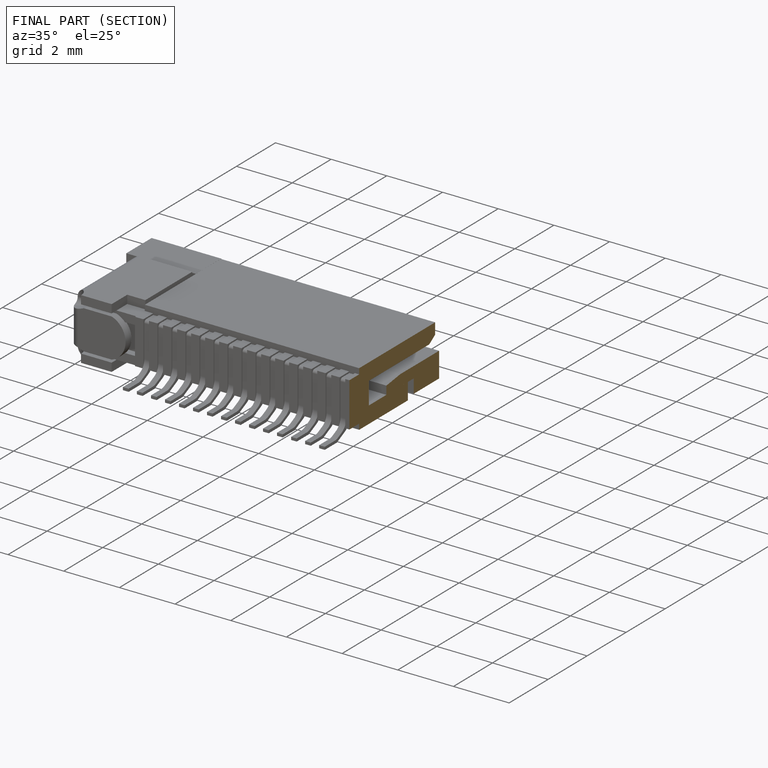
[diagram: finished part — half-section view (interior)]
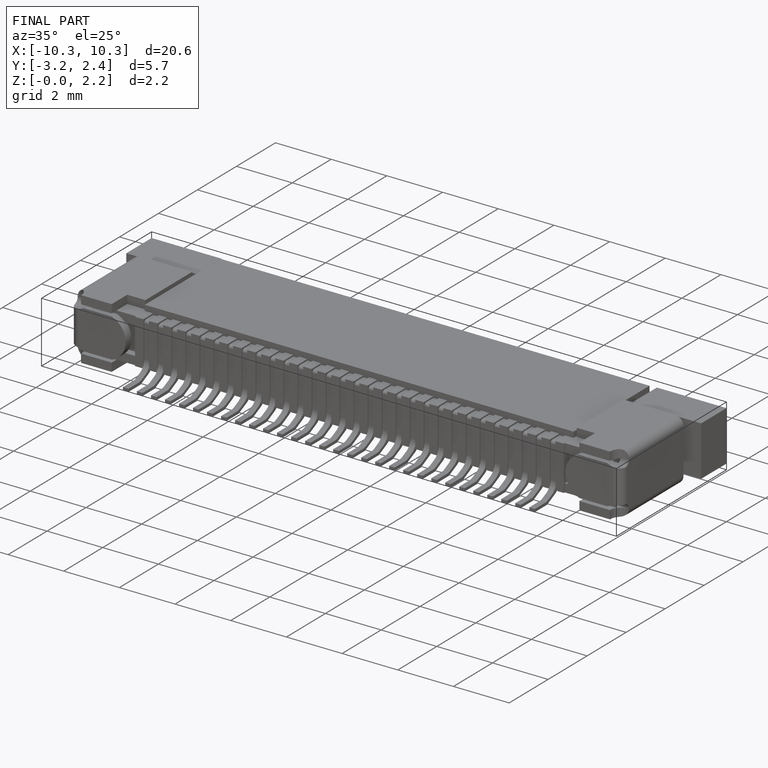
[diagram: finished part — iso view with bounding-box wireframe]
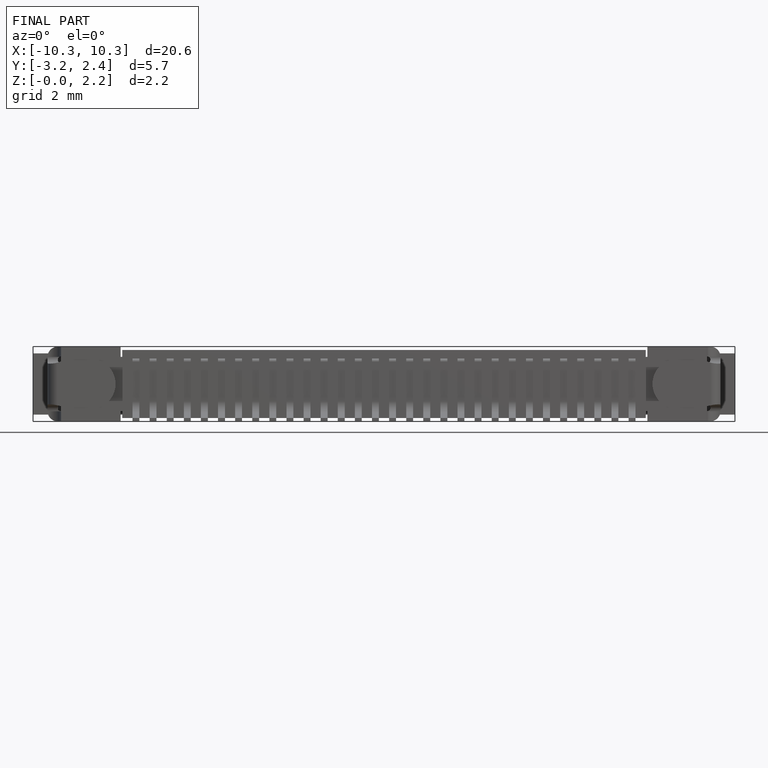
[diagram: finished part — front view with bounding-box wireframe]
